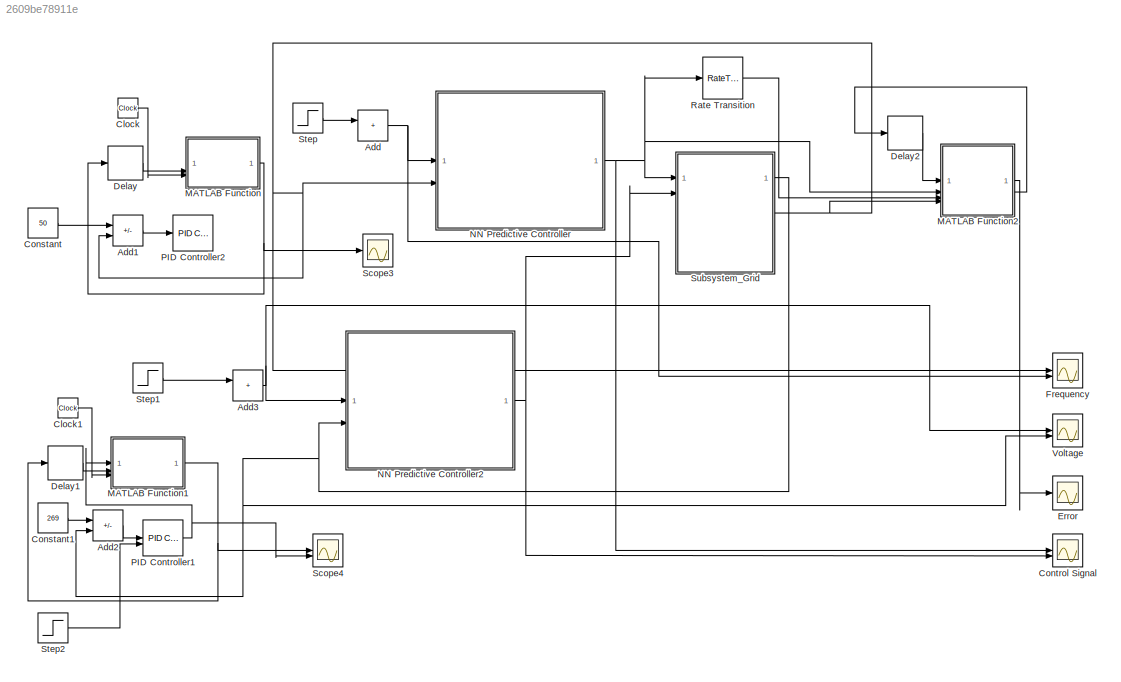
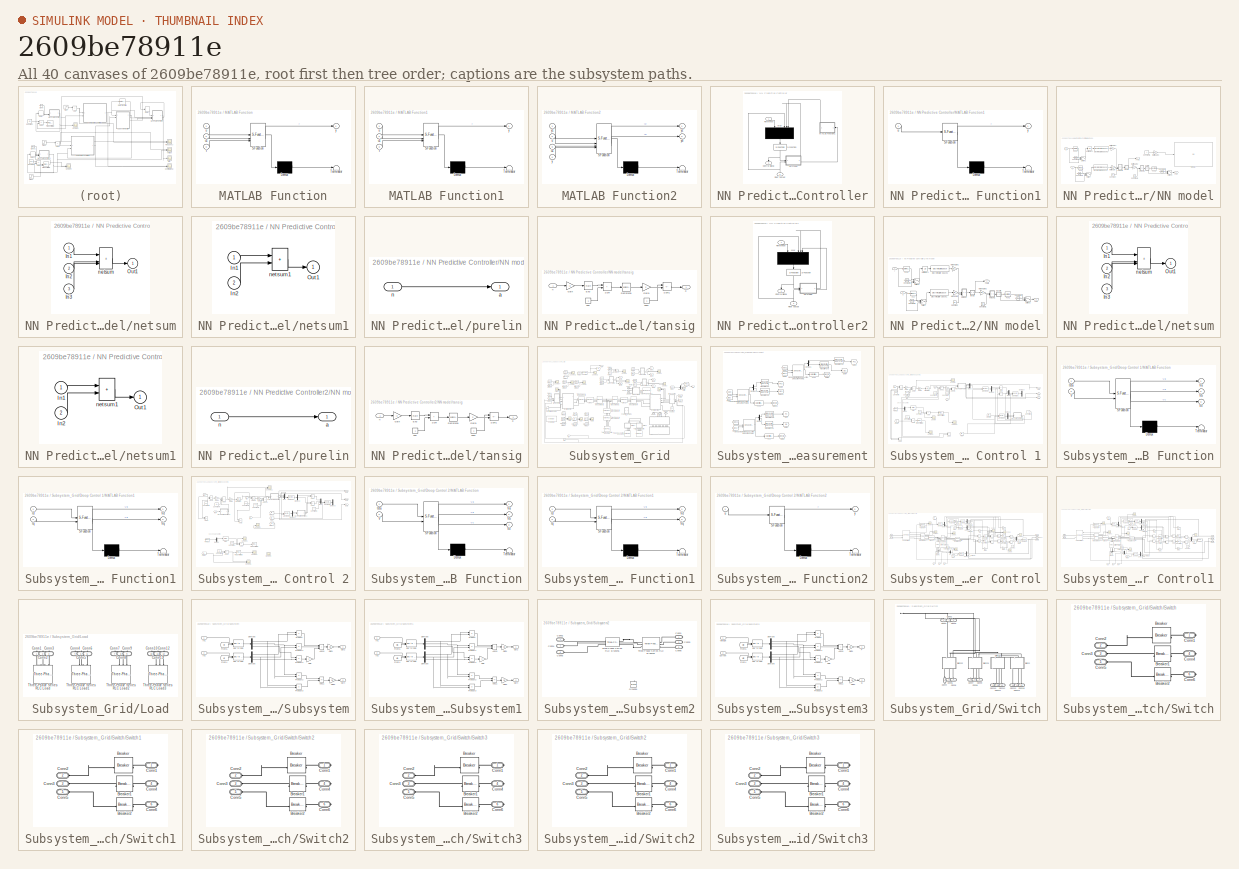
[diagram: thumbnail index - all 40 canvases of the model, root first then tree order]
MODEL slx_2609be78911e
KIND model
CONFIG AbsTol = auto
CONFIG EnableMultiTasking = on
CONFIG FixedStep = auto
CONFIG MaxStep = auto
CONFIG MinStep = auto
CONFIG RelTol = 1e-3
CONFIG SampleTimeConstraint = Unconstrained
CONFIG SolverName = VariableStepAuto
CONFIG StartTime = 0.0
CONFIG StopTime = 5
BLOCK [Sum] Add
  IconShape = rectangular
BLOCK [Sum] Add1
  IconShape = rectangular
  Inputs = +-
BLOCK [Sum] Add2
  IconShape = rectangular
  Inputs = +-
BLOCK [Sum] Add3
  IconShape = rectangular
BLOCK [Clock] Clock
BLOCK [Clock] Clock1
BLOCK [Constant] Constant
  Value = 50
BLOCK [Constant] Constant1
  SampleTime = 0.0001
  Value = 269
BLOCK [Scope] Control Signal
  Floating = off
  NumInputPorts = 2
  ScopeSpecificationString = Simulink.scopes.TimeScopeBlockCfg('CurrentConfiguration', extmgr.ConfigurationSet(extmgr.Configuration('Core','General UI',true),extmgr.Configuration('Core','Source UI',true),extmgr.Configuration('Sources','WiredSimulink',true,'DataLoggingVariableName','ScopeData1'),extmgr.Configuration('Visuals','Time Domain',true,'SerializedDisplays',{struct('MinYLimReal','-1.25','MaxYLimReal','1.25','YLabelReal...<+2126ch>
BLOCK [Delay] Delay
  DelayLength = 1
  InitialCondition = 0
  InputPortMap = u0
  SampleTime = 0.0001
BLOCK [Delay] Delay1
  DelayLength = 1
  InitialCondition = 0
  InputPortMap = u0
  SampleTime = 0.0001
BLOCK [Delay] Delay2
  DelayLength = 1
  InputPortMap = u0
BLOCK [Scope] Error
  Floating = off
  NumInputPorts = 1
  ScopeSpecificationString = Simulink.scopes.TimeScopeBlockCfg('CurrentConfiguration', extmgr.ConfigurationSet(extmgr.Configuration('Core','General UI',true),extmgr.Configuration('Core','Source UI',true),extmgr.Configuration('Sources','WiredSimulink',true,'DataLoggingVariableName','ScopeData1'),extmgr.Configuration('Visuals','Time Domain',true,'SerializedDisplays',{struct('MinYLimReal','-0.06202','MaxYLimReal','0.55817','YLab...<+1453ch>
BLOCK [Scope] Frequency 
  Floating = off
  NumInputPorts = 2
  ScopeSpecificationString = Simulink.scopes.TimeScopeBlockCfg('CurrentConfiguration', extmgr.ConfigurationSet(extmgr.Configuration('Core','General UI',true),extmgr.Configuration('Core','Source UI',true),extmgr.Configuration('Sources','WiredSimulink',true,'DataLoggingVariableName','ScopeData1'),extmgr.Configuration('Visuals','Time Domain',true,'SerializedDisplays',{struct('MinYLimReal','48.33752','MaxYLimReal','50.94901','YLa...<+2148ch>
BLOCK [SubSystem] MATLAB Function
  ErrorFcn = Stateflow.Translate.translate
  PermitHierarchicalResolution = ExplicitOnly
  SFBlockType = MATLAB Function
  TreatAsAtomicUnit = on
BLOCK [Demux] MATLAB Function/ Demux 
  Outputs = 1
BLOCK [S-Function] MATLAB Function/ SFunction 
  EnableBusSupport = on
  FunctionName = sf_sfun
  PortCounts = [3 2]
  SFcnIsStateOwnerBlock = off
  SFunctionDeploymentMode = off
  Tag = Stateflow S-Function 5
BLOCK [Terminator] MATLAB Function/ Terminator 
BLOCK [Inport] MATLAB Function/t
  Port = 3
BLOCK [Inport] MATLAB Function/u
BLOCK [Inport] MATLAB Function/u1
  Port = 2
BLOCK [Outport] MATLAB Function/y
BLOCK [SubSystem] MATLAB Function1
  ErrorFcn = Stateflow.Translate.translate
  PermitHierarchicalResolution = ExplicitOnly
  SFBlockType = MATLAB Function
  TreatAsAtomicUnit = on
BLOCK [Demux] MATLAB Function1/ Demux 
  Outputs = 1
BLOCK [S-Function] MATLAB Function1/ SFunction 
  EnableBusSupport = on
  FunctionName = sf_sfun
  PortCounts = [3 2]
  SFcnIsStateOwnerBlock = off
  SFunctionDeploymentMode = off
  Tag = Stateflow S-Function 8
BLOCK [Terminator] MATLAB Function1/ Terminator 
BLOCK [Inport] MATLAB Function1/t
  Port = 3
BLOCK [Inport] MATLAB Function1/u
BLOCK [Inport] MATLAB Function1/u1
  Port = 2
BLOCK [Outport] MATLAB Function1/y
BLOCK [SubSystem] MATLAB Function2
  ErrorFcn = Stateflow.Translate.translate
  PermitHierarchicalResolution = ExplicitOnly
  SFBlockType = MATLAB Function
  TreatAsAtomicUnit = on
BLOCK [Demux] MATLAB Function2/ Demux 
  Outputs = 1
BLOCK [S-Function] MATLAB Function2/ SFunction 
  EnableBusSupport = on
  FunctionName = sf_sfun
  PortCounts = [4 3]
  SFcnIsStateOwnerBlock = off
  SFunctionDeploymentMode = off
  Tag = Stateflow S-Function 9
BLOCK [Terminator] MATLAB Function2/ Terminator 
BLOCK [Inport] MATLAB Function2/u
  Port = 2
BLOCK [Inport] MATLAB Function2/u1
  Port = 3
BLOCK [Inport] MATLAB Function2/y
  Port = 4
BLOCK [Inport] MATLAB Function2/y1
BLOCK [Outport] MATLAB Function2/y2
BLOCK [Outport] MATLAB Function2/yd
  Port = 2
BLOCK [SubSystem] NN Predictive Controller
  AncestorBlock = neural/Control Systems/NN Predictive Controller
  LibrarySourceBlock = neural/Control Systems/NN Predictive Controller
  NameLocation = top
  OpenFcn = nncontrolutil('nnpredict','',gcbh,gcb);
BLOCK [Outport] NN Predictive Controller/Control Signal
  NameLocation = left
BLOCK [SubSystem] NN Predictive Controller/MATLAB Function1
  ErrorFcn = Stateflow.Translate.translate
  PermitHierarchicalResolution = ExplicitOnly
  SFBlockType = MATLAB Function
  TreatAsAtomicUnit = on
BLOCK [Demux] NN Predictive Controller/MATLAB Function1/ Demux 
  Outputs = 1
BLOCK [S-Function] NN Predictive Controller/MATLAB Function1/ SFunction 
  EnableBusSupport = on
  FunctionName = sf_sfun
  PortCounts = [1 2]
  SFcnIsStateOwnerBlock = off
  SFunctionDeploymentMode = off
  Tag = Stateflow S-Function 7
BLOCK [Terminator] NN Predictive Controller/MATLAB Function1/ Terminator 
BLOCK [Inport] NN Predictive Controller/MATLAB Function1/u
BLOCK [Outport] NN Predictive Controller/MATLAB Function1/y
BLOCK [Mux] NN Predictive Controller/Mux
  DisplayOption = signals
  NameLocation = left
BLOCK [SubSystem] NN Predictive Controller/NN model
BLOCK [Constant] NN Predictive Controller/NN model/Constant
  Value = B1
BLOCK [Constant] NN Predictive Controller/NN model/Constant1
  Value = B2
BLOCK [Constant] NN Predictive Controller/NN model/Constant2
  Value = Normalize
BLOCK [Constant] NN Predictive Controller/NN model/Constant3
  Value = Normalize
BLOCK [Constant] NN Predictive Controller/NN model/Constant4
  Value = Normalize
BLOCK [Constant] NN Predictive Controller/NN model/Constant5
BLOCK [DiscreteStateSpace] NN Predictive Controller/NN model/Discrete State-Space1
  A = [0 zeros(1,Ni-2);eye(Ni-2,Ni-1)]
  B = [zeros(double(Ni==1));eye(Ni-1,1)]
  C = [0 zeros(1,Ni-2);eye(Ni-1,Ni-1)]
  D = eye(Ni,1)
  SampleTime = Ts
BLOCK [DiscreteStateSpace] NN Predictive Controller/NN model/Discrete State-Space2
  A = [0 zeros(1,Nj-2);eye(Nj-2,Nj-1)]
  B = [zeros(double(Nj==1));eye(Nj-1,1)]
  C = [0 zeros(1,Nj-2);eye(Nj-1,Nj-1)]
  D = eye(Nj,1)
  SampleTime = Ts
BLOCK [Display] NN Predictive Controller/NN model/Display
  Decimation = 1
BLOCK [Fcn] NN Predictive Controller/NN model/Fcn
  Expr = (u(1)-minp)*2/(maxp-minp) - 1
BLOCK [Fcn] NN Predictive Controller/NN model/Fcn1
  Expr = (u(1)-mint)*2/(maxt-mint) - 1
BLOCK [Fcn] NN Predictive Controller/NN model/Fcn2
  Expr = (maxt-mint)*(u(1)+1)/2 + mint
BLOCK [Gain] NN Predictive Controller/NN model/Matrix Gain
  Gain = IW
  Multiplication = Matrix(K*u)
  OutDataTypeStr = Inherit: Same as input
  ParamDataTypeStr = Inherit: Same as input
  SaturateOnIntegerOverflow = on
BLOCK [Gain] NN Predictive Controller/NN model/Matrix Gain1
  Gain = LW1_2
  Multiplication = Matrix(K*u)
  OutDataTypeStr = Inherit: Same as input
  ParamDataTypeStr = Inherit: Same as input
  SaturateOnIntegerOverflow = on
BLOCK [Gain] NN Predictive Controller/NN model/Matrix Gain2
  Gain = LW2_1
  Multiplication = Matrix(K*u)
  OutDataTypeStr = Inherit: Same as input
  ParamDataTypeStr = Inherit: Same as input
  SaturateOnIntegerOverflow = on
BLOCK [Gain] NN Predictive Controller/NN model/Matrix Gain3
  Gain = LW2_1
  OutDataTypeStr = Inherit: Same as input
  ParamDataTypeStr = Inherit: Same as input
  SaturateOnIntegerOverflow = on
BLOCK [Switch] NN Predictive Controller/NN model/Switch
  Threshold = 0.5
BLOCK [Switch] NN Predictive Controller/NN model/Switch1
  Threshold = 0.5
BLOCK [Switch] NN Predictive Controller/NN model/Switch2
  Threshold = 0.5
BLOCK [UnitDelay] NN Predictive Controller/NN model/Unit Delay1
  HasFrameUpgradeWarning = on
  SampleTime = Ts
BLOCK [SubSystem] NN Predictive Controller/NN model/netsum
BLOCK [Inport] NN Predictive Controller/NN model/netsum/In1
BLOCK [Inport] NN Predictive Controller/NN model/netsum/In2
  Port = 2
BLOCK [Inport] NN Predictive Controller/NN model/netsum/In3
  Port = 3
BLOCK [Outport] NN Predictive Controller/NN model/netsum/Out1
BLOCK [Sum] NN Predictive Controller/NN model/netsum/netsum
  IconShape = rectangular
  InputSameDT = on
  Inputs = 3
  OutDataTypeStr = Inherit: Same as first input
  SaturateOnIntegerOverflow = on
BLOCK [SubSystem] NN Predictive Controller/NN model/netsum1
BLOCK [Inport] NN Predictive Controller/NN model/netsum1/In1
BLOCK [Inport] NN Predictive Controller/NN model/netsum1/In2
  Port = 2
BLOCK [Outport] NN Predictive Controller/NN model/netsum1/Out1
BLOCK [Sum] NN Predictive Controller/NN model/netsum1/netsum1
  IconShape = rectangular
  InputSameDT = on
  Inputs = 2
  OutDataTypeStr = Inherit: Same as first input
  SaturateOnIntegerOverflow = on
BLOCK [SubSystem] NN Predictive Controller/NN model/purelin
BLOCK [Outport] NN Predictive Controller/NN model/purelin/a
BLOCK [Inport] NN Predictive Controller/NN model/purelin/n
BLOCK [SubSystem] NN Predictive Controller/NN model/tansig
BLOCK [Math] NN Predictive Controller/NN model/tansig/Exp
  SignedPower = on
BLOCK [Gain] NN Predictive Controller/NN model/tansig/Gain
  Gain = -2
  OutDataTypeStr = Inherit: Same as input
  ParamDataTypeStr = Inherit: Same as input
  SaturateOnIntegerOverflow = on
BLOCK [Gain] NN Predictive Controller/NN model/tansig/Gain1
  Gain = 2
  OutDataTypeStr = Inherit: Same as input
  ParamDataTypeStr = Inherit: Same as input
  SaturateOnIntegerOverflow = on
BLOCK [Math] NN Predictive Controller/NN model/tansig/Reciprocal
  Operator = reciprocal
  SignedPower = on
BLOCK [Sum] NN Predictive Controller/NN model/tansig/Sum
  IconShape = rectangular
  InputSameDT = on
  OutDataTypeStr = Inherit: Same as first input
  SaturateOnIntegerOverflow = on
BLOCK [Sum] NN Predictive Controller/NN model/tansig/Sum1
  IconShape = rectangular
  InputSameDT = on
  Inputs = +-
  OutDataTypeStr = Inherit: Same as first input
  SaturateOnIntegerOverflow = on
BLOCK [Outport] NN Predictive Controller/NN model/tansig/a
BLOCK [Inport] NN Predictive Controller/NN model/tansig/n
BLOCK [Constant] NN Predictive Controller/NN model/tansig/one
BLOCK [Constant] NN Predictive Controller/NN model/tansig/one1
BLOCK [Inport] NN Predictive Controller/NN model/u
BLOCK [Inport] NN Predictive Controller/NN model/y
  Port = 2
BLOCK [Outport] NN Predictive Controller/NN model/yhat
BLOCK [Outport] NN Predictive Controller/NN model/yhat1
  Port = 2
BLOCK [Inport] NN Predictive Controller/Plant output
  NameLocation = right
  Port = 2
BLOCK [Inport] NN Predictive Controller/Reference
  NameLocation = left
BLOCK [S-Function] NN Predictive Controller/S-Function
  EnableBusSupport = off
  FunctionName = predopt
  NameLocation = left
  Parameters = N2,Ts,Nu,maxiter,csrchfun,rho,alpha,S1,IW,LW1_2,LW2_1,B1,B2,Ni,Nj,min_i,max_i,minp,maxp,mint,maxt,Normalize
  SFcnIsStateOwnerBlock = off
  SFunctionDeploymentMode = off
BLOCK [SubSystem] NN Predictive Controller2
  AncestorBlock = neural/Control Systems/NN Predictive Controller
  LibrarySourceBlock = neural/Control Systems/NN Predictive Controller
  NameLocation = top
  OpenFcn = nncontrolutil('nnpredict','',gcbh,gcb);
BLOCK [Outport] NN Predictive Controller2/Control Signal
  NameLocation = left
BLOCK [Mux] NN Predictive Controller2/Mux
  DisplayOption = signals
  NameLocation = left
BLOCK [SubSystem] NN Predictive Controller2/NN model
BLOCK [Constant] NN Predictive Controller2/NN model/Constant
  Value = B1
BLOCK [Constant] NN Predictive Controller2/NN model/Constant1
  Value = B2
BLOCK [Constant] NN Predictive Controller2/NN model/Constant2
  Value = Normalize
BLOCK [Constant] NN Predictive Controller2/NN model/Constant3
  Value = Normalize
BLOCK [Constant] NN Predictive Controller2/NN model/Constant4
  Value = Normalize
BLOCK [DiscreteStateSpace] NN Predictive Controller2/NN model/Discrete State-Space1
  A = [0 zeros(1,Ni-2);eye(Ni-2,Ni-1)]
  B = [zeros(double(Ni==1));eye(Ni-1,1)]
  C = [0 zeros(1,Ni-2);eye(Ni-1,Ni-1)]
  D = eye(Ni,1)
  SampleTime = Ts
BLOCK [DiscreteStateSpace] NN Predictive Controller2/NN model/Discrete State-Space2
  A = [0 zeros(1,Nj-2);eye(Nj-2,Nj-1)]
  B = [zeros(double(Nj==1));eye(Nj-1,1)]
  C = [0 zeros(1,Nj-2);eye(Nj-1,Nj-1)]
  D = eye(Nj,1)
  SampleTime = Ts
BLOCK [Fcn] NN Predictive Controller2/NN model/Fcn
  Expr = (u(1)-minp)*2/(maxp-minp) - 1
BLOCK [Fcn] NN Predictive Controller2/NN model/Fcn1
  Expr = (u(1)-mint)*2/(maxt-mint) - 1
BLOCK [Fcn] NN Predictive Controller2/NN model/Fcn2
  Expr = (maxt-mint)*(u(1)+1)/2 + mint
BLOCK [Gain] NN Predictive Controller2/NN model/Matrix Gain
  Gain = IW
  Multiplication = Matrix(K*u)
  OutDataTypeStr = Inherit: Same as input
  ParamDataTypeStr = Inherit: Same as input
  SaturateOnIntegerOverflow = on
BLOCK [Gain] NN Predictive Controller2/NN model/Matrix Gain1
  Gain = LW1_2
  Multiplication = Matrix(K*u)
  OutDataTypeStr = Inherit: Same as input
  ParamDataTypeStr = Inherit: Same as input
  SaturateOnIntegerOverflow = on
BLOCK [Gain] NN Predictive Controller2/NN model/Matrix Gain2
  Gain = LW2_1
  Multiplication = Matrix(K*u)
  OutDataTypeStr = Inherit: Same as input
  ParamDataTypeStr = Inherit: Same as input
  SaturateOnIntegerOverflow = on
BLOCK [Switch] NN Predictive Controller2/NN model/Switch
  Threshold = 0.5
BLOCK [Switch] NN Predictive Controller2/NN model/Switch1
  Threshold = 0.5
BLOCK [Switch] NN Predictive Controller2/NN model/Switch2
  Threshold = 0.5
BLOCK [UnitDelay] NN Predictive Controller2/NN model/Unit Delay1
  HasFrameUpgradeWarning = on
  SampleTime = Ts
BLOCK [SubSystem] NN Predictive Controller2/NN model/netsum
BLOCK [Inport] NN Predictive Controller2/NN model/netsum/In1
BLOCK [Inport] NN Predictive Controller2/NN model/netsum/In2
  Port = 2
BLOCK [Inport] NN Predictive Controller2/NN model/netsum/In3
  Port = 3
BLOCK [Outport] NN Predictive Controller2/NN model/netsum/Out1
BLOCK [Sum] NN Predictive Controller2/NN model/netsum/netsum
  IconShape = rectangular
  InputSameDT = on
  Inputs = 3
  OutDataTypeStr = Inherit: Same as first input
  SaturateOnIntegerOverflow = on
BLOCK [SubSystem] NN Predictive Controller2/NN model/netsum1
BLOCK [Inport] NN Predictive Controller2/NN model/netsum1/In1
BLOCK [Inport] NN Predictive Controller2/NN model/netsum1/In2
  Port = 2
BLOCK [Outport] NN Predictive Controller2/NN model/netsum1/Out1
BLOCK [Sum] NN Predictive Controller2/NN model/netsum1/netsum1
  IconShape = rectangular
  InputSameDT = on
  Inputs = 2
  OutDataTypeStr = Inherit: Same as first input
  SaturateOnIntegerOverflow = on
BLOCK [SubSystem] NN Predictive Controller2/NN model/purelin
BLOCK [Outport] NN Predictive Controller2/NN model/purelin/a
BLOCK [Inport] NN Predictive Controller2/NN model/purelin/n
BLOCK [SubSystem] NN Predictive Controller2/NN model/tansig
BLOCK [Math] NN Predictive Controller2/NN model/tansig/Exp
  SignedPower = on
BLOCK [Gain] NN Predictive Controller2/NN model/tansig/Gain
  Gain = -2
  OutDataTypeStr = Inherit: Same as input
  ParamDataTypeStr = Inherit: Same as input
  SaturateOnIntegerOverflow = on
BLOCK [Gain] NN Predictive Controller2/NN model/tansig/Gain1
  Gain = 2
  OutDataTypeStr = Inherit: Same as input
  ParamDataTypeStr = Inherit: Same as input
  SaturateOnIntegerOverflow = on
BLOCK [Math] NN Predictive Controller2/NN model/tansig/Reciprocal
  Operator = reciprocal
  SignedPower = on
BLOCK [Sum] NN Predictive Controller2/NN model/tansig/Sum
  IconShape = rectangular
  InputSameDT = on
  OutDataTypeStr = Inherit: Same as first input
  SaturateOnIntegerOverflow = on
BLOCK [Sum] NN Predictive Controller2/NN model/tansig/Sum1
  IconShape = rectangular
  InputSameDT = on
  Inputs = +-
  OutDataTypeStr = Inherit: Same as first input
  SaturateOnIntegerOverflow = on
BLOCK [Outport] NN Predictive Controller2/NN model/tansig/a
BLOCK [Inport] NN Predictive Controller2/NN model/tansig/n
BLOCK [Constant] NN Predictive Controller2/NN model/tansig/one
BLOCK [Constant] NN Predictive Controller2/NN model/tansig/one1
BLOCK [Inport] NN Predictive Controller2/NN model/u
BLOCK [Inport] NN Predictive Controller2/NN model/y
  Port = 2
BLOCK [Outport] NN Predictive Controller2/NN model/yhat
BLOCK [Outport] NN Predictive Controller2/NN model/yhat1
  Port = 2
BLOCK [Inport] NN Predictive Controller2/Plant output
  NameLocation = right
  Port = 2
BLOCK [Inport] NN Predictive Controller2/Reference
  NameLocation = left
BLOCK [S-Function] NN Predictive Controller2/S-Function
  EnableBusSupport = off
  FunctionName = predopt1
  NameLocation = left
  Parameters = N2,Ts,Nu,maxiter,csrchfun,rho,alpha,S1,IW,LW1_2,LW2_1,B1,B2,Ni,Nj,min_i,max_i,minp,maxp,mint,maxt,Normalize
  SFcnIsStateOwnerBlock = off
  SFunctionDeploymentMode = off
BLOCK [Reference] PID Controller1  REF=slpidlib/PID Controller
  SourceBlock = slpidlib/PID Controller
  SourceType = PID 1dof
BLOCK [Reference] PID Controller2  REF=slpidlib/PID Controller
  SourceBlock = slpidlib/PID Controller
  SourceType = PID 1dof
BLOCK [RateTransition] Rate Transition
  InitialCondition = 1
BLOCK [Scope] Scope3
  Floating = off
  NumInputPorts = 2
  ScopeSpecificationString = Simulink.scopes.TimeScopeBlockCfg('CurrentConfiguration', extmgr.ConfigurationSet(extmgr.Configuration('Core','General UI',true),extmgr.Configuration('Core','Source UI',true),extmgr.Configuration('Sources','WiredSimulink',true,'DataLoggingVariableName','ScopeData1'),extmgr.Configuration('Visuals','Time Domain',true,'SerializedDisplays',{struct('MinYLimReal','-1.00000','MaxYLimReal','1.00000','YLab...<+2129ch>
BLOCK [Scope] Scope4
  Floating = off
  NumInputPorts = 2
  ScopeSpecificationString = Simulink.scopes.TimeScopeBlockCfg('CurrentConfiguration', extmgr.ConfigurationSet(extmgr.Configuration('Core','General UI',true),extmgr.Configuration('Core','Source UI',true),extmgr.Configuration('Sources','WiredSimulink',true,'DataLoggingVariableName','ScopeData1'),extmgr.Configuration('Visuals','Time Domain',true,'SerializedDisplays',{struct('MinYLimReal','-7.92514','MaxYLimReal','0.88057','YLab...<+2107ch>
BLOCK [Step] Step
  After = 50
  SampleTime = 0
  Time = 0
BLOCK [Step] Step1
  After = 269
  SampleTime = 0
  Time = 0
BLOCK [Step] Step2
  SampleTime = 0.0001
  Time = 2
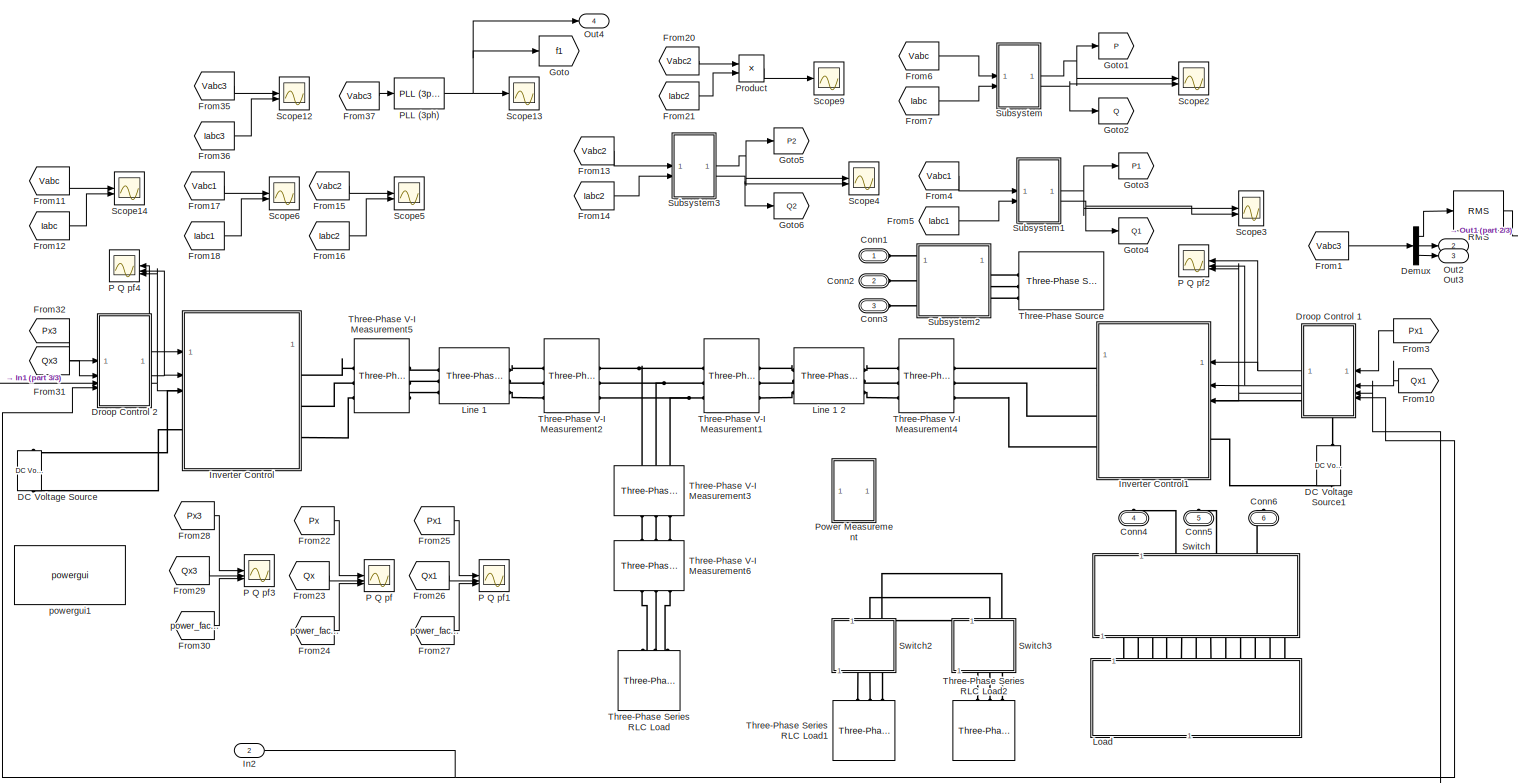
[diagram: Subsystem_Grid - part 1/3, most of the canvas]
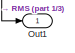
[diagram: Subsystem_Grid - part 2/3, top right region]
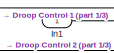
[diagram: Subsystem_Grid - part 3/3, bottom left region]
BLOCK [SubSystem] Subsystem_Grid
BLOCK [SubSystem] Subsystem_Grid/ Power Measurement
BLOCK [Reference] Subsystem_Grid/ Power Measurement/3-phase Instantaneous Active & Reactive Power  REF=powerlib_extras/Measurements/3-phase 
Instantaneous 
Active & Reactive Power
  SourceBlock = powerlib_extras/Measurements/3-phase \nInstantaneous \nActive & Reactive Power
  SourceType = 3-phase instantaneous active and reactive power
BLOCK [Reference] Subsystem_Grid/ Power Measurement/3-phase Instantaneous Active & Reactive Power1  REF=powerlib_extras/Measurements/3-phase 
Instantaneous 
Active & Reactive Power
  SourceBlock = powerlib_extras/Measurements/3-phase \nInstantaneous \nActive & Reactive Power
  SourceType = 3-phase instantaneous active and reactive power
BLOCK [Reference] Subsystem_Grid/ Power Measurement/3-phase Instantaneous Active & Reactive Power3  REF=powerlib_extras/Measurements/3-phase 
Instantaneous 
Active & Reactive Power
  SourceBlock = powerlib_extras/Measurements/3-phase \nInstantaneous \nActive & Reactive Power
  SourceType = 3-phase instantaneous active and reactive power
BLOCK [Demux] Subsystem_Grid/ Power Measurement/Demux
  Outputs = 2
BLOCK [Demux] Subsystem_Grid/ Power Measurement/Demux1
  Outputs = 2
BLOCK [Demux] Subsystem_Grid/ Power Measurement/Demux3
  Outputs = 2
BLOCK [Fcn] Subsystem_Grid/ Power Measurement/Fcn
  Expr = u(1)/sqrt((u(1))^2+(u(2))^2)
BLOCK [Fcn] Subsystem_Grid/ Power Measurement/Fcn1
  Expr = u(1)/sqrt((u(1))^2+(u(2))^2)
BLOCK [Fcn] Subsystem_Grid/ Power Measurement/Fcn3
  Expr = u(1)/sqrt((u(1))^2+(u(2))^2)
BLOCK [From] Subsystem_Grid/ Power Measurement/From
  GotoTag = Vabc2
  TagVisibility = global
BLOCK [From] Subsystem_Grid/ Power Measurement/From1
  GotoTag = Iabc2
  TagVisibility = global
BLOCK [From] Subsystem_Grid/ Power Measurement/From2
  GotoTag = Vabc1
  TagVisibility = global
BLOCK [From] Subsystem_Grid/ Power Measurement/From3
  GotoTag = Iabc1
  TagVisibility = global
BLOCK [From] Subsystem_Grid/ Power Measurement/From6
  GotoTag = Vabc
  TagVisibility = global
BLOCK [From] Subsystem_Grid/ Power Measurement/From7
  GotoTag = Iabc
  TagVisibility = global
BLOCK [Goto] Subsystem_Grid/ Power Measurement/Goto
  GotoTag = Px
  TagVisibility = global
BLOCK [Goto] Subsystem_Grid/ Power Measurement/Goto1
  GotoTag = Qx
  TagVisibility = global
BLOCK [Goto] Subsystem_Grid/ Power Measurement/Goto10
  GotoTag = Qx3
  TagVisibility = global
BLOCK [Goto] Subsystem_Grid/ Power Measurement/Goto11
  GotoTag = power_factorx3
  TagVisibility = global
BLOCK [Goto] Subsystem_Grid/ Power Measurement/Goto2
  GotoTag = power_factorx
  TagVisibility = global
BLOCK [Goto] Subsystem_Grid/ Power Measurement/Goto3
  GotoTag = Px1
  TagVisibility = global
BLOCK [Goto] Subsystem_Grid/ Power Measurement/Goto4
  GotoTag = Qx1
  TagVisibility = global
BLOCK [Goto] Subsystem_Grid/ Power Measurement/Goto5
  GotoTag = power_factorx1
  TagVisibility = global
BLOCK [Goto] Subsystem_Grid/ Power Measurement/Goto9
  GotoTag = Px3
  TagVisibility = global
BLOCK [TransferFcn] Subsystem_Grid/ Power Measurement/Transfer Fcn1
  Denominator = [1 55*2*pi]
  Numerator = [55*2*pi]
BLOCK [TransferFcn] Subsystem_Grid/ Power Measurement/Transfer Fcn2
  Denominator = [1 55*2*pi]
  Numerator = [55*2*pi]
BLOCK [TransferFcn] Subsystem_Grid/ Power Measurement/Transfer Fcn3
  Denominator = [1 55*2*pi]
  Numerator = [55*2*pi]
BLOCK [TransferFcn] Subsystem_Grid/ Power Measurement/Transfer Fcn4
  Denominator = [1 55*2*pi]
  Numerator = [55*2*pi]
BLOCK [TransferFcn] Subsystem_Grid/ Power Measurement/Transfer Fcn5
  Denominator = [1 55*2*pi]
  Numerator = [55*2*pi]
BLOCK [TransferFcn] Subsystem_Grid/ Power Measurement/Transfer Fcn6
  Denominator = [1 55*2*pi]
  Numerator = [55*2*pi]
BLOCK [PMIOPort] Subsystem_Grid/Conn1
  Side = Left
BLOCK [PMIOPort] Subsystem_Grid/Conn2
  Port = 2
  Side = Left
BLOCK [PMIOPort] Subsystem_Grid/Conn3
  Port = 3
  Side = Left
BLOCK [PMIOPort] Subsystem_Grid/Conn4
  NameLocation = right
  Port = 4
  Side = Right
BLOCK [PMIOPort] Subsystem_Grid/Conn5
  NameLocation = right
  Port = 5
  Side = Right
BLOCK [PMIOPort] Subsystem_Grid/Conn6
  NameLocation = right
  Port = 6
  Side = Right
BLOCK [Reference] Subsystem_Grid/DC Voltage Source  REF=spsDCVoltageSourceLib/DC Voltage Source
  LibrarySourceBlock = sps_lib/Sources/DC Voltage Source
  NameLocation = right
  SourceBlock = spsDCVoltageSourceLib/DC Voltage Source
  SourceType = DC Voltage Source
BLOCK [Reference] Subsystem_Grid/DC Voltage Source1  REF=spsDCVoltageSourceLib/DC Voltage Source
  LibrarySourceBlock = sps_lib/Sources/DC Voltage Source
  NameLocation = right
  SourceBlock = spsDCVoltageSourceLib/DC Voltage Source
  SourceType = DC Voltage Source
BLOCK [Demux] Subsystem_Grid/Demux
  Outputs = 3
BLOCK [SubSystem] Subsystem_Grid/Droop Control 1
BLOCK [Sum] Subsystem_Grid/Droop Control 1/Add
  IconShape = rectangular
  Inputs = +-
BLOCK [Sum] Subsystem_Grid/Droop Control 1/Add1
  IconShape = rectangular
  Inputs = +-
BLOCK [Sum] Subsystem_Grid/Droop Control 1/Add12
  IconShape = rectangular
  Inputs = +-
BLOCK [Sum] Subsystem_Grid/Droop Control 1/Add13
  IconShape = rectangular
  Inputs = +++
BLOCK [Sum] Subsystem_Grid/Droop Control 1/Add2
  IconShape = rectangular
  Inputs = +-
BLOCK [Sum] Subsystem_Grid/Droop Control 1/Add3
  IconShape = rectangular
  Inputs = +-
BLOCK [Sum] Subsystem_Grid/Droop Control 1/Add4
  IconShape = rectangular
  Inputs = +-
BLOCK [Sum] Subsystem_Grid/Droop Control 1/Add5
  IconShape = rectangular
  Inputs = +-
BLOCK [Sum] Subsystem_Grid/Droop Control 1/Add8
  IconShape = rectangular
  Inputs = +-
BLOCK [Sum] Subsystem_Grid/Droop Control 1/Add9
  IconShape = rectangular
  Inputs = +++
BLOCK [Constant] Subsystem_Grid/Droop Control 1/Constant
  Value = 269
BLOCK [Constant] Subsystem_Grid/Droop Control 1/Constant1
  Value = 0
BLOCK [Constant] Subsystem_Grid/Droop Control 1/Constant2
  Value = 1400
BLOCK [Constant] Subsystem_Grid/Droop Control 1/Constant3
  Value = 402
BLOCK [Constant] Subsystem_Grid/Droop Control 1/Constant4
  Value = 50
BLOCK [Constant] Subsystem_Grid/Droop Control 1/Constant6
  Value = 5500
BLOCK [Constant] Subsystem_Grid/Droop Control 1/Constant7
  Value = 50
BLOCK [Demux] Subsystem_Grid/Droop Control 1/Demux
  Outputs = 3
BLOCK [Demux] Subsystem_Grid/Droop Control 1/Demux1
  Outputs = 3
BLOCK [Demux] Subsystem_Grid/Droop Control 1/Demux2
  Outputs = 3
BLOCK [Demux] Subsystem_Grid/Droop Control 1/Demux3
  Outputs = 3
BLOCK [From] Subsystem_Grid/Droop Control 1/From
  GotoTag = wt
BLOCK [From] Subsystem_Grid/Droop Control 1/From1
  GotoTag = f1
  TagVisibility = global
BLOCK [From] Subsystem_Grid/Droop Control 1/From15
  GotoTag = Vabc3
  TagVisibility = global
BLOCK [From] Subsystem_Grid/Droop Control 1/From18
  GotoTag = It2
  TagVisibility = global
BLOCK [Gain] Subsystem_Grid/Droop Control 1/Gain4
  Gain = -4*10^(-4)
BLOCK [Gain] Subsystem_Grid/Droop Control 1/Gain5
  Gain = 2*pi
BLOCK [Gain] Subsystem_Grid/Droop Control 1/Gain6
  Gain = -8*10^(-3)
BLOCK [Inport] Subsystem_Grid/Droop Control 1/In1
BLOCK [Inport] Subsystem_Grid/Droop Control 1/In2
  Port = 2
BLOCK [Inport] Subsystem_Grid/Droop Control 1/In3
  Port = 3
BLOCK [Inport] Subsystem_Grid/Droop Control 1/In4
  Port = 4
BLOCK [Integrator] Subsystem_Grid/Droop Control 1/Integrator
BLOCK [SubSystem] Subsystem_Grid/Droop Control 1/MATLAB Function
  ErrorFcn = Stateflow.Translate.translate
  PermitHierarchicalResolution = ExplicitOnly
  SFBlockType = MATLAB Function
  TreatAsAtomicUnit = on
BLOCK [Demux] Subsystem_Grid/Droop Control 1/MATLAB Function/ Demux 
  Outputs = 1
BLOCK [S-Function] Subsystem_Grid/Droop Control 1/MATLAB Function/ SFunction 
  EnableBusSupport = on
  FunctionName = sf_sfun
  PortCounts = [2 4]
  SFcnIsStateOwnerBlock = off
  SFunctionDeploymentMode = off
  Tag = Stateflow S-Function 1
BLOCK [Terminator] Subsystem_Grid/Droop Control 1/MATLAB Function/ Terminator 
BLOCK [Inport] Subsystem_Grid/Droop Control 1/MATLAB Function/V
  Port = 2
BLOCK [Outport] Subsystem_Grid/Droop Control 1/MATLAB Function/Va
BLOCK [Outport] Subsystem_Grid/Droop Control 1/MATLAB Function/Vb
  Port = 2
BLOCK [Outport] Subsystem_Grid/Droop Control 1/MATLAB Function/Vc
  Port = 3
BLOCK [Inport] Subsystem_Grid/Droop Control 1/MATLAB Function/teta
BLOCK [SubSystem] Subsystem_Grid/Droop Control 1/MATLAB Function1
  ErrorFcn = Stateflow.Translate.translate
  PermitHierarchicalResolution = ExplicitOnly
  SFBlockType = MATLAB Function
  TreatAsAtomicUnit = on
BLOCK [Demux] Subsystem_Grid/Droop Control 1/MATLAB Function1/ Demux 
  Outputs = 1
BLOCK [S-Function] Subsystem_Grid/Droop Control 1/MATLAB Function1/ SFunction 
  EnableBusSupport = on
  FunctionName = sf_sfun
  PortCounts = [2 3]
  SFcnIsStateOwnerBlock = off
  SFunctionDeploymentMode = off
  Tag = Stateflow S-Function 2
BLOCK [Terminator] Subsystem_Grid/Droop Control 1/MATLAB Function1/ Terminator 
BLOCK [Inport] Subsystem_Grid/Droop Control 1/MATLAB Function1/Id
BLOCK [Inport] Subsystem_Grid/Droop Control 1/MATLAB Function1/Iq
  Port = 2
BLOCK [Outport] Subsystem_Grid/Droop Control 1/MATLAB Function1/Vd
BLOCK [Outport] Subsystem_Grid/Droop Control 1/MATLAB Function1/Vq
  Port = 2
BLOCK [Mux] Subsystem_Grid/Droop Control 1/Mux1
  DisplayOption = bar
  Inputs = 3
BLOCK [Mux] Subsystem_Grid/Droop Control 1/Mux2
  DisplayOption = bar
  Inputs = 3
BLOCK [Outport] Subsystem_Grid/Droop Control 1/Out4
BLOCK [Outport] Subsystem_Grid/Droop Control 1/Out5
  Port = 2
BLOCK [Outport] Subsystem_Grid/Droop Control 1/Out6
  Port = 3
BLOCK [Reference] Subsystem_Grid/Droop Control 1/PID Controller2  REF=slpidlib/PID Controller
  SourceBlock = slpidlib/PID Controller
  SourceType = PID 1dof
BLOCK [Reference] Subsystem_Grid/Droop Control 1/PID Controller3  REF=slpidlib/PID Controller
  SourceBlock = slpidlib/PID Controller
  SourceType = PID 1dof
BLOCK [Reference] Subsystem_Grid/Droop Control 1/RMS  REF=spsRMSLib/RMS
  LibrarySourceBlock = sps_lib/Sensors and Measurements/RMS
  SourceBlock = spsRMSLib/RMS
  SourceType = RMS
BLOCK [Scope] Subsystem_Grid/Droop Control 1/Scope
  Floating = off
  NumInputPorts = 1
  ScopeSpecificationString = Simulink.scopes.TimeScopeBlockCfg('CurrentConfiguration', extmgr.ConfigurationSet(extmgr.Configuration('Core','General UI',true),extmgr.Configuration('Core','Source UI',true),extmgr.Configuration('Sources','WiredSimulink',true,'DataLoggingVariableName','ScopeData2','DataLoggingLimitDataPoints',true,'DataLoggingSaveFormat','Array','DataLoggingDecimation','1','DataLoggingDecimateData',true),extmgr.C...<+1557ch>
BLOCK [Scope] Subsystem_Grid/Droop Control 1/Scope3
  Floating = off
  NumInputPorts = 1
  ScopeSpecificationString = Simulink.scopes.TimeScopeBlockCfg('CurrentConfiguration', extmgr.ConfigurationSet(extmgr.Configuration('Core','General UI',true),extmgr.Configuration('Core','Source UI',true),extmgr.Configuration('Sources','WiredSimulink',true,'DataLoggingVariableName','ScopeData3'),extmgr.Configuration('Visuals','Time Domain',true,'SerializedDisplays',{struct('MinYLimReal','-86.02824','MaxYLimReal','70.57418','YL...<+1396ch>
BLOCK [Scope] Subsystem_Grid/Droop Control 1/Scope4
  Floating = off
  NumInputPorts = 1
  ScopeSpecificationString = Simulink.scopes.TimeScopeBlockCfg('CurrentConfiguration', extmgr.ConfigurationSet(extmgr.Configuration('Core','General UI',true),extmgr.Configuration('Core','Source UI',true),extmgr.Configuration('Sources','WiredSimulink',true,'DataLoggingVariableName','ScopeData3'),extmgr.Configuration('Visuals','Time Domain',true,'SerializedDisplays',{struct('MinYLimReal','49.41101','MaxYLimReal','51.74122','YLa...<+1455ch>
BLOCK [Scope] Subsystem_Grid/Droop Control 1/Scope5
  Floating = off
  NumInputPorts = 1
  ScopeSpecificationString = Simulink.scopes.TimeScopeBlockCfg('CurrentConfiguration', extmgr.ConfigurationSet(extmgr.Configuration('Core','General UI',true),extmgr.Configuration('Core','Source UI',true),extmgr.Configuration('Sources','WiredSimulink',true,'DataLoggingVariableName','ScopeData5'),extmgr.Configuration('Visuals','Time Domain',true,'SerializedDisplays',{struct('MinYLimReal','48.44666','MaxYLimReal','52.61704','YLa...<+1444ch>
BLOCK [Reference] Subsystem_Grid/Droop Control 1/abc to dq0  REF=spsabctodq0Lib/abc to dq0
  LibrarySourceBlock = sps_lib/Control/abc to dq0
  SourceBlock = spsabctodq0Lib/abc to dq0
  SourceType = abc to dq0 Transformation
BLOCK [Reference] Subsystem_Grid/Droop Control 1/abc to dq1  REF=spsabctodq0Lib/abc to dq0
  LibrarySourceBlock = sps_lib/Control/abc to dq0
  SourceBlock = spsabctodq0Lib/abc to dq0
  SourceType = abc to dq0 Transformation
BLOCK [Reference] Subsystem_Grid/Droop Control 1/dq0 to abc  REF=spsdq0toabcLib/dq0 to abc
  LibrarySourceBlock = sps_lib/Control/dq0 to abc
  SourceBlock = spsdq0toabcLib/dq0 to abc
  SourceType = dq0 to abc Transformation
BLOCK [SubSystem] Subsystem_Grid/Droop Control 2
BLOCK [Sum] Subsystem_Grid/Droop Control 2/Add
  IconShape = rectangular
  Inputs = +-
BLOCK [Sum] Subsystem_Grid/Droop Control 2/Add1
  IconShape = rectangular
  Inputs = +-
BLOCK [Sum] Subsystem_Grid/Droop Control 2/Add12
  IconShape = rectangular
  Inputs = +-
BLOCK [Sum] Subsystem_Grid/Droop Control 2/Add13
  IconShape = rectangular
  Inputs = +++
BLOCK [Sum] Subsystem_Grid/Droop Control 2/Add2
  IconShape = rectangular
  Inputs = +-
BLOCK [Sum] Subsystem_Grid/Droop Control 2/Add3
  IconShape = rectangular
  Inputs = +-
BLOCK [Sum] Subsystem_Grid/Droop Control 2/Add4
  IconShape = rectangular
  Inputs = +-
BLOCK [Sum] Subsystem_Grid/Droop Control 2/Add5
  IconShape = rectangular
  Inputs = +-
BLOCK [Sum] Subsystem_Grid/Droop Control 2/Add8
  IconShape = rectangular
  Inputs = +-
BLOCK [Sum] Subsystem_Grid/Droop Control 2/Add9
  IconShape = rectangular
  Inputs = +++
BLOCK [Constant] Subsystem_Grid/Droop Control 2/Constant
  Value = 269
BLOCK [Constant] Subsystem_Grid/Droop Control 2/Constant1
  Value = 0
BLOCK [Constant] Subsystem_Grid/Droop Control 2/Constant2
  Value = 1100
BLOCK [Constant] Subsystem_Grid/Droop Control 2/Constant3
  Value = 403
BLOCK [Constant] Subsystem_Grid/Droop Control 2/Constant4
  Value = 50
BLOCK [Constant] Subsystem_Grid/Droop Control 2/Constant6
  Value = 3000
BLOCK [Constant] Subsystem_Grid/Droop Control 2/Constant7
  Value = 50
BLOCK [Demux] Subsystem_Grid/Droop Control 2/Demux
  Outputs = 3
BLOCK [Demux] Subsystem_Grid/Droop Control 2/Demux1
  Outputs = 3
BLOCK [Demux] Subsystem_Grid/Droop Control 2/Demux2
  Outputs = 3
BLOCK [Demux] Subsystem_Grid/Droop Control 2/Demux3
  Outputs = 3
BLOCK [From] Subsystem_Grid/Droop Control 2/From
  GotoTag = wt
BLOCK [From] Subsystem_Grid/Droop Control 2/From1
  GotoTag = f1
  TagVisibility = global
BLOCK [From] Subsystem_Grid/Droop Control 2/From15
  GotoTag = Vabc3
  TagVisibility = global
BLOCK [From] Subsystem_Grid/Droop Control 2/From17
  GotoTag = Vt1
  TagVisibility = global
BLOCK [From] Subsystem_Grid/Droop Control 2/From18
  GotoTag = It1
  TagVisibility = global
BLOCK [Gain] Subsystem_Grid/Droop Control 2/Gain4
  Gain = -4*10^(-4)
BLOCK [Gain] Subsystem_Grid/Droop Control 2/Gain5
  Gain = 2*pi
BLOCK [Gain] Subsystem_Grid/Droop Control 2/Gain6
  Gain = -9*10^(-3)
BLOCK [Inport] Subsystem_Grid/Droop Control 2/In1
BLOCK [Inport] Subsystem_Grid/Droop Control 2/In2
  Port = 2
BLOCK [Inport] Subsystem_Grid/Droop Control 2/In3
  Port = 3
BLOCK [Inport] Subsystem_Grid/Droop Control 2/In4
  Port = 4
BLOCK [Integrator] Subsystem_Grid/Droop Control 2/Integrator
BLOCK [SubSystem] Subsystem_Grid/Droop Control 2/MATLAB Function
  ErrorFcn = Stateflow.Translate.translate
  PermitHierarchicalResolution = ExplicitOnly
  SFBlockType = MATLAB Function
  TreatAsAtomicUnit = on
BLOCK [Demux] Subsystem_Grid/Droop Control 2/MATLAB Function/ Demux 
  Outputs = 1
BLOCK [S-Function] Subsystem_Grid/Droop Control 2/MATLAB Function/ SFunction 
  EnableBusSupport = on
  FunctionName = sf_sfun
  PortCounts = [2 4]
  SFcnIsStateOwnerBlock = off
  SFunctionDeploymentMode = off
  Tag = Stateflow S-Function 3
BLOCK [Terminator] Subsystem_Grid/Droop Control 2/MATLAB Function/ Terminator 
BLOCK [Inport] Subsystem_Grid/Droop Control 2/MATLAB Function/V
  Port = 2
BLOCK [Outport] Subsystem_Grid/Droop Control 2/MATLAB Function/Va
BLOCK [Outport] Subsystem_Grid/Droop Control 2/MATLAB Function/Vb
  Port = 2
BLOCK [Outport] Subsystem_Grid/Droop Control 2/MATLAB Function/Vc
  Port = 3
BLOCK [Inport] Subsystem_Grid/Droop Control 2/MATLAB Function/teta
BLOCK [SubSystem] Subsystem_Grid/Droop Control 2/MATLAB Function1
  ErrorFcn = Stateflow.Translate.translate
  PermitHierarchicalResolution = ExplicitOnly
  SFBlockType = MATLAB Function
  TreatAsAtomicUnit = on
BLOCK [Demux] Subsystem_Grid/Droop Control 2/MATLAB Function1/ Demux 
  Outputs = 1
BLOCK [S-Function] Subsystem_Grid/Droop Control 2/MATLAB Function1/ SFunction 
  EnableBusSupport = on
  FunctionName = sf_sfun
  PortCounts = [2 3]
  SFcnIsStateOwnerBlock = off
  SFunctionDeploymentMode = off
  Tag = Stateflow S-Function 4
BLOCK [Terminator] Subsystem_Grid/Droop Control 2/MATLAB Function1/ Terminator 
BLOCK [Inport] Subsystem_Grid/Droop Control 2/MATLAB Function1/Id
BLOCK [Inport] Subsystem_Grid/Droop Control 2/MATLAB Function1/Iq
  Port = 2
BLOCK [Outport] Subsystem_Grid/Droop Control 2/MATLAB Function1/Vd
BLOCK [Outport] Subsystem_Grid/Droop Control 2/MATLAB Function1/Vq
  Port = 2
BLOCK [SubSystem] Subsystem_Grid/Droop Control 2/MATLAB Function2
  ErrorFcn = Stateflow.Translate.translate
  PermitHierarchicalResolution = ExplicitOnly
  SFBlockType = MATLAB Function
  TreatAsAtomicUnit = on
BLOCK [Demux] Subsystem_Grid/Droop Control 2/MATLAB Function2/ Demux 
  Outputs = 1
BLOCK [S-Function] Subsystem_Grid/Droop Control 2/MATLAB Function2/ SFunction 
  EnableBusSupport = on
  FunctionName = sf_sfun
  PortCounts = [1 2]
  SFcnIsStateOwnerBlock = off
  SFunctionDeploymentMode = off
  Tag = Stateflow S-Function 6
BLOCK [Terminator] Subsystem_Grid/Droop Control 2/MATLAB Function2/ Terminator 
BLOCK [Inport] Subsystem_Grid/Droop Control 2/MATLAB Function2/u
BLOCK [Outport] Subsystem_Grid/Droop Control 2/MATLAB Function2/y
BLOCK [Mux] Subsystem_Grid/Droop Control 2/Mux
  DisplayOption = bar
  Inputs = 3
BLOCK [Mux] Subsystem_Grid/Droop Control 2/Mux1
  DisplayOption = bar
  Inputs = 3
BLOCK [Outport] Subsystem_Grid/Droop Control 2/Out1
BLOCK [Outport] Subsystem_Grid/Droop Control 2/Out2
  Port = 2
BLOCK [Outport] Subsystem_Grid/Droop Control 2/Out3
  Port = 3
BLOCK [Reference] Subsystem_Grid/Droop Control 2/PID Controller2  REF=slpidlib/PID Controller
  SourceBlock = slpidlib/PID Controller
  SourceType = PID 1dof
BLOCK [Reference] Subsystem_Grid/Droop Control 2/PID Controller3  REF=slpidlib/PID Controller
  SourceBlock = slpidlib/PID Controller
  SourceType = PID 1dof
BLOCK [Reference] Subsystem_Grid/Droop Control 2/RMS  REF=spsRMSLib/RMS
  LibrarySourceBlock = sps_lib/Sensors and Measurements/RMS
  SourceBlock = spsRMSLib/RMS
  SourceType = RMS
BLOCK [Scope] Subsystem_Grid/Droop Control 2/Scope1
  Floating = off
  NumInputPorts = 1
  ScopeSpecificationString = Simulink.scopes.TimeScopeBlockCfg('CurrentConfiguration', extmgr.ConfigurationSet(extmgr.Configuration('Core','General UI',true),extmgr.Configuration('Core','Source UI',true),extmgr.Configuration('Sources','WiredSimulink',true,'DataLoggingVariableName','ScopeData1','DataLoggingSaveFormat','Array','DataLoggingDecimation','1','DataLoggingDecimateData',true),extmgr.Configuration('Visuals','Time Domai...<+1542ch>
BLOCK [Scope] Subsystem_Grid/Droop Control 2/Scope11
  Floating = off
  NumInputPorts = 2
  ScopeSpecificationString = Simulink.scopes.TimeScopeBlockCfg('CurrentConfiguration', extmgr.ConfigurationSet(extmgr.Configuration('Core','General UI',true),extmgr.Configuration('Core','Source UI',true),extmgr.Configuration('Sources','WiredSimulink',true,'DataLoggingVariableName','ScopeData1'),extmgr.Configuration('Visuals','Time Domain',true,'SerializedDisplays',{struct('MinYLimReal','-67.74601','MaxYLimReal','130.77053','Y...<+2098ch>
BLOCK [Scope] Subsystem_Grid/Droop Control 2/Scope2
  Floating = off
  NumInputPorts = 2
  ScopeSpecificationString = Simulink.scopes.TimeScopeBlockCfg('CurrentConfiguration', extmgr.ConfigurationSet(extmgr.Configuration('Core','General UI',true),extmgr.Configuration('Core','Source UI',true),extmgr.Configuration('Sources','WiredSimulink',true,'DataLoggingVariableName','ScopeData1'),extmgr.Configuration('Visuals','Time Domain',true,'SerializedDisplays',{struct('MinYLimReal','391.24162','MaxYLimReal','399.70902','Y...<+2121ch>
BLOCK [Scope] Subsystem_Grid/Droop Control 2/Scope3
  Floating = off
  NumInputPorts = 1
  ScopeSpecificationString = Simulink.scopes.TimeScopeBlockCfg('CurrentConfiguration', extmgr.ConfigurationSet(extmgr.Configuration('Core','General UI',true),extmgr.Configuration('Core','Source UI',true),extmgr.Configuration('Sources','WiredSimulink',true,'DataLoggingVariableName','ScopeData3'),extmgr.Configuration('Visuals','Time Domain',true,'SerializedDisplays',{struct('MinYLimReal','-1.00000','MaxYLimReal','1.00000','YLab...<+1399ch>
BLOCK [Scope] Subsystem_Grid/Droop Control 2/Scope4
  Floating = off
  NumInputPorts = 1
  ScopeSpecificationString = Simulink.scopes.TimeScopeBlockCfg('CurrentConfiguration', extmgr.ConfigurationSet(extmgr.Configuration('Core','General UI',true),extmgr.Configuration('Core','Source UI',true),extmgr.Configuration('Sources','WiredSimulink',true,'DataLoggingVariableName','ScopeData1'),extmgr.Configuration('Visuals','Time Domain',true,'SerializedDisplays',{struct('MinYLimReal','48.31419','MaxYLimReal','51.64916','YLa...<+1436ch>
BLOCK [Scope] Subsystem_Grid/Droop Control 2/Scope5
  Floating = off
  NumInputPorts = 2
  ScopeSpecificationString = Simulink.scopes.TimeScopeBlockCfg('CurrentConfiguration', extmgr.ConfigurationSet(extmgr.Configuration('Core','General UI',true),extmgr.Configuration('Core','Source UI',true),extmgr.Configuration('Sources','WiredSimulink',true,'DataLoggingVariableName','ScopeData2'),extmgr.Configuration('Visuals','Time Domain',true,'SerializedDisplays',{struct('MinYLimReal','-0.09589','MaxYLimReal','0.13832','YLab...<+2066ch>
BLOCK [Reference] Subsystem_Grid/Droop Control 2/abc to dq0  REF=spsabctodq0Lib/abc to dq0
  LibrarySourceBlock = sps_lib/Control/abc to dq0
  SourceBlock = spsabctodq0Lib/abc to dq0
  SourceType = abc to dq0 Transformation
BLOCK [Reference] Subsystem_Grid/Droop Control 2/abc to dq1  REF=spsabctodq0Lib/abc to dq0
  LibrarySourceBlock = sps_lib/Control/abc to dq0
  SourceBlock = spsabctodq0Lib/abc to dq0
  SourceType = abc to dq0 Transformation
BLOCK [Reference] Subsystem_Grid/Droop Control 2/dq0 to abc  REF=spsdq0toabcLib/dq0 to abc
  LibrarySourceBlock = sps_lib/Control/dq0 to abc
  SourceBlock = spsdq0toabcLib/dq0 to abc
  SourceType = dq0 to abc Transformation
BLOCK [From] Subsystem_Grid/From1
  GotoTag = Vabc3
  TagVisibility = global
BLOCK [From] Subsystem_Grid/From10
  GotoTag = Qx1
  TagVisibility = global
BLOCK [From] Subsystem_Grid/From11
  GotoTag = Vabc
  TagVisibility = global
BLOCK [From] Subsystem_Grid/From12
  GotoTag = Iabc
  TagVisibility = global
BLOCK [From] Subsystem_Grid/From13
  GotoTag = Vabc2
  TagVisibility = global
BLOCK [From] Subsystem_Grid/From14
  GotoTag = Iabc2
  TagVisibility = global
BLOCK [From] Subsystem_Grid/From15
  GotoTag = Vabc2
  TagVisibility = global
BLOCK [From] Subsystem_Grid/From16
  GotoTag = Iabc2
  TagVisibility = global
BLOCK [From] Subsystem_Grid/From17
  GotoTag = Vabc1
  TagVisibility = global
BLOCK [From] Subsystem_Grid/From18
  GotoTag = Iabc1
  TagVisibility = global
BLOCK [From] Subsystem_Grid/From20
  GotoTag = Vabc2
  TagVisibility = global
BLOCK [From] Subsystem_Grid/From21
  GotoTag = Iabc2
  TagVisibility = global
BLOCK [From] Subsystem_Grid/From22
  GotoTag = Px
  TagVisibility = global
BLOCK [From] Subsystem_Grid/From23
  GotoTag = Qx
  TagVisibility = global
BLOCK [From] Subsystem_Grid/From24
  GotoTag = power_factorx
  TagVisibility = global
BLOCK [From] Subsystem_Grid/From25
  GotoTag = Px1
  TagVisibility = global
BLOCK [From] Subsystem_Grid/From26
  GotoTag = Qx1
  TagVisibility = global
BLOCK [From] Subsystem_Grid/From27
  GotoTag = power_factorx1
  TagVisibility = global
BLOCK [From] Subsystem_Grid/From28
  GotoTag = Px3
  TagVisibility = global
BLOCK [From] Subsystem_Grid/From29
  GotoTag = Qx3
  TagVisibility = global
BLOCK [From] Subsystem_Grid/From3
  GotoTag = Px1
  TagVisibility = global
BLOCK [From] Subsystem_Grid/From30
  GotoTag = power_factorx3
  TagVisibility = global
BLOCK [From] Subsystem_Grid/From31
  GotoTag = Qx3
  TagVisibility = global
BLOCK [From] Subsystem_Grid/From32
  GotoTag = Px3
  TagVisibility = global
BLOCK [From] Subsystem_Grid/From35
  GotoTag = Vabc3
  TagVisibility = global
BLOCK [From] Subsystem_Grid/From36
  GotoTag = Iabc3
  TagVisibility = global
BLOCK [From] Subsystem_Grid/From37
  GotoTag = Vabc3
  TagVisibility = global
BLOCK [From] Subsystem_Grid/From4
  GotoTag = Vabc1
  TagVisibility = global
BLOCK [From] Subsystem_Grid/From5
  GotoTag = Iabc1
  TagVisibility = global
BLOCK [From] Subsystem_Grid/From6
  GotoTag = Vabc
  TagVisibility = global
BLOCK [From] Subsystem_Grid/From7
  GotoTag = Iabc
  TagVisibility = global
BLOCK [Goto] Subsystem_Grid/Goto
  GotoTag = f1
  TagVisibility = global
BLOCK [Goto] Subsystem_Grid/Goto1
  GotoTag = P
BLOCK [Goto] Subsystem_Grid/Goto2
  GotoTag = Q
BLOCK [Goto] Subsystem_Grid/Goto3
  GotoTag = P1
BLOCK [Goto] Subsystem_Grid/Goto4
  GotoTag = Q1
BLOCK [Goto] Subsystem_Grid/Goto5
  GotoTag = P2
BLOCK [Goto] Subsystem_Grid/Goto6
  GotoTag = Q2
BLOCK [Inport] Subsystem_Grid/In1
BLOCK [Inport] Subsystem_Grid/In2
  Port = 2
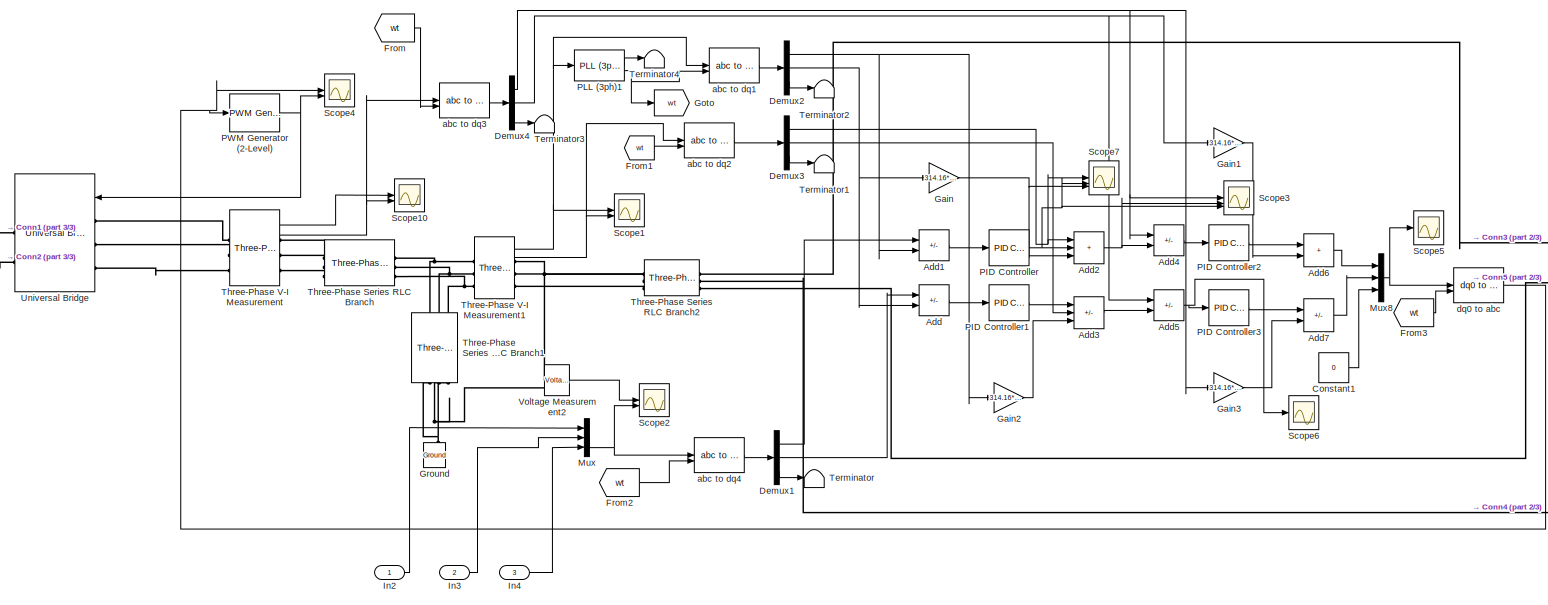
[diagram: Subsystem_Grid/Inverter Control - part 1/3, most of the canvas]
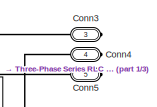
[diagram: Subsystem_Grid/Inverter Control - part 2/3, middle right region]
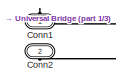
[diagram: Subsystem_Grid/Inverter Control - part 3/3, middle left region]
BLOCK [SubSystem] Subsystem_Grid/Inverter Control
BLOCK [Sum] Subsystem_Grid/Inverter Control/Add
  IconShape = rectangular
  Inputs = +-
BLOCK [Sum] Subsystem_Grid/Inverter Control/Add1
  IconShape = rectangular
  Inputs = +-
BLOCK [Sum] Subsystem_Grid/Inverter Control/Add2
  IconShape = rectangular
  Inputs = +++
BLOCK [Sum] Subsystem_Grid/Inverter Control/Add3
  IconShape = rectangular
  Inputs = ++-
BLOCK [Sum] Subsystem_Grid/Inverter Control/Add4
  IconShape = rectangular
  Inputs = -+
BLOCK [Sum] Subsystem_Grid/Inverter Control/Add5
  IconShape = rectangular
  Inputs = -+
BLOCK [Sum] Subsystem_Grid/Inverter Control/Add6
  IconShape = rectangular
BLOCK [Sum] Subsystem_Grid/Inverter Control/Add7
  IconShape = rectangular
  Inputs = +-
BLOCK [PMIOPort] Subsystem_Grid/Inverter Control/Conn1
  NameLocation = right
  Side = Left
BLOCK [PMIOPort] Subsystem_Grid/Inverter Control/Conn2
  NameLocation = right
  Port = 2
  Side = Left
BLOCK [PMIOPort] Subsystem_Grid/Inverter Control/Conn3
  Port = 3
  Side = Right
BLOCK [PMIOPort] Subsystem_Grid/Inverter Control/Conn4
  Port = 4
  Side = Right
BLOCK [PMIOPort] Subsystem_Grid/Inverter Control/Conn5
  Port = 5
  Side = Right
BLOCK [Constant] Subsystem_Grid/Inverter Control/Constant1
  Value = 0
BLOCK [Demux] Subsystem_Grid/Inverter Control/Demux1
  Outputs = 3
BLOCK [Demux] Subsystem_Grid/Inverter Control/Demux2
  Outputs = 3
BLOCK [Demux] Subsystem_Grid/Inverter Control/Demux3
  Outputs = 3
BLOCK [Demux] Subsystem_Grid/Inverter Control/Demux4
  Outputs = 3
BLOCK [From] Subsystem_Grid/Inverter Control/From
  GotoTag = wt
BLOCK [From] Subsystem_Grid/Inverter Control/From1
  GotoTag = wt
BLOCK [From] Subsystem_Grid/Inverter Control/From2
  GotoTag = wt
BLOCK [From] Subsystem_Grid/Inverter Control/From3
  GotoTag = wt
BLOCK [Gain] Subsystem_Grid/Inverter Control/Gain
  Gain = 314.16*30*(10^(-5))
BLOCK [Gain] Subsystem_Grid/Inverter Control/Gain1
  Gain = 314.16*4*(10^-2)
BLOCK [Gain] Subsystem_Grid/Inverter Control/Gain2
  Gain = 314.16*30*(10^-5)
BLOCK [Gain] Subsystem_Grid/Inverter Control/Gain3
  Gain = 314.16*4*(10^-2)
BLOCK [Goto] Subsystem_Grid/Inverter Control/Goto
  GotoTag = wt
BLOCK [Reference] Subsystem_Grid/Inverter Control/Ground  REF=spsGroundLib/Ground
  LibrarySourceBlock = sps_lib/Utilities/Ground
  NameLocation = right
  SourceBlock = spsGroundLib/Ground
  SourceType = Ground
BLOCK [Inport] Subsystem_Grid/Inverter Control/In2
BLOCK [Inport] Subsystem_Grid/Inverter Control/In3
  Port = 2
BLOCK [Inport] Subsystem_Grid/Inverter Control/In4
  Port = 3
BLOCK [Mux] Subsystem_Grid/Inverter Control/Mux
  DisplayOption = bar
  Inputs = 3
BLOCK [Mux] Subsystem_Grid/Inverter Control/Mux8
  DisplayOption = bar
  Inputs = 3
BLOCK [Reference] Subsystem_Grid/Inverter Control/PID Controller  REF=slpidlib/PID Controller
  SourceBlock = slpidlib/PID Controller
  SourceType = PID 1dof
BLOCK [Reference] Subsystem_Grid/Inverter Control/PID Controller1  REF=slpidlib/PID Controller
  SourceBlock = slpidlib/PID Controller
  SourceType = PID 1dof
BLOCK [Reference] Subsystem_Grid/Inverter Control/PID Controller2  REF=slpidlib/PID Controller
  SourceBlock = slpidlib/PID Controller
  SourceType = PID 1dof
BLOCK [Reference] Subsystem_Grid/Inverter Control/PID Controller3  REF=slpidlib/PID Controller
  SourceBlock = slpidlib/PID Controller
  SourceType = PID 1dof
BLOCK [Reference] Subsystem_Grid/Inverter Control/PLL (3ph)1  REF=spsPLL3phLib/PLL
(3ph)
  LibrarySourceBlock = sps_lib/Control/PLL\n(3ph)
  SourceBlock = spsPLL3phLib/PLL\n(3ph)
  SourceType = PLL (3ph)
BLOCK [Reference] Subsystem_Grid/Inverter Control/PWM Generator (2-Level)  REF=spsPWMGenerator2LevelLib/PWM Generator
(2-Level)
  LibrarySourceBlock = sps_lib/Power Electronics/Power Electronics Control/PWM Generator\n(2-Level)
  SourceBlock = spsPWMGenerator2LevelLib/PWM Generator\n(2-Level)
  SourceType = PWM Generator (2-Level)
BLOCK [Scope] Subsystem_Grid/Inverter Control/Scope1
  Floating = off
  NumInputPorts = 2
  ScopeSpecificationString = Simulink.scopes.TimeScopeBlockCfg('CurrentConfiguration', extmgr.ConfigurationSet(extmgr.Configuration('Core','General UI',true),extmgr.Configuration('Core','Source UI',true),extmgr.Configuration('Sources','WiredSimulink',true,'DataLoggingVariableName','ScopeData1'),extmgr.Configuration('Visuals','Time Domain',true,'SerializedDisplays',{struct('MinYLimReal','373.7317','MaxYLimReal','388.66198','YL...<+2270ch>
BLOCK [Scope] Subsystem_Grid/Inverter Control/Scope10
  Floating = off
  NumInputPorts = 2
  ScopeSpecificationString = Simulink.scopes.TimeScopeBlockCfg('CurrentConfiguration', extmgr.ConfigurationSet(extmgr.Configuration('Core','General UI',true),extmgr.Configuration('Core','Source UI',true),extmgr.Configuration('Sources','WiredSimulink',true),extmgr.Configuration('Visuals','Time Domain',true,'SerializedDisplays',{struct('MinYLimReal','-875.03346','MaxYLimReal','875.04336','YLabelReal','','MinYLimMag',' 0.00000',...<+2227ch>
BLOCK [Scope] Subsystem_Grid/Inverter Control/Scope2
  Floating = off
  NumInputPorts = 2
  ScopeSpecificationString = Simulink.scopes.TimeScopeBlockCfg('CurrentConfiguration', extmgr.ConfigurationSet(extmgr.Configuration('Core','General UI',true),extmgr.Configuration('Core','Source UI',true),extmgr.Configuration('Sources','WiredSimulink',true,'DataLoggingVariableName','ScopeData2'),extmgr.Configuration('Visuals','Time Domain',true,'SerializedDisplays',{struct('MinYLimReal','-502.80283','MaxYLimReal','501.82372','...<+2075ch>
BLOCK [Scope] Subsystem_Grid/Inverter Control/Scope3
  Floating = off
  NumInputPorts = 3
  ScopeSpecificationString = Simulink.scopes.TimeScopeBlockCfg('CurrentConfiguration', extmgr.ConfigurationSet(extmgr.Configuration('Core','General UI',true),extmgr.Configuration('Core','Source UI',true),extmgr.Configuration('Sources','WiredSimulink',true,'DataLoggingVariableName','ScopeData5'),extmgr.Configuration('Visuals','Time Domain',true,'SerializedDisplays',{struct('MinYLimReal','-185.58691','MaxYLimReal','27.34521','Y...<+2790ch>
BLOCK [Scope] Subsystem_Grid/Inverter Control/Scope4
  Floating = off
  NumInputPorts = 2
  ScopeSpecificationString = Simulink.scopes.TimeScopeBlockCfg('CurrentConfiguration', extmgr.ConfigurationSet(extmgr.Configuration('Core','General UI',true),extmgr.Configuration('Core','Source UI',true),extmgr.Configuration('Sources','WiredSimulink',true,'DataLoggingVariableName','ScopeData4'),extmgr.Configuration('Visuals','Time Domain',true,'SerializedDisplays',{struct('MinYLimReal','-467456.17562','MaxYLimReal','557313.61...<+2251ch>
BLOCK [Scope] Subsystem_Grid/Inverter Control/Scope5
  Floating = off
  NumInputPorts = 1
  ScopeSpecificationString = Simulink.scopes.TimeScopeBlockCfg('CurrentConfiguration', extmgr.ConfigurationSet(extmgr.Configuration('Core','General UI',true),extmgr.Configuration('Core','Source UI',true),extmgr.Configuration('Sources','WiredSimulink',true,'DataLoggingVariableName','ScopeData5'),extmgr.Configuration('Visuals','Time Domain',true,'SerializedDisplays',{struct('MinYLimReal','-914.11173','MaxYLimReal','426.6129','Y...<+1519ch>
BLOCK [Scope] Subsystem_Grid/Inverter Control/Scope6
  Floating = off
  NumInputPorts = 1
  ScopeSpecificationString = Simulink.scopes.TimeScopeBlockCfg('CurrentConfiguration', extmgr.ConfigurationSet(extmgr.Configuration('Core','General UI',true),extmgr.Configuration('Core','Source UI',true),extmgr.Configuration('Sources','WiredSimulink',true,'DataLoggingVariableName','ScopeData6'),extmgr.Configuration('Visuals','Time Domain',true,'SerializedDisplays',{struct('MinYLimReal','-914.11173','MaxYLimReal','426.6129','Y...<+1519ch>
BLOCK [Scope] Subsystem_Grid/Inverter Control/Scope7
  Floating = off
  NumInputPorts = 3
  ScopeSpecificationString = Simulink.scopes.TimeScopeBlockCfg('CurrentConfiguration', extmgr.ConfigurationSet(extmgr.Configuration('Core','General UI',true),extmgr.Configuration('Core','Source UI',true),extmgr.Configuration('Sources','WiredSimulink',true,'DataLoggingVariableName','ScopeData8'),extmgr.Configuration('Visuals','Time Domain',true,'SerializedDisplays',{struct('MinYLimReal','-207.04764','MaxYLimReal','22.95272','Y...<+2782ch>
BLOCK [Terminator] Subsystem_Grid/Inverter Control/Terminator
BLOCK [Terminator] Subsystem_Grid/Inverter Control/Terminator1
BLOCK [Terminator] Subsystem_Grid/Inverter Control/Terminator2
BLOCK [Terminator] Subsystem_Grid/Inverter Control/Terminator3
BLOCK [Terminator] Subsystem_Grid/Inverter Control/Terminator4
BLOCK [Reference] Subsystem_Grid/Inverter Control/Three-Phase Series RLC Branch  REF=spsThreePhaseSeriesRLCBranchLib/Three-Phase
Series RLC Branch
  AttributesFormatString = \n
  LibrarySourceBlock = sps_lib/Passives/Three-Phase\nSeries RLC Branch
  SourceBlock = spsThreePhaseSeriesRLCBranchLib/Three-Phase\nSeries RLC Branch
  SourceType = Three-Phase Series RLC Branch
BLOCK [Reference] Subsystem_Grid/Inverter Control/Three-Phase Series RLC Branch1  REF=spsThreePhaseSeriesRLCBranchLib/Three-Phase
Series RLC Branch
  AttributesFormatString = \n
  LibrarySourceBlock = sps_lib/Passives/Three-Phase\nSeries RLC Branch
  NameLocation = left
  SourceBlock = spsThreePhaseSeriesRLCBranchLib/Three-Phase\nSeries RLC Branch
  SourceType = Three-Phase Series RLC Branch
BLOCK [Reference] Subsystem_Grid/Inverter Control/Three-Phase Series RLC Branch2  REF=spsThreePhaseSeriesRLCBranchLib/Three-Phase
Series RLC Branch
  AttributesFormatString = \n
  LibrarySourceBlock = sps_lib/Passives/Three-Phase\nSeries RLC Branch
  SourceBlock = spsThreePhaseSeriesRLCBranchLib/Three-Phase\nSeries RLC Branch
  SourceType = Three-Phase Series RLC Branch
BLOCK [Reference] Subsystem_Grid/Inverter Control/Three-Phase V-I Measurement  REF=spsThreePhaseVIMeasurementLib/Three-Phase
V-I Measurement
  LibrarySourceBlock = sps_lib/Sensors and Measurements/Three-Phase\nV-I Measurement
  SourceBlock = spsThreePhaseVIMeasurementLib/Three-Phase\nV-I Measurement
  SourceType = Three-Phase VI Measurement
BLOCK [Reference] Subsystem_Grid/Inverter Control/Three-Phase V-I Measurement1  REF=spsThreePhaseVIMeasurementLib/Three-Phase
V-I Measurement
  LibrarySourceBlock = sps_lib/Sensors and Measurements/Three-Phase\nV-I Measurement
  SourceBlock = spsThreePhaseVIMeasurementLib/Three-Phase\nV-I Measurement
  SourceType = Three-Phase VI Measurement
BLOCK [Reference] Subsystem_Grid/Inverter Control/Universal Bridge  REF=spsUniversalBridgeLib/Universal Bridge
  LibrarySourceBlock = sps_lib/Power Electronics/Universal Bridge
  SourceBlock = spsUniversalBridgeLib/Universal Bridge
  SourceType = Universal Bridge
BLOCK [Reference] Subsystem_Grid/Inverter Control/Voltage Measurement2  REF=spsVoltageMeasurementLib/Voltage Measurement
  LibrarySourceBlock = sps_lib/Sensors and Measurements/Voltage Measurement
  SourceBlock = spsVoltageMeasurementLib/Voltage Measurement
  SourceType = Voltage Measurement
  UserDataPersistent = on
BLOCK [Reference] Subsystem_Grid/Inverter Control/abc to dq1  REF=spsabctodq0Lib/abc to dq0
  LibrarySourceBlock = sps_lib/Control/abc to dq0
  SourceBlock = spsabctodq0Lib/abc to dq0
  SourceType = abc to dq0 Transformation
BLOCK [Reference] Subsystem_Grid/Inverter Control/abc to dq2  REF=spsabctodq0Lib/abc to dq0
  LibrarySourceBlock = sps_lib/Control/abc to dq0
  SourceBlock = spsabctodq0Lib/abc to dq0
  SourceType = abc to dq0 Transformation
BLOCK [Reference] Subsystem_Grid/Inverter Control/abc to dq3  REF=spsabctodq0Lib/abc to dq0
  LibrarySourceBlock = sps_lib/Control/abc to dq0
  SourceBlock = spsabctodq0Lib/abc to dq0
  SourceType = abc to dq0 Transformation
BLOCK [Reference] Subsystem_Grid/Inverter Control/abc to dq4  REF=spsabctodq0Lib/abc to dq0
  LibrarySourceBlock = sps_lib/Control/abc to dq0
  SourceBlock = spsabctodq0Lib/abc to dq0
  SourceType = abc to dq0 Transformation
BLOCK [Reference] Subsystem_Grid/Inverter Control/dq0 to abc  REF=spsdq0toabcLib/dq0 to abc
  LibrarySourceBlock = sps_lib/Control/dq0 to abc
  SourceBlock = spsdq0toabcLib/dq0 to abc
  SourceType = dq0 to abc Transformation
BLOCK [SubSystem] Subsystem_Grid/Inverter Control1
  NameLocation = top
BLOCK [Sum] Subsystem_Grid/Inverter Control1/Add
  IconShape = rectangular
  Inputs = +-
BLOCK [Sum] Subsystem_Grid/Inverter Control1/Add1
  IconShape = rectangular
  Inputs = +-
BLOCK [Sum] Subsystem_Grid/Inverter Control1/Add2
  IconShape = rectangular
  Inputs = +++
BLOCK [Sum] Subsystem_Grid/Inverter Control1/Add3
  IconShape = rectangular
  Inputs = ++-
BLOCK [Sum] Subsystem_Grid/Inverter Control1/Add4
  IconShape = rectangular
  Inputs = -+
BLOCK [Sum] Subsystem_Grid/Inverter Control1/Add5
  IconShape = rectangular
  Inputs = -+
BLOCK [Sum] Subsystem_Grid/Inverter Control1/Add6
  IconShape = rectangular
BLOCK [Sum] Subsystem_Grid/Inverter Control1/Add7
  IconShape = rectangular
  Inputs = +-
BLOCK [PMIOPort] Subsystem_Grid/Inverter Control1/Conn1
  NameLocation = right
  Side = Left
BLOCK [PMIOPort] Subsystem_Grid/Inverter Control1/Conn2
  NameLocation = right
  Port = 2
  Side = Left
BLOCK [PMIOPort] Subsystem_Grid/Inverter Control1/Conn3
  Port = 3
  Side = Right
BLOCK [PMIOPort] Subsystem_Grid/Inverter Control1/Conn4
  Port = 4
  Side = Right
BLOCK [PMIOPort] Subsystem_Grid/Inverter Control1/Conn5
  Port = 5
  Side = Right
BLOCK [Constant] Subsystem_Grid/Inverter Control1/Constant1
  Value = 0
BLOCK [Demux] Subsystem_Grid/Inverter Control1/Demux1
  Outputs = 3
BLOCK [Demux] Subsystem_Grid/Inverter Control1/Demux2
  Outputs = 3
BLOCK [Demux] Subsystem_Grid/Inverter Control1/Demux3
  Outputs = 3
BLOCK [Demux] Subsystem_Grid/Inverter Control1/Demux4
  Outputs = 3
BLOCK [From] Subsystem_Grid/Inverter Control1/From
  GotoTag = wt1
BLOCK [From] Subsystem_Grid/Inverter Control1/From1
  GotoTag = wt1
BLOCK [From] Subsystem_Grid/Inverter Control1/From2
  GotoTag = wt1
BLOCK [From] Subsystem_Grid/Inverter Control1/From3
  GotoTag = wt1
BLOCK [Gain] Subsystem_Grid/Inverter Control1/Gain
  Gain = 314.16*30*(10^-5)
BLOCK [Gain] Subsystem_Grid/Inverter Control1/Gain1
  Gain = 314.16*4*(10^-2)
BLOCK [Gain] Subsystem_Grid/Inverter Control1/Gain2
  Gain = 314.16*30*(10^-5)
BLOCK [Gain] Subsystem_Grid/Inverter Control1/Gain3
  Gain = 314.16*4*(10^-2)
BLOCK [Goto] Subsystem_Grid/Inverter Control1/Goto
  GotoTag = wt1
BLOCK [Reference] Subsystem_Grid/Inverter Control1/Ground  REF=spsGroundLib/Ground
  LibrarySourceBlock = sps_lib/Utilities/Ground
  NameLocation = right
  SourceBlock = spsGroundLib/Ground
  SourceType = Ground
BLOCK [Inport] Subsystem_Grid/Inverter Control1/In2
BLOCK [Inport] Subsystem_Grid/Inverter Control1/In3
  Port = 2
BLOCK [Inport] Subsystem_Grid/Inverter Control1/In4
  Port = 3
BLOCK [Mux] Subsystem_Grid/Inverter Control1/Mux
  DisplayOption = bar
  Inputs = 3
BLOCK [Mux] Subsystem_Grid/Inverter Control1/Mux8
  DisplayOption = bar
  Inputs = 3
BLOCK [Reference] Subsystem_Grid/Inverter Control1/PID Controller  REF=slpidlib/PID Controller
  SourceBlock = slpidlib/PID Controller
  SourceType = PID 1dof
BLOCK [Reference] Subsystem_Grid/Inverter Control1/PID Controller1  REF=slpidlib/PID Controller
  SourceBlock = slpidlib/PID Controller
  SourceType = PID 1dof
BLOCK [Reference] Subsystem_Grid/Inverter Control1/PID Controller2  REF=slpidlib/PID Controller
  SourceBlock = slpidlib/PID Controller
  SourceType = PID 1dof
BLOCK [Reference] Subsystem_Grid/Inverter Control1/PID Controller3  REF=slpidlib/PID Controller
  SourceBlock = slpidlib/PID Controller
  SourceType = PID 1dof
BLOCK [Reference] Subsystem_Grid/Inverter Control1/PLL (3ph)1  REF=spsPLL3phLib/PLL
(3ph)
  LibrarySourceBlock = sps_lib/Control/PLL\n(3ph)
  SourceBlock = spsPLL3phLib/PLL\n(3ph)
  SourceType = PLL (3ph)
BLOCK [Reference] Subsystem_Grid/Inverter Control1/PWM Generator (2-Level)  REF=spsPWMGenerator2LevelLib/PWM Generator
(2-Level)
  LibrarySourceBlock = sps_lib/Power Electronics/Power Electronics Control/PWM Generator\n(2-Level)
  SourceBlock = spsPWMGenerator2LevelLib/PWM Generator\n(2-Level)
  SourceType = PWM Generator (2-Level)
BLOCK [Scope] Subsystem_Grid/Inverter Control1/Scope1
  Floating = off
  NumInputPorts = 2
  ScopeSpecificationString = Simulink.scopes.TimeScopeBlockCfg('CurrentConfiguration', extmgr.ConfigurationSet(extmgr.Configuration('Core','General UI',true),extmgr.Configuration('Core','Source UI',true),extmgr.Configuration('Sources','WiredSimulink',true,'DataLoggingVariableName','ScopeData1'),extmgr.Configuration('Visuals','Time Domain',true,'SerializedDisplays',{struct('MinYLimReal','334.82182','MaxYLimReal','459.06124','Y...<+2273ch>
BLOCK [Scope] Subsystem_Grid/Inverter Control1/Scope10
  Floating = off
  NumInputPorts = 2
  ScopeSpecificationString = Simulink.scopes.TimeScopeBlockCfg('CurrentConfiguration', extmgr.ConfigurationSet(extmgr.Configuration('Core','General UI',true),extmgr.Configuration('Core','Source UI',true),extmgr.Configuration('Sources','WiredSimulink',true),extmgr.Configuration('Visuals','Time Domain',true,'SerializedDisplays',{struct('MinYLimReal','-708.37286','MaxYLimReal','708.37651','YLabelReal','','MinYLimMag',' 0.00000',...<+2227ch>
BLOCK [Scope] Subsystem_Grid/Inverter Control1/Scope2
  Floating = off
  NumInputPorts = 2
  ScopeSpecificationString = Simulink.scopes.TimeScopeBlockCfg('CurrentConfiguration', extmgr.ConfigurationSet(extmgr.Configuration('Core','General UI',true),extmgr.Configuration('Core','Source UI',true),extmgr.Configuration('Sources','WiredSimulink',true,'DataLoggingVariableName','ScopeData2'),extmgr.Configuration('Visuals','Time Domain',true,'SerializedDisplays',{struct('MinYLimReal','-377.5708','MaxYLimReal','377.37759','Y...<+2073ch>
BLOCK [Scope] Subsystem_Grid/Inverter Control1/Scope3
  Floating = off
  NumInputPorts = 1
  ScopeSpecificationString = C++SS(StrPVP('SaveName','ScopeData1'),StrPVP('LimitDataPoints','on'),StrPVP('DataFormat','Array'),StrPVP('Decimation','1'),StrPVP('BlockParamSampleInput','off'))
BLOCK [Scope] Subsystem_Grid/Inverter Control1/Scope4
  Floating = off
  NumInputPorts = 2
  ScopeSpecificationString = Simulink.scopes.TimeScopeBlockCfg('CurrentConfiguration', extmgr.ConfigurationSet(extmgr.Configuration('Core','General UI',true),extmgr.Configuration('Core','Source UI',true),extmgr.Configuration('Sources','WiredSimulink',true,'DataLoggingVariableName','ScopeData4'),extmgr.Configuration('Visuals','Time Domain',true,'SerializedDisplays',{struct('MinYLimReal','-467456.17562','MaxYLimReal','557313.61...<+2251ch>
BLOCK [Scope] Subsystem_Grid/Inverter Control1/Scope5
  Floating = off
  NumInputPorts = 1
  ScopeSpecificationString = Simulink.scopes.TimeScopeBlockCfg('CurrentConfiguration', extmgr.ConfigurationSet(extmgr.Configuration('Core','General UI',true),extmgr.Configuration('Core','Source UI',true),extmgr.Configuration('Sources','WiredSimulink',true,'DataLoggingVariableName','ScopeData5'),extmgr.Configuration('Visuals','Time Domain',true,'SerializedDisplays',{struct('MinYLimReal','-240.62063','MaxYLimReal','1356.73563',...<+1525ch>
BLOCK [Terminator] Subsystem_Grid/Inverter Control1/Terminator
BLOCK [Terminator] Subsystem_Grid/Inverter Control1/Terminator1
BLOCK [Terminator] Subsystem_Grid/Inverter Control1/Terminator2
BLOCK [Terminator] Subsystem_Grid/Inverter Control1/Terminator3
BLOCK [Terminator] Subsystem_Grid/Inverter Control1/Terminator4
BLOCK [Reference] Subsystem_Grid/Inverter Control1/Three-Phase Series RLC Branch  REF=spsThreePhaseSeriesRLCBranchLib/Three-Phase
Series RLC Branch
  AttributesFormatString = \n
  LibrarySourceBlock = sps_lib/Passives/Three-Phase\nSeries RLC Branch
  SourceBlock = spsThreePhaseSeriesRLCBranchLib/Three-Phase\nSeries RLC Branch
  SourceType = Three-Phase Series RLC Branch
BLOCK [Reference] Subsystem_Grid/Inverter Control1/Three-Phase Series RLC Branch1  REF=spsThreePhaseSeriesRLCBranchLib/Three-Phase
Series RLC Branch
  AttributesFormatString = \n
  LibrarySourceBlock = sps_lib/Passives/Three-Phase\nSeries RLC Branch
  NameLocation = left
  SourceBlock = spsThreePhaseSeriesRLCBranchLib/Three-Phase\nSeries RLC Branch
  SourceType = Three-Phase Series RLC Branch
BLOCK [Reference] Subsystem_Grid/Inverter Control1/Three-Phase Series RLC Branch2  REF=spsThreePhaseSeriesRLCBranchLib/Three-Phase
Series RLC Branch
  AttributesFormatString = \n
  LibrarySourceBlock = sps_lib/Passives/Three-Phase\nSeries RLC Branch
  SourceBlock = spsThreePhaseSeriesRLCBranchLib/Three-Phase\nSeries RLC Branch
  SourceType = Three-Phase Series RLC Branch
BLOCK [Reference] Subsystem_Grid/Inverter Control1/Three-Phase V-I Measurement  REF=spsThreePhaseVIMeasurementLib/Three-Phase
V-I Measurement
  LibrarySourceBlock = sps_lib/Sensors and Measurements/Three-Phase\nV-I Measurement
  SourceBlock = spsThreePhaseVIMeasurementLib/Three-Phase\nV-I Measurement
  SourceType = Three-Phase VI Measurement
BLOCK [Reference] Subsystem_Grid/Inverter Control1/Three-Phase V-I Measurement1  REF=spsThreePhaseVIMeasurementLib/Three-Phase
V-I Measurement
  LibrarySourceBlock = sps_lib/Sensors and Measurements/Three-Phase\nV-I Measurement
  SourceBlock = spsThreePhaseVIMeasurementLib/Three-Phase\nV-I Measurement
  SourceType = Three-Phase VI Measurement
BLOCK [Reference] Subsystem_Grid/Inverter Control1/Universal Bridge  REF=spsUniversalBridgeLib/Universal Bridge
  LibrarySourceBlock = sps_lib/Power Electronics/Universal Bridge
  SourceBlock = spsUniversalBridgeLib/Universal Bridge
  SourceType = Universal Bridge
BLOCK [Reference] Subsystem_Grid/Inverter Control1/Voltage Measurement2  REF=spsVoltageMeasurementLib/Voltage Measurement
  LibrarySourceBlock = sps_lib/Sensors and Measurements/Voltage Measurement
  SourceBlock = spsVoltageMeasurementLib/Voltage Measurement
  SourceType = Voltage Measurement
  UserDataPersistent = on
BLOCK [Reference] Subsystem_Grid/Inverter Control1/abc to dq1  REF=spsabctodq0Lib/abc to dq0
  LibrarySourceBlock = sps_lib/Control/abc to dq0
  SourceBlock = spsabctodq0Lib/abc to dq0
  SourceType = abc to dq0 Transformation
BLOCK [Reference] Subsystem_Grid/Inverter Control1/abc to dq2  REF=spsabctodq0Lib/abc to dq0
  LibrarySourceBlock = sps_lib/Control/abc to dq0
  SourceBlock = spsabctodq0Lib/abc to dq0
  SourceType = abc to dq0 Transformation
BLOCK [Reference] Subsystem_Grid/Inverter Control1/abc to dq3  REF=spsabctodq0Lib/abc to dq0
  LibrarySourceBlock = sps_lib/Control/abc to dq0
  SourceBlock = spsabctodq0Lib/abc to dq0
  SourceType = abc to dq0 Transformation
BLOCK [Reference] Subsystem_Grid/Inverter Control1/abc to dq4  REF=spsabctodq0Lib/abc to dq0
  LibrarySourceBlock = sps_lib/Control/abc to dq0
  SourceBlock = spsabctodq0Lib/abc to dq0
  SourceType = abc to dq0 Transformation
BLOCK [Reference] Subsystem_Grid/Inverter Control1/dq0 to abc  REF=spsdq0toabcLib/dq0 to abc
  LibrarySourceBlock = sps_lib/Control/dq0 to abc
  SourceBlock = spsdq0toabcLib/dq0 to abc
  SourceType = dq0 to abc Transformation
BLOCK [Reference] Subsystem_Grid/Line 1   REF=spsThreePhaseSeriesRLCBranchLib/Three-Phase
Series RLC Branch
  AttributesFormatString = \n
  LibrarySourceBlock = sps_lib/Passives/Three-Phase\nSeries RLC Branch
  SourceBlock = spsThreePhaseSeriesRLCBranchLib/Three-Phase\nSeries RLC Branch
  SourceType = Three-Phase Series RLC Branch
BLOCK [Reference] Subsystem_Grid/Line 1 2  REF=spsThreePhaseSeriesRLCBranchLib/Three-Phase
Series RLC Branch
  AttributesFormatString = \n
  LibrarySourceBlock = sps_lib/Passives/Three-Phase\nSeries RLC Branch
  SourceBlock = spsThreePhaseSeriesRLCBranchLib/Three-Phase\nSeries RLC Branch
  SourceType = Three-Phase Series RLC Branch
BLOCK [SubSystem] Subsystem_Grid/Load
  NameLocation = right
BLOCK [PMIOPort] Subsystem_Grid/Load/Conn1
  NameLocation = right
  Side = Right
BLOCK [PMIOPort] Subsystem_Grid/Load/Conn10
  NameLocation = right
  Port = 10
  Side = Right
BLOCK [PMIOPort] Subsystem_Grid/Load/Conn11
  NameLocation = right
  Port = 11
  Side = Right
BLOCK [PMIOPort] Subsystem_Grid/Load/Conn12
  NameLocation = right
  Port = 12
  Side = Right
BLOCK [PMIOPort] Subsystem_Grid/Load/Conn2
  NameLocation = right
  Port = 2
  Side = Right
BLOCK [PMIOPort] Subsystem_Grid/Load/Conn3
  NameLocation = right
  Port = 3
  Side = Right
BLOCK [PMIOPort] Subsystem_Grid/Load/Conn4
  NameLocation = right
  Port = 4
  Side = Right
BLOCK [PMIOPort] Subsystem_Grid/Load/Conn5
  NameLocation = right
  Port = 5
  Side = Right
BLOCK [PMIOPort] Subsystem_Grid/Load/Conn6
  NameLocation = right
  Port = 6
  Side = Right
BLOCK [PMIOPort] Subsystem_Grid/Load/Conn7
  NameLocation = right
  Port = 7
  Side = Right
BLOCK [PMIOPort] Subsystem_Grid/Load/Conn8
  NameLocation = right
  Port = 8
  Side = Right
BLOCK [PMIOPort] Subsystem_Grid/Load/Conn9
  NameLocation = right
  Port = 9
  Side = Right
BLOCK [Reference] Subsystem_Grid/Load/Three-Phase Series RLC Load  REF=spsThreePhaseSeriesRLCLoadLib/Three-Phase
Series RLC Load
  AttributesFormatString = \n
  LibrarySourceBlock = sps_lib/Passives/Three-Phase\nSeries RLC Load
  NameLocation = right
  SourceBlock = spsThreePhaseSeriesRLCLoadLib/Three-Phase\nSeries RLC Load
  SourceType = Three-Phase Series RLC Load
BLOCK [Reference] Subsystem_Grid/Load/Three-Phase Series RLC Load1  REF=spsThreePhaseSeriesRLCLoadLib/Three-Phase
Series RLC Load
  AttributesFormatString = \n
  LibrarySourceBlock = sps_lib/Passives/Three-Phase\nSeries RLC Load
  NameLocation = right
  SourceBlock = spsThreePhaseSeriesRLCLoadLib/Three-Phase\nSeries RLC Load
  SourceType = Three-Phase Series RLC Load
BLOCK [Reference] Subsystem_Grid/Load/Three-Phase Series RLC Load2  REF=spsThreePhaseSeriesRLCLoadLib/Three-Phase
Series RLC Load
  AttributesFormatString = \n
  LibrarySourceBlock = sps_lib/Passives/Three-Phase\nSeries RLC Load
  NameLocation = right
  SourceBlock = spsThreePhaseSeriesRLCLoadLib/Three-Phase\nSeries RLC Load
  SourceType = Three-Phase Series RLC Load
BLOCK [Reference] Subsystem_Grid/Load/Three-Phase Series RLC Load3  REF=spsThreePhaseSeriesRLCLoadLib/Three-Phase
Series RLC Load
  AttributesFormatString = \n
  LibrarySourceBlock = sps_lib/Passives/Three-Phase\nSeries RLC Load
  NameLocation = right
  SourceBlock = spsThreePhaseSeriesRLCLoadLib/Three-Phase\nSeries RLC Load
  SourceType = Three-Phase Series RLC Load
BLOCK [Outport] Subsystem_Grid/Out1
BLOCK [Outport] Subsystem_Grid/Out2
  Port = 2
BLOCK [Outport] Subsystem_Grid/Out3
  Port = 3
BLOCK [Outport] Subsystem_Grid/Out4
  Port = 4
BLOCK [Scope] Subsystem_Grid/P Q pf
  Floating = off
  NumInputPorts = 3
  ScopeSpecificationString = C++SS(StrPVP('SaveName','ScopeData1'),StrPVP('LimitDataPoints','on'),StrPVP('DataFormat','Array'),StrPVP('Decimation','1'),StrPVP('BlockParamSampleInput','off'),StrPVP('SaveName','ScopeData1'))
BLOCK [Scope] Subsystem_Grid/P Q pf1
  Floating = off
  NumInputPorts = 3
  ScopeSpecificationString = C++SS(StrPVP('SaveName','ScopeData2'),StrPVP('LimitDataPoints','on'),StrPVP('DataFormat','Array'),StrPVP('Decimation','1'),StrPVP('BlockParamSampleInput','off'),StrPVP('SaveName','ScopeData2'))
BLOCK [Scope] Subsystem_Grid/P Q pf2
  Floating = off
  NumInputPorts = 3
  ScopeSpecificationString = Simulink.scopes.TimeScopeBlockCfg('CurrentConfiguration', extmgr.ConfigurationSet(extmgr.Configuration('Core','General UI',true),extmgr.Configuration('Core','Source UI',true),extmgr.Configuration('Sources','WiredSimulink',true,'DataLoggingVariableName','ScopeData3','DataLoggingLimitDataPoints',true,'DataLoggingSaveFormat','Array','DataLoggingDecimation','1','DataLoggingDecimateData',true),extmgr.C...<+1583ch>
BLOCK [Scope] Subsystem_Grid/P Q pf3
  Floating = off
  NumInputPorts = 3
  ScopeSpecificationString = Simulink.scopes.TimeScopeBlockCfg('CurrentConfiguration', extmgr.ConfigurationSet(extmgr.Configuration('Core','General UI',true),extmgr.Configuration('Core','Source UI',true),extmgr.Configuration('Sources','WiredSimulink',true,'DataLoggingVariableName','ScopeData4','DataLoggingLimitDataPoints',true,'DataLoggingSaveFormat','Array','DataLoggingDecimation','1','DataLoggingDecimateData',true),extmgr.C...<+1618ch>
BLOCK [Scope] Subsystem_Grid/P Q pf4
  Floating = off
  NumInputPorts = 3
  ScopeSpecificationString = Simulink.scopes.TimeScopeBlockCfg('CurrentConfiguration', extmgr.ConfigurationSet(extmgr.Configuration('Core','General UI',true),extmgr.Configuration('Core','Source UI',true),extmgr.Configuration('Sources','WiredSimulink',true,'DataLoggingVariableName','ScopeData5','DataLoggingLimitDataPoints',true,'DataLoggingSaveFormat','Array','DataLoggingDecimation','1','DataLoggingDecimateData',true),extmgr.C...<+1583ch>
BLOCK [Reference] Subsystem_Grid/PLL (3ph)  REF=spsPLL3phLib/PLL
(3ph)
  LibrarySourceBlock = sps_lib/Control/PLL\n(3ph)
  SourceBlock = spsPLL3phLib/PLL\n(3ph)
  SourceType = PLL (3ph)
BLOCK [Product] Subsystem_Grid/Product
BLOCK [Reference] Subsystem_Grid/RMS  REF=spsRMSLib/RMS
  LibrarySourceBlock = sps_lib/Sensors and Measurements/RMS
  SourceBlock = spsRMSLib/RMS
  SourceType = RMS
BLOCK [Scope] Subsystem_Grid/Scope12
  Floating = off
  NumInputPorts = 2
  ScopeSpecificationString = Simulink.scopes.TimeScopeBlockCfg('CurrentConfiguration', extmgr.ConfigurationSet(extmgr.Configuration('Core','General UI',true),extmgr.Configuration('Core','Source UI',true),extmgr.Configuration('Sources','WiredSimulink',true,'DataLoggingVariableName','ScopeData6','DataLoggingLimitDataPoints',true,'DataLoggingSaveFormat','Array','DataLoggingDecimation','1','DataLoggingDecimateData',true),extmgr.C...<+2230ch>
BLOCK [Scope] Subsystem_Grid/Scope13
  Floating = off
  NumInputPorts = 2
  ScopeSpecificationString = Simulink.scopes.TimeScopeBlockCfg('CurrentConfiguration', extmgr.ConfigurationSet(extmgr.Configuration('Core','General UI',true),extmgr.Configuration('Core','Source UI',true),extmgr.Configuration('Sources','WiredSimulink',true,'DataLoggingVariableName','ScopeData7','DataLoggingSaveFormat','Array','DataLoggingDecimation','1','DataLoggingDecimateData',true),extmgr.Configuration('Visuals','Time Domai...<+2114ch>
BLOCK [Scope] Subsystem_Grid/Scope14
  Floating = off
  NumInputPorts = 2
  ScopeSpecificationString = Simulink.scopes.TimeScopeBlockCfg('CurrentConfiguration', extmgr.ConfigurationSet(extmgr.Configuration('Core','General UI',true),extmgr.Configuration('Core','Source UI',true),extmgr.Configuration('Sources','WiredSimulink',true,'DataLoggingVariableName','ScopeData8','DataLoggingLimitDataPoints',true,'DataLoggingSaveFormat','Array','DataLoggingDecimation','1','DataLoggingDecimateData',true),extmgr.C...<+2280ch>
BLOCK [Scope] Subsystem_Grid/Scope2
  Floating = off
  NumInputPorts = 2
  ScopeSpecificationString = Simulink.scopes.TimeScopeBlockCfg('CurrentConfiguration', extmgr.ConfigurationSet(extmgr.Configuration('Core','General UI',true),extmgr.Configuration('Core','Source UI',true),extmgr.Configuration('Sources','WiredSimulink',true,'DataLoggingVariableName','ScopeData9','DataLoggingLimitDataPoints',true,'DataLoggingSaveFormat','Array','DataLoggingDecimation','1','DataLoggingDecimateData',true),extmgr.C...<+1604ch>
BLOCK [Scope] Subsystem_Grid/Scope3
  Floating = off
  NumInputPorts = 2
  ScopeSpecificationString = Simulink.scopes.TimeScopeBlockCfg('CurrentConfiguration', extmgr.ConfigurationSet(extmgr.Configuration('Core','General UI',true),extmgr.Configuration('Core','Source UI',true),extmgr.Configuration('Sources','WiredSimulink',true,'DataLoggingVariableName','ScopeData10','DataLoggingLimitDataPoints',true,'DataLoggingSaveFormat','Array','DataLoggingDecimation','1','DataLoggingDecimateData',true),extmgr....<+1584ch>
BLOCK [Scope] Subsystem_Grid/Scope4
  Floating = off
  NumInputPorts = 2
  ScopeSpecificationString = Simulink.scopes.TimeScopeBlockCfg('CurrentConfiguration', extmgr.ConfigurationSet(extmgr.Configuration('Core','General UI',true),extmgr.Configuration('Core','Source UI',true),extmgr.Configuration('Sources','WiredSimulink',true,'DataLoggingVariableName','ScopeData11','DataLoggingLimitDataPoints',true,'DataLoggingSaveFormat','Array','DataLoggingDecimation','1','DataLoggingDecimateData',true),extmgr....<+1596ch>
BLOCK [Scope] Subsystem_Grid/Scope5
  Floating = off
  NumInputPorts = 2
  ScopeSpecificationString = C++SS(StrPVP('SaveName','ScopeData12'),StrPVP('LimitDataPoints','on'),StrPVP('DataFormat','Array'),StrPVP('Decimation','1'),StrPVP('BlockParamSampleInput','off'),StrPVP('SaveName','ScopeData12'))
BLOCK [Scope] Subsystem_Grid/Scope6
  Floating = off
  NumInputPorts = 2
  ScopeSpecificationString = Simulink.scopes.TimeScopeBlockCfg('CurrentConfiguration', extmgr.ConfigurationSet(extmgr.Configuration('Core','General UI',true),extmgr.Configuration('Core','Source UI',true),extmgr.Configuration('Sources','WiredSimulink',true,'DataLoggingVariableName','ScopeData13','DataLoggingLimitDataPoints',true,'DataLoggingSaveFormat','Array','DataLoggingDecimation','1','DataLoggingDecimateData',true),extmgr....<+2206ch>
BLOCK [Scope] Subsystem_Grid/Scope9
  Floating = off
  NumInputPorts = 2
  ScopeSpecificationString = C++SS(StrPVP('SaveName','ScopeData14'),StrPVP('LimitDataPoints','on'),StrPVP('DataFormat','Array'),StrPVP('Decimation','1'),StrPVP('BlockParamSampleInput','off'),StrPVP('SaveName','ScopeData14'))
BLOCK [SubSystem] Subsystem_Grid/Subsystem
BLOCK [Sum] Subsystem_Grid/Subsystem/Add10
  IconShape = rectangular
  Inputs = +++
BLOCK [Sum] Subsystem_Grid/Subsystem/Add11
  IconShape = rectangular
  Inputs = +-
BLOCK [Demux] Subsystem_Grid/Subsystem/Demux5
  Outputs = 3
BLOCK [Demux] Subsystem_Grid/Subsystem/Demux6
  Outputs = 3
BLOCK [From] Subsystem_Grid/Subsystem/From4
  GotoTag = wt
BLOCK [From] Subsystem_Grid/Subsystem/From5
  GotoTag = wt
BLOCK [Gain] Subsystem_Grid/Subsystem/Gain
  Gain = 2
BLOCK [Gain] Subsystem_Grid/Subsystem/Gain1
  Gain = 3/2
BLOCK [Gain] Subsystem_Grid/Subsystem/Gain2
  Gain = 3/2
BLOCK [Inport] Subsystem_Grid/Subsystem/In1
BLOCK [Inport] Subsystem_Grid/Subsystem/In2
  Port = 2
BLOCK [Outport] Subsystem_Grid/Subsystem/Out2
BLOCK [Outport] Subsystem_Grid/Subsystem/Out4
  Port = 2
BLOCK [Product] Subsystem_Grid/Subsystem/Product
BLOCK [Product] Subsystem_Grid/Subsystem/Product1
BLOCK [Product] Subsystem_Grid/Subsystem/Product2
BLOCK [Product] Subsystem_Grid/Subsystem/Product3
BLOCK [Product] Subsystem_Grid/Subsystem/Product4
BLOCK [Reference] Subsystem_Grid/Subsystem/abc to dq5  REF=spsabctodq0Lib/abc to dq0
  LibrarySourceBlock = sps_lib/Control/abc to dq0
  SourceBlock = spsabctodq0Lib/abc to dq0
  SourceType = abc to dq0 Transformation
BLOCK [Reference] Subsystem_Grid/Subsystem/abc to dq6  REF=spsabctodq0Lib/abc to dq0
  LibrarySourceBlock = sps_lib/Control/abc to dq0
  SourceBlock = spsabctodq0Lib/abc to dq0
  SourceType = abc to dq0 Transformation
BLOCK [SubSystem] Subsystem_Grid/Subsystem1
BLOCK [Sum] Subsystem_Grid/Subsystem1/Add10
  IconShape = rectangular
  Inputs = +++
BLOCK [Sum] Subsystem_Grid/Subsystem1/Add11
  IconShape = rectangular
  Inputs = +-
BLOCK [Demux] Subsystem_Grid/Subsystem1/Demux5
  Outputs = 3
BLOCK [Demux] Subsystem_Grid/Subsystem1/Demux6
  Outputs = 3
BLOCK [From] Subsystem_Grid/Subsystem1/From4
  GotoTag = wt1
BLOCK [From] Subsystem_Grid/Subsystem1/From5
  GotoTag = wt1
BLOCK [Gain] Subsystem_Grid/Subsystem1/Gain
  Gain = 2
BLOCK [Gain] Subsystem_Grid/Subsystem1/Gain1
  Gain = 3/2
BLOCK [Gain] Subsystem_Grid/Subsystem1/Gain2
  Gain = 3/2
BLOCK [Inport] Subsystem_Grid/Subsystem1/In1
BLOCK [Inport] Subsystem_Grid/Subsystem1/In2
  Port = 2
BLOCK [Outport] Subsystem_Grid/Subsystem1/Out2
BLOCK [Outport] Subsystem_Grid/Subsystem1/Out4
  Port = 2
BLOCK [Product] Subsystem_Grid/Subsystem1/Product
BLOCK [Product] Subsystem_Grid/Subsystem1/Product1
BLOCK [Product] Subsystem_Grid/Subsystem1/Product2
BLOCK [Product] Subsystem_Grid/Subsystem1/Product3
BLOCK [Product] Subsystem_Grid/Subsystem1/Product4
BLOCK [Reference] Subsystem_Grid/Subsystem1/abc to dq5  REF=spsabctodq0Lib/abc to dq0
  LibrarySourceBlock = sps_lib/Control/abc to dq0
  SourceBlock = spsabctodq0Lib/abc to dq0
  SourceType = abc to dq0 Transformation
BLOCK [Reference] Subsystem_Grid/Subsystem1/abc to dq6  REF=spsabctodq0Lib/abc to dq0
  LibrarySourceBlock = sps_lib/Control/abc to dq0
  SourceBlock = spsabctodq0Lib/abc to dq0
  SourceType = abc to dq0 Transformation
BLOCK [SubSystem] Subsystem_Grid/Subsystem2
BLOCK [PMIOPort] Subsystem_Grid/Subsystem2/Conn1
  Side = Right
BLOCK [PMIOPort] Subsystem_Grid/Subsystem2/Conn2
  Port = 2
  Side = Left
BLOCK [PMIOPort] Subsystem_Grid/Subsystem2/Conn3
  Port = 3
  Side = Right
BLOCK [PMIOPort] Subsystem_Grid/Subsystem2/Conn4
  Port = 4
  Side = Left
BLOCK [PMIOPort] Subsystem_Grid/Subsystem2/Conn5
  Port = 5
  Side = Right
BLOCK [PMIOPort] Subsystem_Grid/Subsystem2/Conn6
  Port = 6
  Side = Left
BLOCK [Reference] Subsystem_Grid/Subsystem2/Ground1  REF=spsGroundLib/Ground
  LibrarySourceBlock = sps_lib/Utilities/Ground
  NameLocation = right
  SourceBlock = spsGroundLib/Ground
  SourceType = Ground
BLOCK [Reference] Subsystem_Grid/Subsystem2/Three-Phase Series RLC Branch3  REF=spsThreePhaseSeriesRLCBranchLib/Three-Phase
Series RLC Branch
  AttributesFormatString = \n
  LibrarySourceBlock = sps_lib/Passives/Three-Phase\nSeries RLC Branch
  SourceBlock = spsThreePhaseSeriesRLCBranchLib/Three-Phase\nSeries RLC Branch
  SourceType = Three-Phase Series RLC Branch
BLOCK [Reference] Subsystem_Grid/Subsystem2/Three-Phase Series RLC Branch5  REF=spsThreePhaseSeriesRLCBranchLib/Three-Phase
Series RLC Branch
  AttributesFormatString = \n
  LibrarySourceBlock = sps_lib/Passives/Three-Phase\nSeries RLC Branch
  SourceBlock = spsThreePhaseSeriesRLCBranchLib/Three-Phase\nSeries RLC Branch
  SourceType = Three-Phase Series RLC Branch
BLOCK [SubSystem] Subsystem_Grid/Subsystem3
BLOCK [Sum] Subsystem_Grid/Subsystem3/Add10
  IconShape = rectangular
  Inputs = +++
BLOCK [Sum] Subsystem_Grid/Subsystem3/Add11
  IconShape = rectangular
  Inputs = +-
BLOCK [Inport] Subsystem_Grid/Subsystem3/Current
  Port = 2
BLOCK [Demux] Subsystem_Grid/Subsystem3/Demux5
  Outputs = 3
BLOCK [Demux] Subsystem_Grid/Subsystem3/Demux6
  Outputs = 3
BLOCK [From] Subsystem_Grid/Subsystem3/From4
  GotoTag = wt2
BLOCK [From] Subsystem_Grid/Subsystem3/From5
  GotoTag = wt2
BLOCK [Gain] Subsystem_Grid/Subsystem3/Gain
  Gain = 2
BLOCK [Gain] Subsystem_Grid/Subsystem3/Gain1
  Gain = 3/2
BLOCK [Gain] Subsystem_Grid/Subsystem3/Gain2
  Gain = 3/2
BLOCK [Outport] Subsystem_Grid/Subsystem3/P
BLOCK [Product] Subsystem_Grid/Subsystem3/Product
BLOCK [Product] Subsystem_Grid/Subsystem3/Product1
BLOCK [Product] Subsystem_Grid/Subsystem3/Product2
BLOCK [Product] Subsystem_Grid/Subsystem3/Product3
BLOCK [Product] Subsystem_Grid/Subsystem3/Product4
BLOCK [Outport] Subsystem_Grid/Subsystem3/Q
  Port = 2
BLOCK [Inport] Subsystem_Grid/Subsystem3/Voltage
BLOCK [Reference] Subsystem_Grid/Subsystem3/abc to dq5  REF=spsabctodq0Lib/abc to dq0
  LibrarySourceBlock = sps_lib/Control/abc to dq0
  SourceBlock = spsabctodq0Lib/abc to dq0
  SourceType = abc to dq0 Transformation
BLOCK [Reference] Subsystem_Grid/Subsystem3/abc to dq6  REF=spsabctodq0Lib/abc to dq0
  LibrarySourceBlock = sps_lib/Control/abc to dq0
  SourceBlock = spsabctodq0Lib/abc to dq0
  SourceType = abc to dq0 Transformation
BLOCK [SubSystem] Subsystem_Grid/Switch
  NameLocation = right
BLOCK [PMIOPort] Subsystem_Grid/Switch/Conn1
  NameLocation = right
  Side = Right
BLOCK [PMIOPort] Subsystem_Grid/Switch/Conn10
  NameLocation = right
  Port = 10
  Side = Left
BLOCK [PMIOPort] Subsystem_Grid/Switch/Conn11
  NameLocation = right
  Port = 11
  Side = Left
BLOCK [PMIOPort] Subsystem_Grid/Switch/Conn12
  NameLocation = right
  Port = 12
  Side = Left
BLOCK [PMIOPort] Subsystem_Grid/Switch/Conn13
  NameLocation = right
  Port = 13
  Side = Left
BLOCK [PMIOPort] Subsystem_Grid/Switch/Conn14
  NameLocation = right
  Port = 14
  Side = Left
BLOCK [PMIOPort] Subsystem_Grid/Switch/Conn15
  NameLocation = right
  Port = 15
  Side = Left
BLOCK [PMIOPort] Subsystem_Grid/Switch/Conn2
  NameLocation = right
  Port = 2
  Side = Right
BLOCK [PMIOPort] Subsystem_Grid/Switch/Conn3
  NameLocation = right
  Port = 3
  Side = Right
BLOCK [PMIOPort] Subsystem_Grid/Switch/Conn4
  NameLocation = right
  Port = 4
  Side = Left
BLOCK [PMIOPort] Subsystem_Grid/Switch/Conn5
  NameLocation = right
  Port = 5
  Side = Left
BLOCK [PMIOPort] Subsystem_Grid/Switch/Conn6
  NameLocation = right
  Port = 6
  Side = Left
BLOCK [PMIOPort] Subsystem_Grid/Switch/Conn7
  NameLocation = right
  Port = 7
  Side = Left
BLOCK [PMIOPort] Subsystem_Grid/Switch/Conn8
  NameLocation = right
  Port = 8
  Side = Left
BLOCK [PMIOPort] Subsystem_Grid/Switch/Conn9
  NameLocation = right
  Port = 9
  Side = Left
BLOCK [SubSystem] Subsystem_Grid/Switch/Switch
  NameLocation = right
BLOCK [Reference] Subsystem_Grid/Switch/Switch/Breaker  REF=spsBreakerLib/Breaker
  LibrarySourceBlock = sps_lib/Power Grid Elements/Breaker
  SourceBlock = spsBreakerLib/Breaker
  SourceType = Breaker
BLOCK [Reference] Subsystem_Grid/Switch/Switch/Breaker1  REF=spsBreakerLib/Breaker
  LibrarySourceBlock = sps_lib/Power Grid Elements/Breaker
  SourceBlock = spsBreakerLib/Breaker
  SourceType = Breaker
BLOCK [Reference] Subsystem_Grid/Switch/Switch/Breaker2  REF=spsBreakerLib/Breaker
  LibrarySourceBlock = sps_lib/Power Grid Elements/Breaker
  SourceBlock = spsBreakerLib/Breaker
  SourceType = Breaker
BLOCK [PMIOPort] Subsystem_Grid/Switch/Switch/Conn1
  Side = Right
BLOCK [PMIOPort] Subsystem_Grid/Switch/Switch/Conn2
  Port = 2
  Side = Left
BLOCK [PMIOPort] Subsystem_Grid/Switch/Switch/Conn3
  Port = 3
  Side = Left
BLOCK [PMIOPort] Subsystem_Grid/Switch/Switch/Conn4
  Port = 4
  Side = Right
BLOCK [PMIOPort] Subsystem_Grid/Switch/Switch/Conn5
  Port = 5
  Side = Left
BLOCK [PMIOPort] Subsystem_Grid/Switch/Switch/Conn6
  Port = 6
  Side = Right
BLOCK [SubSystem] Subsystem_Grid/Switch/Switch1
  NameLocation = right
BLOCK [Reference] Subsystem_Grid/Switch/Switch1/Breaker  REF=spsBreakerLib/Breaker
  LibrarySourceBlock = sps_lib/Power Grid Elements/Breaker
  SourceBlock = spsBreakerLib/Breaker
  SourceType = Breaker
BLOCK [Reference] Subsystem_Grid/Switch/Switch1/Breaker1  REF=spsBreakerLib/Breaker
  LibrarySourceBlock = sps_lib/Power Grid Elements/Breaker
  SourceBlock = spsBreakerLib/Breaker
  SourceType = Breaker
BLOCK [Reference] Subsystem_Grid/Switch/Switch1/Breaker2  REF=spsBreakerLib/Breaker
  LibrarySourceBlock = sps_lib/Power Grid Elements/Breaker
  SourceBlock = spsBreakerLib/Breaker
  SourceType = Breaker
BLOCK [PMIOPort] Subsystem_Grid/Switch/Switch1/Conn1
  Side = Right
BLOCK [PMIOPort] Subsystem_Grid/Switch/Switch1/Conn2
  Port = 2
  Side = Left
BLOCK [PMIOPort] Subsystem_Grid/Switch/Switch1/Conn3
  Port = 3
  Side = Left
BLOCK [PMIOPort] Subsystem_Grid/Switch/Switch1/Conn4
  Port = 4
  Side = Right
BLOCK [PMIOPort] Subsystem_Grid/Switch/Switch1/Conn5
  Port = 5
  Side = Left
BLOCK [PMIOPort] Subsystem_Grid/Switch/Switch1/Conn6
  Port = 6
  Side = Right
BLOCK [SubSystem] Subsystem_Grid/Switch/Switch2
  NameLocation = right
BLOCK [Reference] Subsystem_Grid/Switch/Switch2/Breaker  REF=spsBreakerLib/Breaker
  LibrarySourceBlock = sps_lib/Power Grid Elements/Breaker
  SourceBlock = spsBreakerLib/Breaker
  SourceType = Breaker
BLOCK [Reference] Subsystem_Grid/Switch/Switch2/Breaker1  REF=spsBreakerLib/Breaker
  LibrarySourceBlock = sps_lib/Power Grid Elements/Breaker
  SourceBlock = spsBreakerLib/Breaker
  SourceType = Breaker
BLOCK [Reference] Subsystem_Grid/Switch/Switch2/Breaker2  REF=spsBreakerLib/Breaker
  LibrarySourceBlock = sps_lib/Power Grid Elements/Breaker
  SourceBlock = spsBreakerLib/Breaker
  SourceType = Breaker
BLOCK [PMIOPort] Subsystem_Grid/Switch/Switch2/Conn1
  Side = Right
BLOCK [PMIOPort] Subsystem_Grid/Switch/Switch2/Conn2
  Port = 2
  Side = Left
BLOCK [PMIOPort] Subsystem_Grid/Switch/Switch2/Conn3
  Port = 3
  Side = Left
BLOCK [PMIOPort] Subsystem_Grid/Switch/Switch2/Conn4
  Port = 4
  Side = Right
BLOCK [PMIOPort] Subsystem_Grid/Switch/Switch2/Conn5
  Port = 5
  Side = Left
BLOCK [PMIOPort] Subsystem_Grid/Switch/Switch2/Conn6
  Port = 6
  Side = Right
BLOCK [SubSystem] Subsystem_Grid/Switch/Switch3
  NameLocation = right
BLOCK [Reference] Subsystem_Grid/Switch/Switch3/Breaker  REF=spsBreakerLib/Breaker
  LibrarySourceBlock = sps_lib/Power Grid Elements/Breaker
  SourceBlock = spsBreakerLib/Breaker
  SourceType = Breaker
BLOCK [Reference] Subsystem_Grid/Switch/Switch3/Breaker1  REF=spsBreakerLib/Breaker
  LibrarySourceBlock = sps_lib/Power Grid Elements/Breaker
  SourceBlock = spsBreakerLib/Breaker
  SourceType = Breaker
BLOCK [Reference] Subsystem_Grid/Switch/Switch3/Breaker2  REF=spsBreakerLib/Breaker
  LibrarySourceBlock = sps_lib/Power Grid Elements/Breaker
  SourceBlock = spsBreakerLib/Breaker
  SourceType = Breaker
BLOCK [PMIOPort] Subsystem_Grid/Switch/Switch3/Conn1
  Side = Right
BLOCK [PMIOPort] Subsystem_Grid/Switch/Switch3/Conn2
  Port = 2
  Side = Left
BLOCK [PMIOPort] Subsystem_Grid/Switch/Switch3/Conn3
  Port = 3
  Side = Left
BLOCK [PMIOPort] Subsystem_Grid/Switch/Switch3/Conn4
  Port = 4
  Side = Right
BLOCK [PMIOPort] Subsystem_Grid/Switch/Switch3/Conn5
  Port = 5
  Side = Left
BLOCK [PMIOPort] Subsystem_Grid/Switch/Switch3/Conn6
  Port = 6
  Side = Right
BLOCK [SubSystem] Subsystem_Grid/Switch2
  NameLocation = right
BLOCK [Reference] Subsystem_Grid/Switch2/Breaker  REF=spsBreakerLib/Breaker
  LibrarySourceBlock = sps_lib/Power Grid Elements/Breaker
  SourceBlock = spsBreakerLib/Breaker
  SourceType = Breaker
BLOCK [Reference] Subsystem_Grid/Switch2/Breaker1  REF=spsBreakerLib/Breaker
  LibrarySourceBlock = sps_lib/Power Grid Elements/Breaker
  SourceBlock = spsBreakerLib/Breaker
  SourceType = Breaker
BLOCK [Reference] Subsystem_Grid/Switch2/Breaker2  REF=spsBreakerLib/Breaker
  LibrarySourceBlock = sps_lib/Power Grid Elements/Breaker
  SourceBlock = spsBreakerLib/Breaker
  SourceType = Breaker
BLOCK [PMIOPort] Subsystem_Grid/Switch2/Conn1
  Side = Right
BLOCK [PMIOPort] Subsystem_Grid/Switch2/Conn2
  Port = 2
  Side = Left
BLOCK [PMIOPort] Subsystem_Grid/Switch2/Conn3
  Port = 3
  Side = Left
BLOCK [PMIOPort] Subsystem_Grid/Switch2/Conn4
  Port = 4
  Side = Right
BLOCK [PMIOPort] Subsystem_Grid/Switch2/Conn5
  Port = 5
  Side = Left
BLOCK [PMIOPort] Subsystem_Grid/Switch2/Conn6
  Port = 6
  Side = Right
BLOCK [SubSystem] Subsystem_Grid/Switch3
  NameLocation = right
BLOCK [Reference] Subsystem_Grid/Switch3/Breaker  REF=spsBreakerLib/Breaker
  LibrarySourceBlock = sps_lib/Power Grid Elements/Breaker
  SourceBlock = spsBreakerLib/Breaker
  SourceType = Breaker
BLOCK [Reference] Subsystem_Grid/Switch3/Breaker1  REF=spsBreakerLib/Breaker
  LibrarySourceBlock = sps_lib/Power Grid Elements/Breaker
  SourceBlock = spsBreakerLib/Breaker
  SourceType = Breaker
BLOCK [Reference] Subsystem_Grid/Switch3/Breaker2  REF=spsBreakerLib/Breaker
  LibrarySourceBlock = sps_lib/Power Grid Elements/Breaker
  SourceBlock = spsBreakerLib/Breaker
  SourceType = Breaker
BLOCK [PMIOPort] Subsystem_Grid/Switch3/Conn1
  Side = Right
BLOCK [PMIOPort] Subsystem_Grid/Switch3/Conn2
  Port = 2
  Side = Left
BLOCK [PMIOPort] Subsystem_Grid/Switch3/Conn3
  Port = 3
  Side = Left
BLOCK [PMIOPort] Subsystem_Grid/Switch3/Conn4
  Port = 4
  Side = Right
BLOCK [PMIOPort] Subsystem_Grid/Switch3/Conn5
  Port = 5
  Side = Left
BLOCK [PMIOPort] Subsystem_Grid/Switch3/Conn6
  Port = 6
  Side = Right
BLOCK [Reference] Subsystem_Grid/Three-Phase Series RLC Load  REF=spsThreePhaseSeriesRLCLoadLib/Three-Phase
Series RLC Load
  AttributesFormatString = \n
  LibrarySourceBlock = sps_lib/Passives/Three-Phase\nSeries RLC Load
  NameLocation = right
  SourceBlock = spsThreePhaseSeriesRLCLoadLib/Three-Phase\nSeries RLC Load
  SourceType = Three-Phase Series RLC Load
BLOCK [Reference] Subsystem_Grid/Three-Phase Series RLC Load1  REF=spsThreePhaseSeriesRLCLoadLib/Three-Phase
Series RLC Load
  AttributesFormatString = \n
  LibrarySourceBlock = sps_lib/Passives/Three-Phase\nSeries RLC Load
  NameLocation = right
  SourceBlock = spsThreePhaseSeriesRLCLoadLib/Three-Phase\nSeries RLC Load
  SourceType = Three-Phase Series RLC Load
BLOCK [Reference] Subsystem_Grid/Three-Phase Series RLC Load2  REF=spsThreePhaseSeriesRLCLoadLib/Three-Phase
Series RLC Load
  AttributesFormatString = \n
  LibrarySourceBlock = sps_lib/Passives/Three-Phase\nSeries RLC Load
  NameLocation = right
  SourceBlock = spsThreePhaseSeriesRLCLoadLib/Three-Phase\nSeries RLC Load
  SourceType = Three-Phase Series RLC Load
BLOCK [Reference] Subsystem_Grid/Three-Phase Source  REF=spsThreePhaseSourceLib/Three-Phase Source
  LibrarySourceBlock = sps_lib/Sources/Three-Phase Source
  SourceBlock = spsThreePhaseSourceLib/Three-Phase Source
  SourceType = Three-Phase Source
BLOCK [Reference] Subsystem_Grid/Three-Phase V-I Measurement1  REF=spsThreePhaseVIMeasurementLib/Three-Phase
V-I Measurement
  LibrarySourceBlock = sps_lib/Sensors and Measurements/Three-Phase\nV-I Measurement
  SourceBlock = spsThreePhaseVIMeasurementLib/Three-Phase\nV-I Measurement
  SourceType = Three-Phase VI Measurement
BLOCK [Reference] Subsystem_Grid/Three-Phase V-I Measurement2  REF=spsThreePhaseVIMeasurementLib/Three-Phase
V-I Measurement
  LibrarySourceBlock = sps_lib/Sensors and Measurements/Three-Phase\nV-I Measurement
  SourceBlock = spsThreePhaseVIMeasurementLib/Three-Phase\nV-I Measurement
  SourceType = Three-Phase VI Measurement
BLOCK [Reference] Subsystem_Grid/Three-Phase V-I Measurement3  REF=spsThreePhaseVIMeasurementLib/Three-Phase
V-I Measurement
  LibrarySourceBlock = sps_lib/Sensors and Measurements/Three-Phase\nV-I Measurement
  NameLocation = left
  SourceBlock = spsThreePhaseVIMeasurementLib/Three-Phase\nV-I Measurement
  SourceType = Three-Phase VI Measurement
BLOCK [Reference] Subsystem_Grid/Three-Phase V-I Measurement4  REF=spsThreePhaseVIMeasurementLib/Three-Phase
V-I Measurement
  LibrarySourceBlock = sps_lib/Sensors and Measurements/Three-Phase\nV-I Measurement
  SourceBlock = spsThreePhaseVIMeasurementLib/Three-Phase\nV-I Measurement
  SourceType = Three-Phase VI Measurement
BLOCK [Reference] Subsystem_Grid/Three-Phase V-I Measurement5  REF=spsThreePhaseVIMeasurementLib/Three-Phase
V-I Measurement
  LibrarySourceBlock = sps_lib/Sensors and Measurements/Three-Phase\nV-I Measurement
  SourceBlock = spsThreePhaseVIMeasurementLib/Three-Phase\nV-I Measurement
  SourceType = Three-Phase VI Measurement
BLOCK [Reference] Subsystem_Grid/Three-Phase V-I Measurement6  REF=spsThreePhaseVIMeasurementLib/Three-Phase
V-I Measurement
  LibrarySourceBlock = sps_lib/Sensors and Measurements/Three-Phase\nV-I Measurement
  NameLocation = left
  SourceBlock = spsThreePhaseVIMeasurementLib/Three-Phase\nV-I Measurement
  SourceType = Three-Phase VI Measurement
BLOCK [Reference] Subsystem_Grid/powergui1  REF=sps_lib/powergui
  Priority = 1
  SourceBlock = sps_lib/powergui
  SourceType = PSB option menu block
BLOCK [Scope] Voltage
  Floating = off
  NumInputPorts = 2
  ScopeSpecificationString = Simulink.scopes.TimeScopeBlockCfg('CurrentConfiguration', extmgr.ConfigurationSet(extmgr.Configuration('Core','General UI',true),extmgr.Configuration('Core','Source UI',true),extmgr.Configuration('Sources','WiredSimulink',true,'DataLoggingVariableName','ScopeData1'),extmgr.Configuration('Visuals','Time Domain',true,'SerializedDisplays',{struct('MinYLimReal','169.00000','MaxYLimReal','369.00000','Y...<+2120ch>
ANNOTATION Subsystem_Grid/Droop Control 1: Secondary Control
ANNOTATION Subsystem_Grid/Droop Control 2: Secondary Control
LINE Add1:1 -> PID Controller2:1
LINE Add2:1 -> PID Controller1:1
NET Add3:1 -> NN Predictive Controller2:1, Voltage:1
NET Add:1 -> Frequency :2, NN Predictive Controller:1
LINE Clock1:1 -> MATLAB Function1:3
LINE Clock:1 -> MATLAB Function:3
LINE Constant1:1 -> Add2:1
LINE Constant:1 -> Add1:1
LINE Delay1:1 -> MATLAB Function1:2
LINE Delay2:1 -> MATLAB Function2:1
LINE Delay:1 -> MATLAB Function:2
NET MATLAB Function1:1 -> Delay1:1, Scope4:1
LINE MATLAB Function2:1 -> Error:1
LINE MATLAB Function2:2 -> Delay2:1
NET MATLAB Function:1 -> Delay:1, Scope3:1
NET NN Predictive Controller2:1 -> Control Signal:2, Subsystem_Grid:2
NET NN Predictive Controller:1 -> Control Signal:1, MATLAB Function2:2, Rate Transition:1, Subsystem_Grid:1
NET PID Controller1:1 -> MATLAB Function1:1, Scope4:2
LINE Rate Transition:1 -> MATLAB Function2:3
LINE Step1:1 -> Add3:1
LINE Step2:1 -> PID Controller1:2
LINE Step:1 -> Add:1
NET Subsystem_Grid/ Power Measurement/3-phase Instantaneous Active & Reactive Power1:1 -> Subsystem_Grid/ Power Measurement/Demux1:1, Subsystem_Grid/ Power Measurement/Fcn1:1
NET Subsystem_Grid/ Power Measurement/3-phase Instantaneous Active & Reactive Power3:1 -> Subsystem_Grid/ Power Measurement/Demux3:1, Subsystem_Grid/ Power Measurement/Fcn3:1
NET Subsystem_Grid/ Power Measurement/3-phase Instantaneous Active & Reactive Power:1 -> Subsystem_Grid/ Power Measurement/Demux:1, Subsystem_Grid/ Power Measurement/Fcn:1
LINE Subsystem_Grid/ Power Measurement/Demux1:1 -> Subsystem_Grid/ Power Measurement/Transfer Fcn4:1
LINE Subsystem_Grid/ Power Measurement/Demux1:2 -> Subsystem_Grid/ Power Measurement/Transfer Fcn6:1
LINE Subsystem_Grid/ Power Measurement/Demux3:1 -> Subsystem_Grid/ Power Measurement/Transfer Fcn1:1
LINE Subsystem_Grid/ Power Measurement/Demux3:2 -> Subsystem_Grid/ Power Measurement/Transfer Fcn2:1
LINE Subsystem_Grid/ Power Measurement/Demux:1 -> Subsystem_Grid/ Power Measurement/Transfer Fcn5:1
LINE Subsystem_Grid/ Power Measurement/Demux:2 -> Subsystem_Grid/ Power Measurement/Transfer Fcn3:1
LINE Subsystem_Grid/ Power Measurement/Fcn1:1 -> Subsystem_Grid/ Power Measurement/Goto5:1
LINE Subsystem_Grid/ Power Measurement/Fcn3:1 -> Subsystem_Grid/ Power Measurement/Goto11:1
LINE Subsystem_Grid/ Power Measurement/Fcn:1 -> Subsystem_Grid/ Power Measurement/Goto2:1
LINE Subsystem_Grid/ Power Measurement/From1:1 -> Subsystem_Grid/ Power Measurement/3-phase Instantaneous Active & Reactive Power:2
LINE Subsystem_Grid/ Power Measurement/From2:1 -> Subsystem_Grid/ Power Measurement/3-phase Instantaneous Active & Reactive Power1:1
LINE Subsystem_Grid/ Power Measurement/From3:1 -> Subsystem_Grid/ Power Measurement/3-phase Instantaneous Active & Reactive Power1:2
LINE Subsystem_Grid/ Power Measurement/From6:1 -> Subsystem_Grid/ Power Measurement/3-phase Instantaneous Active & Reactive Power3:1
LINE Subsystem_Grid/ Power Measurement/From7:1 -> Subsystem_Grid/ Power Measurement/3-phase Instantaneous Active & Reactive Power3:2
LINE Subsystem_Grid/ Power Measurement/From:1 -> Subsystem_Grid/ Power Measurement/3-phase Instantaneous Active & Reactive Power:1
LINE Subsystem_Grid/ Power Measurement/Transfer Fcn1:1 -> Subsystem_Grid/ Power Measurement/Goto9:1
LINE Subsystem_Grid/ Power Measurement/Transfer Fcn2:1 -> Subsystem_Grid/ Power Measurement/Goto10:1
LINE Subsystem_Grid/ Power Measurement/Transfer Fcn3:1 -> Subsystem_Grid/ Power Measurement/Goto1:1
LINE Subsystem_Grid/ Power Measurement/Transfer Fcn4:1 -> Subsystem_Grid/ Power Measurement/Goto3:1
LINE Subsystem_Grid/ Power Measurement/Transfer Fcn5:1 -> Subsystem_Grid/ Power Measurement/Goto:1
LINE Subsystem_Grid/ Power Measurement/Transfer Fcn6:1 -> Subsystem_Grid/ Power Measurement/Goto4:1
LINE Subsystem_Grid/Demux:1 -> Subsystem_Grid/RMS:1
LINE Subsystem_Grid/Demux:2 -> Subsystem_Grid/Out2:1
LINE Subsystem_Grid/Demux:3 -> Subsystem_Grid/Out3:1
LINE Subsystem_Grid/Droop Control 1/Add12:1 -> Subsystem_Grid/Droop Control 1/Gain6:1
LINE Subsystem_Grid/Droop Control 1/Add13:1 -> Subsystem_Grid/Droop Control 1/MATLAB Function:2
LINE Subsystem_Grid/Droop Control 1/Add1:1 -> Subsystem_Grid/Droop Control 1/Mux1:1
LINE Subsystem_Grid/Droop Control 1/Add2:1 -> Subsystem_Grid/Droop Control 1/Mux1:2
LINE Subsystem_Grid/Droop Control 1/Add5:1 -> Subsystem_Grid/Droop Control 1/PID Controller3:1
LINE Subsystem_Grid/Droop Control 1/Add8:1 -> Subsystem_Grid/Droop Control 1/Gain4:1
NET Subsystem_Grid/Droop Control 1/Add9:1 -> Subsystem_Grid/Droop Control 1/Gain5:1, Subsystem_Grid/Droop Control 1/Scope5:1
LINE Subsystem_Grid/Droop Control 1/Add:1 -> Subsystem_Grid/Droop Control 1/PID Controller2:1
LINE Subsystem_Grid/Droop Control 1/Constant1:1 -> Subsystem_Grid/Droop Control 1/Mux1:3
NET Subsystem_Grid/Droop Control 1/Constant2:1 -> Subsystem_Grid/Droop Control 1/Add12:2, Subsystem_Grid/Droop Control 1/Add3:1
LINE Subsystem_Grid/Droop Control 1/Constant3:1 -> Subsystem_Grid/Droop Control 1/Add13:2
LINE Subsystem_Grid/Droop Control 1/Constant4:1 -> Subsystem_Grid/Droop Control 1/Add5:1
NET Subsystem_Grid/Droop Control 1/Constant6:1 -> Subsystem_Grid/Droop Control 1/Add4:1, Subsystem_Grid/Droop Control 1/Add8:2
LINE Subsystem_Grid/Droop Control 1/Constant7:1 -> Subsystem_Grid/Droop Control 1/Add9:2
LINE Subsystem_Grid/Droop Control 1/Constant:1 -> Subsystem_Grid/Droop Control 1/Add:1
LINE Subsystem_Grid/Droop Control 1/Demux1:1 -> Subsystem_Grid/Droop Control 1/MATLAB Function1:1
LINE Subsystem_Grid/Droop Control 1/Demux1:2 -> Subsystem_Grid/Droop Control 1/MATLAB Function1:2
LINE Subsystem_Grid/Droop Control 1/Demux2:1 -> Subsystem_Grid/Droop Control 1/Add1:1
LINE Subsystem_Grid/Droop Control 1/Demux2:2 -> Subsystem_Grid/Droop Control 1/Add2:1
LINE Subsystem_Grid/Droop Control 1/Demux:1 -> Subsystem_Grid/Droop Control 1/RMS:1
LINE Subsystem_Grid/Droop Control 1/From15:1 -> Subsystem_Grid/Droop Control 1/Demux:1
LINE Subsystem_Grid/Droop Control 1/From18:1 -> Subsystem_Grid/Droop Control 1/abc to dq0:1
LINE Subsystem_Grid/Droop Control 1/From1:1 -> Subsystem_Grid/Droop Control 1/Add5:2
NET Subsystem_Grid/Droop Control 1/From:1 -> Subsystem_Grid/Droop Control 1/abc to dq0:2, Subsystem_Grid/Droop Control 1/abc to dq1:2, Subsystem_Grid/Droop Control 1/dq0 to abc:2
LINE Subsystem_Grid/Droop Control 1/Gain4:1 -> Subsystem_Grid/Droop Control 1/Add9:1
LINE Subsystem_Grid/Droop Control 1/Gain5:1 -> Subsystem_Grid/Droop Control 1/Integrator:1
LINE Subsystem_Grid/Droop Control 1/Gain6:1 -> Subsystem_Grid/Droop Control 1/Add13:1
NET Subsystem_Grid/Droop Control 1/In1:1 -> Subsystem_Grid/Droop Control 1/Add4:2, Subsystem_Grid/Droop Control 1/Add8:1
NET Subsystem_Grid/Droop Control 1/In2:1 -> Subsystem_Grid/Droop Control 1/Add12:1, Subsystem_Grid/Droop Control 1/Add3:2
LINE Subsystem_Grid/Droop Control 1/In3:1 -> Subsystem_Grid/Droop Control 1/Add9:3
LINE Subsystem_Grid/Droop Control 1/In4:1 -> Subsystem_Grid/Droop Control 1/Add13:3
LINE Subsystem_Grid/Droop Control 1/Integrator:1 -> Subsystem_Grid/Droop Control 1/MATLAB Function:1
LINE Subsystem_Grid/Droop Control 1/MATLAB Function1:1 -> Subsystem_Grid/Droop Control 1/Add1:2
LINE Subsystem_Grid/Droop Control 1/MATLAB Function1:2 -> Subsystem_Grid/Droop Control 1/Add2:2
NET Subsystem_Grid/Droop Control 1/MATLAB Function:1 -> Subsystem_Grid/Droop Control 1/Mux2:1, Subsystem_Grid/Droop Control 1/Out4:1
NET Subsystem_Grid/Droop Control 1/MATLAB Function:2 -> Subsystem_Grid/Droop Control 1/Mux2:2, Subsystem_Grid/Droop Control 1/Out5:1
NET Subsystem_Grid/Droop Control 1/MATLAB Function:3 -> Subsystem_Grid/Droop Control 1/Mux2:3, Subsystem_Grid/Droop Control 1/Out6:1
LINE Subsystem_Grid/Droop Control 1/Mux1:1 -> Subsystem_Grid/Droop Control 1/dq0 to abc:1
LINE Subsystem_Grid/Droop Control 1/Mux2:1 -> Subsystem_Grid/Droop Control 1/abc to dq1:1
LINE Subsystem_Grid/Droop Control 1/PID Controller2:1 -> Subsystem_Grid/Droop Control 1/Scope3:1
LINE Subsystem_Grid/Droop Control 1/PID Controller3:1 -> Subsystem_Grid/Droop Control 1/Scope4:1
NET Subsystem_Grid/Droop Control 1/RMS:1 -> Subsystem_Grid/Droop Control 1/Add:2, Subsystem_Grid/Droop Control 1/Scope:1
LINE Subsystem_Grid/Droop Control 1/abc to dq0:1 -> Subsystem_Grid/Droop Control 1/Demux1:1
LINE Subsystem_Grid/Droop Control 1/abc to dq1:1 -> Subsystem_Grid/Droop Control 1/Demux2:1
LINE Subsystem_Grid/Droop Control 1/dq0 to abc:1 -> Subsystem_Grid/Droop Control 1/Demux3:1
NET Subsystem_Grid/Droop Control 1:1 -> Subsystem_Grid/Inverter Control1:1, Subsystem_Grid/P Q pf2:1
NET Subsystem_Grid/Droop Control 1:2 -> Subsystem_Grid/Inverter Control1:2, Subsystem_Grid/P Q pf2:2
NET Subsystem_Grid/Droop Control 1:3 -> Subsystem_Grid/Inverter Control1:3, Subsystem_Grid/P Q pf2:3
LINE Subsystem_Grid/Droop Control 2/Add12:1 -> Subsystem_Grid/Droop Control 2/Gain6:1
NET Subsystem_Grid/Droop Control 2/Add13:1 -> Subsystem_Grid/Droop Control 2/MATLAB Function:2, Subsystem_Grid/Droop Control 2/Scope11:2
LINE Subsystem_Grid/Droop Control 2/Add1:1 -> Subsystem_Grid/Droop Control 2/Mux1:1
LINE Subsystem_Grid/Droop Control 2/Add2:1 -> Subsystem_Grid/Droop Control 2/Mux1:2
NET Subsystem_Grid/Droop Control 2/Add5:1 -> Subsystem_Grid/Droop Control 2/PID Controller3:1, Subsystem_Grid/Droop Control 2/Scope5:1
LINE Subsystem_Grid/Droop Control 2/Add8:1 -> Subsystem_Grid/Droop Control 2/Gain4:1
NET Subsystem_Grid/Droop Control 2/Add9:1 -> Subsystem_Grid/Droop Control 2/Gain5:1, Subsystem_Grid/Droop Control 2/Scope11:1
LINE Subsystem_Grid/Droop Control 2/Add:1 -> Subsystem_Grid/Droop Control 2/PID Controller2:1
LINE Subsystem_Grid/Droop Control 2/Constant1:1 -> Subsystem_Grid/Droop Control 2/Mux1:3
NET Subsystem_Grid/Droop Control 2/Constant2:1 -> Subsystem_Grid/Droop Control 2/Add12:2, Subsystem_Grid/Droop Control 2/Add3:1
LINE Subsystem_Grid/Droop Control 2/Constant3:1 -> Subsystem_Grid/Droop Control 2/Add13:2
LINE Subsystem_Grid/Droop Control 2/Constant4:1 -> Subsystem_Grid/Droop Control 2/Add5:1
NET Subsystem_Grid/Droop Control 2/Constant6:1 -> Subsystem_Grid/Droop Control 2/Add4:1, Subsystem_Grid/Droop Control 2/Add8:2
LINE Subsystem_Grid/Droop Control 2/Constant7:1 -> Subsystem_Grid/Droop Control 2/Add9:2
LINE Subsystem_Grid/Droop Control 2/Constant:1 -> Subsystem_Grid/Droop Control 2/Add:1
LINE Subsystem_Grid/Droop Control 2/Demux1:1 -> Subsystem_Grid/Droop Control 2/MATLAB Function1:1
LINE Subsystem_Grid/Droop Control 2/Demux1:2 -> Subsystem_Grid/Droop Control 2/MATLAB Function1:2
LINE Subsystem_Grid/Droop Control 2/Demux2:1 -> Subsystem_Grid/Droop Control 2/Add1:1
LINE Subsystem_Grid/Droop Control 2/Demux2:2 -> Subsystem_Grid/Droop Control 2/Add2:1
LINE Subsystem_Grid/Droop Control 2/Demux:1 -> Subsystem_Grid/Droop Control 2/RMS:1
LINE Subsystem_Grid/Droop Control 2/From15:1 -> Subsystem_Grid/Droop Control 2/Demux:1
LINE Subsystem_Grid/Droop Control 2/From17:1 -> Subsystem_Grid/Droop Control 2/Scope2:2
LINE Subsystem_Grid/Droop Control 2/From18:1 -> Subsystem_Grid/Droop Control 2/abc to dq0:1
NET Subsystem_Grid/Droop Control 2/From1:1 -> Subsystem_Grid/Droop Control 2/Add5:2, Subsystem_Grid/Droop Control 2/Scope5:2
NET Subsystem_Grid/Droop Control 2/From:1 -> Subsystem_Grid/Droop Control 2/abc to dq0:2, Subsystem_Grid/Droop Control 2/abc to dq1:2, Subsystem_Grid/Droop Control 2/dq0 to abc:2
LINE Subsystem_Grid/Droop Control 2/Gain4:1 -> Subsystem_Grid/Droop Control 2/Add9:1
LINE Subsystem_Grid/Droop Control 2/Gain5:1 -> Subsystem_Grid/Droop Control 2/Integrator:1
LINE Subsystem_Grid/Droop Control 2/Gain6:1 -> Subsystem_Grid/Droop Control 2/Add13:1
NET Subsystem_Grid/Droop Control 2/In1:1 -> Subsystem_Grid/Droop Control 2/Add4:2, Subsystem_Grid/Droop Control 2/Add8:1
NET Subsystem_Grid/Droop Control 2/In2:1 -> Subsystem_Grid/Droop Control 2/Add12:1, Subsystem_Grid/Droop Control 2/Add3:2
LINE Subsystem_Grid/Droop Control 2/In3:1 -> Subsystem_Grid/Droop Control 2/MATLAB Function2:1
LINE Subsystem_Grid/Droop Control 2/In4:1 -> Subsystem_Grid/Droop Control 2/Add13:3
LINE Subsystem_Grid/Droop Control 2/Integrator:1 -> Subsystem_Grid/Droop Control 2/MATLAB Function:1
LINE Subsystem_Grid/Droop Control 2/MATLAB Function1:1 -> Subsystem_Grid/Droop Control 2/Add1:2
LINE Subsystem_Grid/Droop Control 2/MATLAB Function1:2 -> Subsystem_Grid/Droop Control 2/Add2:2
LINE Subsystem_Grid/Droop Control 2/MATLAB Function2:1 -> Subsystem_Grid/Droop Control 2/Add9:3
NET Subsystem_Grid/Droop Control 2/MATLAB Function:1 -> Subsystem_Grid/Droop Control 2/Mux:1, Subsystem_Grid/Droop Control 2/Out1:1
NET Subsystem_Grid/Droop Control 2/MATLAB Function:2 -> Subsystem_Grid/Droop Control 2/Mux:2, Subsystem_Grid/Droop Control 2/Out2:1
NET Subsystem_Grid/Droop Control 2/MATLAB Function:3 -> Subsystem_Grid/Droop Control 2/Mux:3, Subsystem_Grid/Droop Control 2/Out3:1
LINE Subsystem_Grid/Droop Control 2/Mux1:1 -> Subsystem_Grid/Droop Control 2/dq0 to abc:1
LINE Subsystem_Grid/Droop Control 2/Mux:1 -> Subsystem_Grid/Droop Control 2/abc to dq1:1
LINE Subsystem_Grid/Droop Control 2/PID Controller3:1 -> Subsystem_Grid/Droop Control 2/Scope4:1
NET Subsystem_Grid/Droop Control 2/RMS:1 -> Subsystem_Grid/Droop Control 2/Add:2, Subsystem_Grid/Droop Control 2/Scope1:1
LINE Subsystem_Grid/Droop Control 2/abc to dq0:1 -> Subsystem_Grid/Droop Control 2/Demux1:1
LINE Subsystem_Grid/Droop Control 2/abc to dq1:1 -> Subsystem_Grid/Droop Control 2/Demux2:1
LINE Subsystem_Grid/Droop Control 2/dq0 to abc:1 -> Subsystem_Grid/Droop Control 2/Demux3:1
NET Subsystem_Grid/Droop Control 2:1 -> Subsystem_Grid/Inverter Control:1, Subsystem_Grid/P Q pf4:1
NET Subsystem_Grid/Droop Control 2:2 -> Subsystem_Grid/Inverter Control:2, Subsystem_Grid/P Q pf4:2
NET Subsystem_Grid/Droop Control 2:3 -> Subsystem_Grid/Inverter Control:3, Subsystem_Grid/P Q pf4:3
LINE Subsystem_Grid/From10:1 -> Subsystem_Grid/Droop Control 1:2
LINE Subsystem_Grid/From11:1 -> Subsystem_Grid/Scope14:1
LINE Subsystem_Grid/From12:1 -> Subsystem_Grid/Scope14:2
LINE Subsystem_Grid/From13:1 -> Subsystem_Grid/Subsystem3:1
LINE Subsystem_Grid/From14:1 -> Subsystem_Grid/Subsystem3:2
LINE Subsystem_Grid/From15:1 -> Subsystem_Grid/Scope5:1
LINE Subsystem_Grid/From16:1 -> Subsystem_Grid/Scope5:2
LINE Subsystem_Grid/From17:1 -> Subsystem_Grid/Scope6:1
LINE Subsystem_Grid/From18:1 -> Subsystem_Grid/Scope6:2
LINE Subsystem_Grid/From1:1 -> Subsystem_Grid/Demux:1
LINE Subsystem_Grid/From20:1 -> Subsystem_Grid/Product:1
LINE Subsystem_Grid/From21:1 -> Subsystem_Grid/Product:2
LINE Subsystem_Grid/From22:1 -> Subsystem_Grid/P Q pf:1
LINE Subsystem_Grid/From23:1 -> Subsystem_Grid/P Q pf:2
LINE Subsystem_Grid/From24:1 -> Subsystem_Grid/P Q pf:3
LINE Subsystem_Grid/From25:1 -> Subsystem_Grid/P Q pf1:1
LINE Subsystem_Grid/From26:1 -> Subsystem_Grid/P Q pf1:2
LINE Subsystem_Grid/From27:1 -> Subsystem_Grid/P Q pf1:3
LINE Subsystem_Grid/From28:1 -> Subsystem_Grid/P Q pf3:1
LINE Subsystem_Grid/From29:1 -> Subsystem_Grid/P Q pf3:2
LINE Subsystem_Grid/From30:1 -> Subsystem_Grid/P Q pf3:3
LINE Subsystem_Grid/From31:1 -> Subsystem_Grid/Droop Control 2:2
LINE Subsystem_Grid/From32:1 -> Subsystem_Grid/Droop Control 2:1
LINE Subsystem_Grid/From35:1 -> Subsystem_Grid/Scope12:1
LINE Subsystem_Grid/From36:1 -> Subsystem_Grid/Scope12:2
LINE Subsystem_Grid/From37:1 -> Subsystem_Grid/PLL (3ph):1
LINE Subsystem_Grid/From3:1 -> Subsystem_Grid/Droop Control 1:1
LINE Subsystem_Grid/From4:1 -> Subsystem_Grid/Subsystem1:1
LINE Subsystem_Grid/From5:1 -> Subsystem_Grid/Subsystem1:2
LINE Subsystem_Grid/From6:1 -> Subsystem_Grid/Subsystem:1
LINE Subsystem_Grid/From7:1 -> Subsystem_Grid/Subsystem:2
NET Subsystem_Grid/In1:1 -> Subsystem_Grid/Droop Control 1:3, Subsystem_Grid/Droop Control 2:3
NET Subsystem_Grid/In2:1 -> Subsystem_Grid/Droop Control 1:4, Subsystem_Grid/Droop Control 2:4
LINE Subsystem_Grid/Inverter Control/Add1:1 -> Subsystem_Grid/Inverter Control/PID Controller:1
NET Subsystem_Grid/Inverter Control/Add2:1 -> Subsystem_Grid/Inverter Control/Add4:2, Subsystem_Grid/Inverter Control/Scope3:2
LINE Subsystem_Grid/Inverter Control/Add3:1 -> Subsystem_Grid/Inverter Control/Add5:2
LINE Subsystem_Grid/Inverter Control/Add4:1 -> Subsystem_Grid/Inverter Control/PID Controller2:1
NET Subsystem_Grid/Inverter Control/Add5:1 -> Subsystem_Grid/Inverter Control/PID Controller3:1, Subsystem_Grid/Inverter Control/Scope6:1
LINE Subsystem_Grid/Inverter Control/Add6:1 -> Subsystem_Grid/Inverter Control/Mux8:1
LINE Subsystem_Grid/Inverter Control/Add7:1 -> Subsystem_Grid/Inverter Control/Mux8:2
LINE Subsystem_Grid/Inverter Control/Add:1 -> Subsystem_Grid/Inverter Control/PID Controller1:1
LINE Subsystem_Grid/Inverter Control/Constant1:1 -> Subsystem_Grid/Inverter Control/Mux8:3
LINE Subsystem_Grid/Inverter Control/Demux1:1 -> Subsystem_Grid/Inverter Control/Add1:1
LINE Subsystem_Grid/Inverter Control/Demux1:2 -> Subsystem_Grid/Inverter Control/Add:1
LINE Subsystem_Grid/Inverter Control/Demux1:3 -> Subsystem_Grid/Inverter Control/Terminator:1
NET Subsystem_Grid/Inverter Control/Demux2:1 -> Subsystem_Grid/Inverter Control/Add1:2, Subsystem_Grid/Inverter Control/Gain2:1
NET Subsystem_Grid/Inverter Control/Demux2:2 -> Subsystem_Grid/Inverter Control/Add:2, Subsystem_Grid/Inverter Control/Gain:1
LINE Subsystem_Grid/Inverter Control/Demux2:3 -> Subsystem_Grid/Inverter Control/Terminator2:1
NET Subsystem_Grid/Inverter Control/Demux3:1 -> Subsystem_Grid/Inverter Control/Add2:1, Subsystem_Grid/Inverter Control/Scope7:1
LINE Subsystem_Grid/Inverter Control/Demux3:2 -> Subsystem_Grid/Inverter Control/Add3:2
LINE Subsystem_Grid/Inverter Control/Demux3:3 -> Subsystem_Grid/Inverter Control/Terminator1:1
NET Subsystem_Grid/Inverter Control/Demux4:1 -> Subsystem_Grid/Inverter Control/Add4:1, Subsystem_Grid/Inverter Control/Gain3:1, Subsystem_Grid/Inverter Control/Scope3:1
NET Subsystem_Grid/Inverter Control/Demux4:2 -> Subsystem_Grid/Inverter Control/Add5:1, Subsystem_Grid/Inverter Control/Gain1:1
LINE Subsystem_Grid/Inverter Control/Demux4:3 -> Subsystem_Grid/Inverter Control/Terminator3:1
LINE Subsystem_Grid/Inverter Control/From1:1 -> Subsystem_Grid/Inverter Control/abc to dq2:2
LINE Subsystem_Grid/Inverter Control/From2:1 -> Subsystem_Grid/Inverter Control/abc to dq4:2
LINE Subsystem_Grid/Inverter Control/From3:1 -> Subsystem_Grid/Inverter Control/dq0 to abc:2
LINE Subsystem_Grid/Inverter Control/From:1 -> Subsystem_Grid/Inverter Control/abc to dq3:2
LINE Subsystem_Grid/Inverter Control/Gain1:1 -> Subsystem_Grid/Inverter Control/Add6:2
LINE Subsystem_Grid/Inverter Control/Gain2:1 -> Subsystem_Grid/Inverter Control/Add3:3
LINE Subsystem_Grid/Inverter Control/Gain3:1 -> Subsystem_Grid/Inverter Control/Add7:2
NET Subsystem_Grid/Inverter Control/Gain:1 -> Subsystem_Grid/Inverter Control/Add2:3, Subsystem_Grid/Inverter Control/Scope7:3
LINE Subsystem_Grid/Inverter Control/In2:1 -> Subsystem_Grid/Inverter Control/Mux:1
LINE Subsystem_Grid/Inverter Control/In3:1 -> Subsystem_Grid/Inverter Control/Mux:2
LINE Subsystem_Grid/Inverter Control/In4:1 -> Subsystem_Grid/Inverter Control/Mux:3
NET Subsystem_Grid/Inverter Control/Mux8:1 -> Subsystem_Grid/Inverter Control/Scope5:1, Subsystem_Grid/Inverter Control/dq0 to abc:1
NET Subsystem_Grid/Inverter Control/Mux:1 -> Subsystem_Grid/Inverter Control/Scope2:2, Subsystem_Grid/Inverter Control/abc to dq4:1
LINE Subsystem_Grid/Inverter Control/PID Controller1:1 -> Subsystem_Grid/Inverter Control/Add3:1
LINE Subsystem_Grid/Inverter Control/PID Controller2:1 -> Subsystem_Grid/Inverter Control/Add6:1
LINE Subsystem_Grid/Inverter Control/PID Controller3:1 -> Subsystem_Grid/Inverter Control/Add7:1
NET Subsystem_Grid/Inverter Control/PID Controller:1 -> Subsystem_Grid/Inverter Control/Add2:2, Subsystem_Grid/Inverter Control/Scope3:3, Subsystem_Grid/Inverter Control/Scope7:2
LINE Subsystem_Grid/Inverter Control/PLL (3ph)1:1 -> Subsystem_Grid/Inverter Control/Terminator4:1
NET Subsystem_Grid/Inverter Control/PLL (3ph)1:2 -> Subsystem_Grid/Inverter Control/Goto:1, Subsystem_Grid/Inverter Control/abc to dq1:2
NET Subsystem_Grid/Inverter Control/PWM Generator (2-Level):1 -> Subsystem_Grid/Inverter Control/Scope4:2, Subsystem_Grid/Inverter Control/Universal Bridge:1
NET Subsystem_Grid/Inverter Control/Three-Phase V-I Measurement1:1 -> Subsystem_Grid/Inverter Control/PLL (3ph)1:1, Subsystem_Grid/Inverter Control/Scope1:1, Subsystem_Grid/Inverter Control/abc to dq1:1
NET Subsystem_Grid/Inverter Control/Three-Phase V-I Measurement1:2 -> Subsystem_Grid/Inverter Control/Scope1:2, Subsystem_Grid/Inverter Control/abc to dq2:1
LINE Subsystem_Grid/Inverter Control/Three-Phase V-I Measurement:1 -> Subsystem_Grid/Inverter Control/Scope10:1
NET Subsystem_Grid/Inverter Control/Three-Phase V-I Measurement:2 -> Subsystem_Grid/Inverter Control/Scope10:2, Subsystem_Grid/Inverter Control/abc to dq3:1
LINE Subsystem_Grid/Inverter Control/Voltage Measurement2:1 -> Subsystem_Grid/Inverter Control/Scope2:1
LINE Subsystem_Grid/Inverter Control/abc to dq1:1 -> Subsystem_Grid/Inverter Control/Demux2:1
LINE Subsystem_Grid/Inverter Control/abc to dq2:1 -> Subsystem_Grid/Inverter Control/Demux3:1
LINE Subsystem_Grid/Inverter Control/abc to dq3:1 -> Subsystem_Grid/Inverter Control/Demux4:1
LINE Subsystem_Grid/Inverter Control/abc to dq4:1 -> Subsystem_Grid/Inverter Control/Demux1:1
NET Subsystem_Grid/Inverter Control/dq0 to abc:1 -> Subsystem_Grid/Inverter Control/PWM Generator (2-Level):1, Subsystem_Grid/Inverter Control/Scope4:1
LINE Subsystem_Grid/Inverter Control1/Add1:1 -> Subsystem_Grid/Inverter Control1/PID Controller:1
LINE Subsystem_Grid/Inverter Control1/Add2:1 -> Subsystem_Grid/Inverter Control1/Add4:2
LINE Subsystem_Grid/Inverter Control1/Add3:1 -> Subsystem_Grid/Inverter Control1/Add5:2
LINE Subsystem_Grid/Inverter Control1/Add4:1 -> Subsystem_Grid/Inverter Control1/PID Controller2:1
LINE Subsystem_Grid/Inverter Control1/Add5:1 -> Subsystem_Grid/Inverter Control1/PID Controller3:1
LINE Subsystem_Grid/Inverter Control1/Add6:1 -> Subsystem_Grid/Inverter Control1/Mux8:1
LINE Subsystem_Grid/Inverter Control1/Add7:1 -> Subsystem_Grid/Inverter Control1/Mux8:2
LINE Subsystem_Grid/Inverter Control1/Add:1 -> Subsystem_Grid/Inverter Control1/PID Controller1:1
LINE Subsystem_Grid/Inverter Control1/Constant1:1 -> Subsystem_Grid/Inverter Control1/Mux8:3
LINE Subsystem_Grid/Inverter Control1/Demux1:1 -> Subsystem_Grid/Inverter Control1/Add1:1
LINE Subsystem_Grid/Inverter Control1/Demux1:2 -> Subsystem_Grid/Inverter Control1/Add:1
LINE Subsystem_Grid/Inverter Control1/Demux1:3 -> Subsystem_Grid/Inverter Control1/Terminator:1
NET Subsystem_Grid/Inverter Control1/Demux2:1 -> Subsystem_Grid/Inverter Control1/Add1:2, Subsystem_Grid/Inverter Control1/Gain2:1
NET Subsystem_Grid/Inverter Control1/Demux2:2 -> Subsystem_Grid/Inverter Control1/Add:2, Subsystem_Grid/Inverter Control1/Gain:1
LINE Subsystem_Grid/Inverter Control1/Demux2:3 -> Subsystem_Grid/Inverter Control1/Terminator2:1
LINE Subsystem_Grid/Inverter Control1/Demux3:1 -> Subsystem_Grid/Inverter Control1/Add2:1
LINE Subsystem_Grid/Inverter Control1/Demux3:2 -> Subsystem_Grid/Inverter Control1/Add3:2
LINE Subsystem_Grid/Inverter Control1/Demux3:3 -> Subsystem_Grid/Inverter Control1/Terminator1:1
NET Subsystem_Grid/Inverter Control1/Demux4:1 -> Subsystem_Grid/Inverter Control1/Add4:1, Subsystem_Grid/Inverter Control1/Gain3:1
NET Subsystem_Grid/Inverter Control1/Demux4:2 -> Subsystem_Grid/Inverter Control1/Add5:1, Subsystem_Grid/Inverter Control1/Gain1:1
LINE Subsystem_Grid/Inverter Control1/Demux4:3 -> Subsystem_Grid/Inverter Control1/Terminator3:1
LINE Subsystem_Grid/Inverter Control1/From1:1 -> Subsystem_Grid/Inverter Control1/abc to dq2:2
LINE Subsystem_Grid/Inverter Control1/From2:1 -> Subsystem_Grid/Inverter Control1/abc to dq4:2
LINE Subsystem_Grid/Inverter Control1/From3:1 -> Subsystem_Grid/Inverter Control1/dq0 to abc:2
LINE Subsystem_Grid/Inverter Control1/From:1 -> Subsystem_Grid/Inverter Control1/abc to dq3:2
LINE Subsystem_Grid/Inverter Control1/Gain1:1 -> Subsystem_Grid/Inverter Control1/Add6:2
LINE Subsystem_Grid/Inverter Control1/Gain2:1 -> Subsystem_Grid/Inverter Control1/Add3:3
LINE Subsystem_Grid/Inverter Control1/Gain3:1 -> Subsystem_Grid/Inverter Control1/Add7:2
LINE Subsystem_Grid/Inverter Control1/Gain:1 -> Subsystem_Grid/Inverter Control1/Add2:3
LINE Subsystem_Grid/Inverter Control1/In2:1 -> Subsystem_Grid/Inverter Control1/Mux:1
LINE Subsystem_Grid/Inverter Control1/In3:1 -> Subsystem_Grid/Inverter Control1/Mux:2
LINE Subsystem_Grid/Inverter Control1/In4:1 -> Subsystem_Grid/Inverter Control1/Mux:3
NET Subsystem_Grid/Inverter Control1/Mux8:1 -> Subsystem_Grid/Inverter Control1/Scope5:1, Subsystem_Grid/Inverter Control1/dq0 to abc:1
NET Subsystem_Grid/Inverter Control1/Mux:1 -> Subsystem_Grid/Inverter Control1/Scope2:2, Subsystem_Grid/Inverter Control1/abc to dq4:1
LINE Subsystem_Grid/Inverter Control1/PID Controller1:1 -> Subsystem_Grid/Inverter Control1/Add3:1
LINE Subsystem_Grid/Inverter Control1/PID Controller2:1 -> Subsystem_Grid/Inverter Control1/Add6:1
LINE Subsystem_Grid/Inverter Control1/PID Controller3:1 -> Subsystem_Grid/Inverter Control1/Add7:1
LINE Subsystem_Grid/Inverter Control1/PID Controller:1 -> Subsystem_Grid/Inverter Control1/Add2:2
NET Subsystem_Grid/Inverter Control1/PLL (3ph)1:1 -> Subsystem_Grid/Inverter Control1/Scope3:1, Subsystem_Grid/Inverter Control1/Terminator4:1
NET Subsystem_Grid/Inverter Control1/PLL (3ph)1:2 -> Subsystem_Grid/Inverter Control1/Goto:1, Subsystem_Grid/Inverter Control1/abc to dq1:2
NET Subsystem_Grid/Inverter Control1/PWM Generator (2-Level):1 -> Subsystem_Grid/Inverter Control1/Scope4:2, Subsystem_Grid/Inverter Control1/Universal Bridge:1
NET Subsystem_Grid/Inverter Control1/Three-Phase V-I Measurement1:1 -> Subsystem_Grid/Inverter Control1/PLL (3ph)1:1, Subsystem_Grid/Inverter Control1/Scope1:1, Subsystem_Grid/Inverter Control1/abc to dq1:1
NET Subsystem_Grid/Inverter Control1/Three-Phase V-I Measurement1:2 -> Subsystem_Grid/Inverter Control1/Scope1:2, Subsystem_Grid/Inverter Control1/abc to dq2:1
LINE Subsystem_Grid/Inverter Control1/Three-Phase V-I Measurement:1 -> Subsystem_Grid/Inverter Control1/Scope10:1
NET Subsystem_Grid/Inverter Control1/Three-Phase V-I Measurement:2 -> Subsystem_Grid/Inverter Control1/Scope10:2, Subsystem_Grid/Inverter Control1/abc to dq3:1
LINE Subsystem_Grid/Inverter Control1/Voltage Measurement2:1 -> Subsystem_Grid/Inverter Control1/Scope2:1
LINE Subsystem_Grid/Inverter Control1/abc to dq1:1 -> Subsystem_Grid/Inverter Control1/Demux2:1
LINE Subsystem_Grid/Inverter Control1/abc to dq2:1 -> Subsystem_Grid/Inverter Control1/Demux3:1
LINE Subsystem_Grid/Inverter Control1/abc to dq3:1 -> Subsystem_Grid/Inverter Control1/Demux4:1
LINE Subsystem_Grid/Inverter Control1/abc to dq4:1 -> Subsystem_Grid/Inverter Control1/Demux1:1
NET Subsystem_Grid/Inverter Control1/dq0 to abc:1 -> Subsystem_Grid/Inverter Control1/PWM Generator (2-Level):1, Subsystem_Grid/Inverter Control1/Scope4:1
NET Subsystem_Grid/PLL (3ph):1 -> Subsystem_Grid/Goto:1, Subsystem_Grid/Out4:1, Subsystem_Grid/Scope13:1
LINE Subsystem_Grid/Product:1 -> Subsystem_Grid/Scope9:1
LINE Subsystem_Grid/RMS:1 -> Subsystem_Grid/Out1:1
LINE Subsystem_Grid/Subsystem/Add10:1 -> Subsystem_Grid/Subsystem/Gain1:1
LINE Subsystem_Grid/Subsystem/Add11:1 -> Subsystem_Grid/Subsystem/Gain2:1
NET Subsystem_Grid/Subsystem/Demux5:1 -> Subsystem_Grid/Subsystem/Product3:1, Subsystem_Grid/Subsystem/Product:1
NET Subsystem_Grid/Subsystem/Demux5:2 -> Subsystem_Grid/Subsystem/Product1:1, Subsystem_Grid/Subsystem/Product2:1
LINE Subsystem_Grid/Subsystem/Demux5:3 -> Subsystem_Grid/Subsystem/Product4:1
NET Subsystem_Grid/Subsystem/Demux6:1 -> Subsystem_Grid/Subsystem/Product2:2, Subsystem_Grid/Subsystem/Product:2
NET Subsystem_Grid/Subsystem/Demux6:2 -> Subsystem_Grid/Subsystem/Product1:2, Subsystem_Grid/Subsystem/Product3:2
LINE Subsystem_Grid/Subsystem/Demux6:3 -> Subsystem_Grid/Subsystem/Product4:2
LINE Subsystem_Grid/Subsystem/From4:1 -> Subsystem_Grid/Subsystem/abc to dq6:2
LINE Subsystem_Grid/Subsystem/From5:1 -> Subsystem_Grid/Subsystem/abc to dq5:2
LINE Subsystem_Grid/Subsystem/Gain1:1 -> Subsystem_Grid/Subsystem/Out2:1
LINE Subsystem_Grid/Subsystem/Gain2:1 -> Subsystem_Grid/Subsystem/Out4:1
LINE Subsystem_Grid/Subsystem/Gain:1 -> Subsystem_Grid/Subsystem/Add10:3
LINE Subsystem_Grid/Subsystem/In1:1 -> Subsystem_Grid/Subsystem/abc to dq5:1
LINE Subsystem_Grid/Subsystem/In2:1 -> Subsystem_Grid/Subsystem/abc to dq6:1
LINE Subsystem_Grid/Subsystem/Product1:1 -> Subsystem_Grid/Subsystem/Add10:2
LINE Subsystem_Grid/Subsystem/Product2:1 -> Subsystem_Grid/Subsystem/Add11:1
LINE Subsystem_Grid/Subsystem/Product3:1 -> Subsystem_Grid/Subsystem/Add11:2
LINE Subsystem_Grid/Subsystem/Product4:1 -> Subsystem_Grid/Subsystem/Gain:1
LINE Subsystem_Grid/Subsystem/Product:1 -> Subsystem_Grid/Subsystem/Add10:1
LINE Subsystem_Grid/Subsystem/abc to dq5:1 -> Subsystem_Grid/Subsystem/Demux5:1
LINE Subsystem_Grid/Subsystem/abc to dq6:1 -> Subsystem_Grid/Subsystem/Demux6:1
LINE Subsystem_Grid/Subsystem1/Add10:1 -> Subsystem_Grid/Subsystem1/Gain1:1
LINE Subsystem_Grid/Subsystem1/Add11:1 -> Subsystem_Grid/Subsystem1/Gain2:1
NET Subsystem_Grid/Subsystem1/Demux5:1 -> Subsystem_Grid/Subsystem1/Product3:1, Subsystem_Grid/Subsystem1/Product:1
NET Subsystem_Grid/Subsystem1/Demux5:2 -> Subsystem_Grid/Subsystem1/Product1:1, Subsystem_Grid/Subsystem1/Product2:1
LINE Subsystem_Grid/Subsystem1/Demux5:3 -> Subsystem_Grid/Subsystem1/Product4:1
NET Subsystem_Grid/Subsystem1/Demux6:1 -> Subsystem_Grid/Subsystem1/Product2:2, Subsystem_Grid/Subsystem1/Product:2
NET Subsystem_Grid/Subsystem1/Demux6:2 -> Subsystem_Grid/Subsystem1/Product1:2, Subsystem_Grid/Subsystem1/Product3:2
LINE Subsystem_Grid/Subsystem1/Demux6:3 -> Subsystem_Grid/Subsystem1/Product4:2
LINE Subsystem_Grid/Subsystem1/From4:1 -> Subsystem_Grid/Subsystem1/abc to dq6:2
LINE Subsystem_Grid/Subsystem1/From5:1 -> Subsystem_Grid/Subsystem1/abc to dq5:2
LINE Subsystem_Grid/Subsystem1/Gain1:1 -> Subsystem_Grid/Subsystem1/Out2:1
LINE Subsystem_Grid/Subsystem1/Gain2:1 -> Subsystem_Grid/Subsystem1/Out4:1
LINE Subsystem_Grid/Subsystem1/Gain:1 -> Subsystem_Grid/Subsystem1/Add10:3
LINE Subsystem_Grid/Subsystem1/In1:1 -> Subsystem_Grid/Subsystem1/abc to dq5:1
LINE Subsystem_Grid/Subsystem1/In2:1 -> Subsystem_Grid/Subsystem1/abc to dq6:1
LINE Subsystem_Grid/Subsystem1/Product1:1 -> Subsystem_Grid/Subsystem1/Add10:2
LINE Subsystem_Grid/Subsystem1/Product2:1 -> Subsystem_Grid/Subsystem1/Add11:1
LINE Subsystem_Grid/Subsystem1/Product3:1 -> Subsystem_Grid/Subsystem1/Add11:2
LINE Subsystem_Grid/Subsystem1/Product4:1 -> Subsystem_Grid/Subsystem1/Gain:1
LINE Subsystem_Grid/Subsystem1/Product:1 -> Subsystem_Grid/Subsystem1/Add10:1
LINE Subsystem_Grid/Subsystem1/abc to dq5:1 -> Subsystem_Grid/Subsystem1/Demux5:1
LINE Subsystem_Grid/Subsystem1/abc to dq6:1 -> Subsystem_Grid/Subsystem1/Demux6:1
NET Subsystem_Grid/Subsystem1:1 -> Subsystem_Grid/Goto3:1, Subsystem_Grid/Scope3:1
NET Subsystem_Grid/Subsystem1:2 -> Subsystem_Grid/Goto4:1, Subsystem_Grid/Scope3:2
LINE Subsystem_Grid/Subsystem3/Add10:1 -> Subsystem_Grid/Subsystem3/Gain1:1
LINE Subsystem_Grid/Subsystem3/Add11:1 -> Subsystem_Grid/Subsystem3/Gain2:1
LINE Subsystem_Grid/Subsystem3/Current:1 -> Subsystem_Grid/Subsystem3/abc to dq6:1
NET Subsystem_Grid/Subsystem3/Demux5:1 -> Subsystem_Grid/Subsystem3/Product3:1, Subsystem_Grid/Subsystem3/Product:1
NET Subsystem_Grid/Subsystem3/Demux5:2 -> Subsystem_Grid/Subsystem3/Product1:1, Subsystem_Grid/Subsystem3/Product2:1
LINE Subsystem_Grid/Subsystem3/Demux5:3 -> Subsystem_Grid/Subsystem3/Product4:1
NET Subsystem_Grid/Subsystem3/Demux6:1 -> Subsystem_Grid/Subsystem3/Product2:2, Subsystem_Grid/Subsystem3/Product:2
NET Subsystem_Grid/Subsystem3/Demux6:2 -> Subsystem_Grid/Subsystem3/Product1:2, Subsystem_Grid/Subsystem3/Product3:2
LINE Subsystem_Grid/Subsystem3/Demux6:3 -> Subsystem_Grid/Subsystem3/Product4:2
LINE Subsystem_Grid/Subsystem3/From4:1 -> Subsystem_Grid/Subsystem3/abc to dq6:2
LINE Subsystem_Grid/Subsystem3/From5:1 -> Subsystem_Grid/Subsystem3/abc to dq5:2
LINE Subsystem_Grid/Subsystem3/Gain1:1 -> Subsystem_Grid/Subsystem3/P:1
LINE Subsystem_Grid/Subsystem3/Gain2:1 -> Subsystem_Grid/Subsystem3/Q:1
LINE Subsystem_Grid/Subsystem3/Gain:1 -> Subsystem_Grid/Subsystem3/Add10:3
LINE Subsystem_Grid/Subsystem3/Product1:1 -> Subsystem_Grid/Subsystem3/Add10:2
LINE Subsystem_Grid/Subsystem3/Product2:1 -> Subsystem_Grid/Subsystem3/Add11:1
LINE Subsystem_Grid/Subsystem3/Product3:1 -> Subsystem_Grid/Subsystem3/Add11:2
LINE Subsystem_Grid/Subsystem3/Product4:1 -> Subsystem_Grid/Subsystem3/Gain:1
LINE Subsystem_Grid/Subsystem3/Product:1 -> Subsystem_Grid/Subsystem3/Add10:1
LINE Subsystem_Grid/Subsystem3/Voltage:1 -> Subsystem_Grid/Subsystem3/abc to dq5:1
LINE Subsystem_Grid/Subsystem3/abc to dq5:1 -> Subsystem_Grid/Subsystem3/Demux5:1
LINE Subsystem_Grid/Subsystem3/abc to dq6:1 -> Subsystem_Grid/Subsystem3/Demux6:1
NET Subsystem_Grid/Subsystem3:1 -> Subsystem_Grid/Goto5:1, Subsystem_Grid/Scope4:1
NET Subsystem_Grid/Subsystem3:2 -> Subsystem_Grid/Goto6:1, Subsystem_Grid/Scope4:2
NET Subsystem_Grid/Subsystem:1 -> Subsystem_Grid/Goto1:1, Subsystem_Grid/Scope2:1
NET Subsystem_Grid/Subsystem:2 -> Subsystem_Grid/Goto2:1, Subsystem_Grid/Scope2:2
NET Subsystem_Grid:1 -> Add2:2, NN Predictive Controller2:2, Voltage:2
NET Subsystem_Grid:4 -> Add1:2, Frequency :1, MATLAB Function2:4, NN Predictive Controller:2
PLINE Subsystem_Grid/Conn1:RConn1 -- Subsystem_Grid/Subsystem2:LConn1
PLINE Subsystem_Grid/Conn2:RConn1 -- Subsystem_Grid/Subsystem2:LConn2
PLINE Subsystem_Grid/Conn3:RConn1 -- Subsystem_Grid/Subsystem2:LConn3
PLINE Subsystem_Grid/Conn4:RConn1 -- Subsystem_Grid/Switch:RConn1
PLINE Subsystem_Grid/Conn5:RConn1 -- Subsystem_Grid/Switch:RConn2
PLINE Subsystem_Grid/Conn6:RConn1 -- Subsystem_Grid/Switch:RConn3
PLINE Subsystem_Grid/DC Voltage Source1:LConn1 -- Subsystem_Grid/Inverter Control1:LConn2
PLINE Subsystem_Grid/DC Voltage Source1:RConn1 -- Subsystem_Grid/Inverter Control1:LConn1
PLINE Subsystem_Grid/DC Voltage Source:LConn1 -- Subsystem_Grid/Inverter Control:LConn2
PLINE Subsystem_Grid/DC Voltage Source:RConn1 -- Subsystem_Grid/Inverter Control:LConn1
PLINE Subsystem_Grid/Inverter Control/Conn1:RConn1 -- Subsystem_Grid/Inverter Control/Universal Bridge:RConn1
PLINE Subsystem_Grid/Inverter Control/Conn2:RConn1 -- Subsystem_Grid/Inverter Control/Universal Bridge:RConn2
PLINE Subsystem_Grid/Inverter Control/Conn3:RConn1 -- Subsystem_Grid/Inverter Control/Three-Phase Series RLC Branch2:RConn1
PLINE Subsystem_Grid/Inverter Control/Conn4:RConn1 -- Subsystem_Grid/Inverter Control/Three-Phase Series RLC Branch2:RConn2
PLINE Subsystem_Grid/Inverter Control/Conn5:RConn1 -- Subsystem_Grid/Inverter Control/Three-Phase Series RLC Branch2:RConn3
PNET net1: Subsystem_Grid/Inverter Control/Ground:LConn1 -- Subsystem_Grid/Inverter Control/Three-Phase Series RLC Branch1:RConn1 -- Subsystem_Grid/Inverter Control/Three-Phase Series RLC Branch1:RConn2 -- Subsystem_Grid/Inverter Control/Three-Phase Series RLC Branch1:RConn3 -- Subsystem_Grid/Inverter Control/Voltage Measurement2:LConn2
PNET net2: Subsystem_Grid/Inverter Control/Three-Phase Series RLC Branch1:LConn1 -- Subsystem_Grid/Inverter Control/Three-Phase Series RLC Branch:RConn1 -- Subsystem_Grid/Inverter Control/Three-Phase V-I Measurement1:LConn1
PNET net3: Subsystem_Grid/Inverter Control/Three-Phase Series RLC Branch1:LConn2 -- Subsystem_Grid/Inverter Control/Three-Phase Series RLC Branch:RConn2 -- Subsystem_Grid/Inverter Control/Three-Phase V-I Measurement1:LConn2
PNET net4: Subsystem_Grid/Inverter Control/Three-Phase Series RLC Branch1:LConn3 -- Subsystem_Grid/Inverter Control/Three-Phase Series RLC Branch:RConn3 -- Subsystem_Grid/Inverter Control/Three-Phase V-I Measurement1:LConn3
PNET net5: Subsystem_Grid/Inverter Control/Three-Phase Series RLC Branch2:LConn1 -- Subsystem_Grid/Inverter Control/Three-Phase V-I Measurement1:RConn1 -- Subsystem_Grid/Inverter Control/Voltage Measurement2:LConn1
PLINE Subsystem_Grid/Inverter Control/Three-Phase Series RLC Branch2:LConn2 -- Subsystem_Grid/Inverter Control/Three-Phase V-I Measurement1:RConn2
PLINE Subsystem_Grid/Inverter Control/Three-Phase Series RLC Branch2:LConn3 -- Subsystem_Grid/Inverter Control/Three-Phase V-I Measurement1:RConn3
PLINE Subsystem_Grid/Inverter Control/Three-Phase Series RLC Branch:LConn1 -- Subsystem_Grid/Inverter Control/Three-Phase V-I Measurement:RConn1
PLINE Subsystem_Grid/Inverter Control/Three-Phase Series RLC Branch:LConn2 -- Subsystem_Grid/Inverter Control/Three-Phase V-I Measurement:RConn2
PLINE Subsystem_Grid/Inverter Control/Three-Phase Series RLC Branch:LConn3 -- Subsystem_Grid/Inverter Control/Three-Phase V-I Measurement:RConn3
PLINE Subsystem_Grid/Inverter Control/Three-Phase V-I Measurement:LConn1 -- Subsystem_Grid/Inverter Control/Universal Bridge:LConn1
PLINE Subsystem_Grid/Inverter Control/Three-Phase V-I Measurement:LConn2 -- Subsystem_Grid/Inverter Control/Universal Bridge:LConn2
PLINE Subsystem_Grid/Inverter Control/Three-Phase V-I Measurement:LConn3 -- Subsystem_Grid/Inverter Control/Universal Bridge:LConn3
PLINE Subsystem_Grid/Inverter Control1/Conn1:RConn1 -- Subsystem_Grid/Inverter Control1/Universal Bridge:RConn1
PLINE Subsystem_Grid/Inverter Control1/Conn2:RConn1 -- Subsystem_Grid/Inverter Control1/Universal Bridge:RConn2
PLINE Subsystem_Grid/Inverter Control1/Conn3:RConn1 -- Subsystem_Grid/Inverter Control1/Three-Phase Series RLC Branch2:RConn1
PLINE Subsystem_Grid/Inverter Control1/Conn4:RConn1 -- Subsystem_Grid/Inverter Control1/Three-Phase Series RLC Branch2:RConn2
PLINE Subsystem_Grid/Inverter Control1/Conn5:RConn1 -- Subsystem_Grid/Inverter Control1/Three-Phase Series RLC Branch2:RConn3
PNET net6: Subsystem_Grid/Inverter Control1/Ground:LConn1 -- Subsystem_Grid/Inverter Control1/Three-Phase Series RLC Branch1:RConn1 -- Subsystem_Grid/Inverter Control1/Three-Phase Series RLC Branch1:RConn2 -- Subsystem_Grid/Inverter Control1/Three-Phase Series RLC Branch1:RConn3 -- Subsystem_Grid/Inverter Control1/Voltage Measurement2:LConn2
PNET net7: Subsystem_Grid/Inverter Control1/Three-Phase Series RLC Branch1:LConn1 -- Subsystem_Grid/Inverter Control1/Three-Phase Series RLC Branch:RConn1 -- Subsystem_Grid/Inverter Control1/Three-Phase V-I Measurement1:LConn1
PNET net8: Subsystem_Grid/Inverter Control1/Three-Phase Series RLC Branch1:LConn2 -- Subsystem_Grid/Inverter Control1/Three-Phase Series RLC Branch:RConn2 -- Subsystem_Grid/Inverter Control1/Three-Phase V-I Measurement1:LConn2
PNET net9: Subsystem_Grid/Inverter Control1/Three-Phase Series RLC Branch1:LConn3 -- Subsystem_Grid/Inverter Control1/Three-Phase Series RLC Branch:RConn3 -- Subsystem_Grid/Inverter Control1/Three-Phase V-I Measurement1:LConn3
PNET net10: Subsystem_Grid/Inverter Control1/Three-Phase Series RLC Branch2:LConn1 -- Subsystem_Grid/Inverter Control1/Three-Phase V-I Measurement1:RConn1 -- Subsystem_Grid/Inverter Control1/Voltage Measurement2:LConn1
PLINE Subsystem_Grid/Inverter Control1/Three-Phase Series RLC Branch2:LConn2 -- Subsystem_Grid/Inverter Control1/Three-Phase V-I Measurement1:RConn2
PLINE Subsystem_Grid/Inverter Control1/Three-Phase Series RLC Branch2:LConn3 -- Subsystem_Grid/Inverter Control1/Three-Phase V-I Measurement1:RConn3
PLINE Subsystem_Grid/Inverter Control1/Three-Phase Series RLC Branch:LConn1 -- Subsystem_Grid/Inverter Control1/Three-Phase V-I Measurement:RConn1
PLINE Subsystem_Grid/Inverter Control1/Three-Phase Series RLC Branch:LConn2 -- Subsystem_Grid/Inverter Control1/Three-Phase V-I Measurement:RConn2
PLINE Subsystem_Grid/Inverter Control1/Three-Phase Series RLC Branch:LConn3 -- Subsystem_Grid/Inverter Control1/Three-Phase V-I Measurement:RConn3
PLINE Subsystem_Grid/Inverter Control1/Three-Phase V-I Measurement:LConn1 -- Subsystem_Grid/Inverter Control1/Universal Bridge:LConn1
PLINE Subsystem_Grid/Inverter Control1/Three-Phase V-I Measurement:LConn2 -- Subsystem_Grid/Inverter Control1/Universal Bridge:LConn2
PLINE Subsystem_Grid/Inverter Control1/Three-Phase V-I Measurement:LConn3 -- Subsystem_Grid/Inverter Control1/Universal Bridge:LConn3
PLINE Subsystem_Grid/Inverter Control1:RConn1 -- Subsystem_Grid/Three-Phase V-I Measurement4:LConn1
PLINE Subsystem_Grid/Inverter Control1:RConn2 -- Subsystem_Grid/Three-Phase V-I Measurement4:LConn2
PLINE Subsystem_Grid/Inverter Control1:RConn3 -- Subsystem_Grid/Three-Phase V-I Measurement4:LConn3
PLINE Subsystem_Grid/Inverter Control:RConn1 -- Subsystem_Grid/Three-Phase V-I Measurement5:LConn1
PLINE Subsystem_Grid/Inverter Control:RConn2 -- Subsystem_Grid/Three-Phase V-I Measurement5:LConn2
PLINE Subsystem_Grid/Inverter Control:RConn3 -- Subsystem_Grid/Three-Phase V-I Measurement5:LConn3
PLINE Subsystem_Grid/Line 1 2:LConn1 -- Subsystem_Grid/Three-Phase V-I Measurement1:LConn1
PLINE Subsystem_Grid/Line 1 2:LConn2 -- Subsystem_Grid/Three-Phase V-I Measurement1:LConn2
PLINE Subsystem_Grid/Line 1 2:LConn3 -- Subsystem_Grid/Three-Phase V-I Measurement1:LConn3
PLINE Subsystem_Grid/Line 1 2:RConn1 -- Subsystem_Grid/Three-Phase V-I Measurement4:RConn1
PLINE Subsystem_Grid/Line 1 2:RConn2 -- Subsystem_Grid/Three-Phase V-I Measurement4:RConn2
PLINE Subsystem_Grid/Line 1 2:RConn3 -- Subsystem_Grid/Three-Phase V-I Measurement4:RConn3
PLINE Subsystem_Grid/Line 1 :LConn1 -- Subsystem_Grid/Three-Phase V-I Measurement5:RConn1
PLINE Subsystem_Grid/Line 1 :LConn2 -- Subsystem_Grid/Three-Phase V-I Measurement5:RConn2
PLINE Subsystem_Grid/Line 1 :LConn3 -- Subsystem_Grid/Three-Phase V-I Measurement5:RConn3
PLINE Subsystem_Grid/Line 1 :RConn1 -- Subsystem_Grid/Three-Phase V-I Measurement2:LConn1
PLINE Subsystem_Grid/Line 1 :RConn2 -- Subsystem_Grid/Three-Phase V-I Measurement2:LConn2
PLINE Subsystem_Grid/Line 1 :RConn3 -- Subsystem_Grid/Three-Phase V-I Measurement2:LConn3
PLINE Subsystem_Grid/Load/Conn10:RConn1 -- Subsystem_Grid/Load/Three-Phase Series RLC Load3:LConn1
PLINE Subsystem_Grid/Load/Conn11:RConn1 -- Subsystem_Grid/Load/Three-Phase Series RLC Load3:LConn2
PLINE Subsystem_Grid/Load/Conn12:RConn1 -- Subsystem_Grid/Load/Three-Phase Series RLC Load3:LConn3
PLINE Subsystem_Grid/Load/Conn1:RConn1 -- Subsystem_Grid/Load/Three-Phase Series RLC Load:LConn1
PLINE Subsystem_Grid/Load/Conn2:RConn1 -- Subsystem_Grid/Load/Three-Phase Series RLC Load:LConn2
PLINE Subsystem_Grid/Load/Conn3:RConn1 -- Subsystem_Grid/Load/Three-Phase Series RLC Load:LConn3
PLINE Subsystem_Grid/Load/Conn4:RConn1 -- Subsystem_Grid/Load/Three-Phase Series RLC Load1:LConn1
PLINE Subsystem_Grid/Load/Conn5:RConn1 -- Subsystem_Grid/Load/Three-Phase Series RLC Load1:LConn2
PLINE Subsystem_Grid/Load/Conn6:RConn1 -- Subsystem_Grid/Load/Three-Phase Series RLC Load1:LConn3
PLINE Subsystem_Grid/Load/Conn7:RConn1 -- Subsystem_Grid/Load/Three-Phase Series RLC Load2:LConn1
PLINE Subsystem_Grid/Load/Conn8:RConn1 -- Subsystem_Grid/Load/Three-Phase Series RLC Load2:LConn2
PLINE Subsystem_Grid/Load/Conn9:RConn1 -- Subsystem_Grid/Load/Three-Phase Series RLC Load2:LConn3
PLINE Subsystem_Grid/Load:RConn1 -- Subsystem_Grid/Switch:LConn1
PLINE Subsystem_Grid/Load:RConn10 -- Subsystem_Grid/Switch:LConn10
PLINE Subsystem_Grid/Load:RConn11 -- Subsystem_Grid/Switch:LConn11
PLINE Subsystem_Grid/Load:RConn12 -- Subsystem_Grid/Switch:LConn12
PLINE Subsystem_Grid/Load:RConn2 -- Subsystem_Grid/Switch:LConn2
PLINE Subsystem_Grid/Load:RConn3 -- Subsystem_Grid/Switch:LConn3
PLINE Subsystem_Grid/Load:RConn4 -- Subsystem_Grid/Switch:LConn4
PLINE Subsystem_Grid/Load:RConn5 -- Subsystem_Grid/Switch:LConn5
PLINE Subsystem_Grid/Load:RConn6 -- Subsystem_Grid/Switch:LConn6
PLINE Subsystem_Grid/Load:RConn7 -- Subsystem_Grid/Switch:LConn7
PLINE Subsystem_Grid/Load:RConn8 -- Subsystem_Grid/Switch:LConn8
PLINE Subsystem_Grid/Load:RConn9 -- Subsystem_Grid/Switch:LConn9
PLINE Subsystem_Grid/Subsystem2/Conn1:RConn1 -- Subsystem_Grid/Subsystem2/Three-Phase Series RLC Branch3:LConn1
PLINE Subsystem_Grid/Subsystem2/Conn2:RConn1 -- Subsystem_Grid/Subsystem2/Three-Phase Series RLC Branch5:LConn1
PLINE Subsystem_Grid/Subsystem2/Conn3:RConn1 -- Subsystem_Grid/Subsystem2/Three-Phase Series RLC Branch3:LConn2
PLINE Subsystem_Grid/Subsystem2/Conn4:RConn1 -- Subsystem_Grid/Subsystem2/Three-Phase Series RLC Branch5:LConn2
PLINE Subsystem_Grid/Subsystem2/Conn5:RConn1 -- Subsystem_Grid/Subsystem2/Three-Phase Series RLC Branch3:LConn3
PLINE Subsystem_Grid/Subsystem2/Conn6:RConn1 -- Subsystem_Grid/Subsystem2/Three-Phase Series RLC Branch5:LConn3
PLINE Subsystem_Grid/Subsystem2/Three-Phase Series RLC Branch3:RConn1 -- Subsystem_Grid/Subsystem2/Three-Phase Series RLC Branch5:RConn1
PLINE Subsystem_Grid/Subsystem2/Three-Phase Series RLC Branch3:RConn2 -- Subsystem_Grid/Subsystem2/Three-Phase Series RLC Branch5:RConn2
PLINE Subsystem_Grid/Subsystem2/Three-Phase Series RLC Branch3:RConn3 -- Subsystem_Grid/Subsystem2/Three-Phase Series RLC Branch5:RConn3
PLINE Subsystem_Grid/Subsystem2:RConn1 -- Subsystem_Grid/Three-Phase Source:RConn1
PLINE Subsystem_Grid/Subsystem2:RConn2 -- Subsystem_Grid/Three-Phase Source:RConn2
PLINE Subsystem_Grid/Subsystem2:RConn3 -- Subsystem_Grid/Three-Phase Source:RConn3
PLINE Subsystem_Grid/Switch/Conn10:RConn1 -- Subsystem_Grid/Switch/Switch1:LConn1
PLINE Subsystem_Grid/Switch/Conn11:RConn1 -- Subsystem_Grid/Switch/Switch1:LConn2
PLINE Subsystem_Grid/Switch/Conn12:RConn1 -- Subsystem_Grid/Switch/Switch1:LConn3
PLINE Subsystem_Grid/Switch/Conn13:RConn1 -- Subsystem_Grid/Switch/Switch:LConn1
PLINE Subsystem_Grid/Switch/Conn14:RConn1 -- Subsystem_Grid/Switch/Switch:LConn2
PLINE Subsystem_Grid/Switch/Conn15:RConn1 -- Subsystem_Grid/Switch/Switch:LConn3
PNET net11: Subsystem_Grid/Switch/Conn1:RConn1 -- Subsystem_Grid/Switch/Switch1:RConn1 -- Subsystem_Grid/Switch/Switch2:RConn1 -- Subsystem_Grid/Switch/Switch3:RConn1 -- Subsystem_Grid/Switch/Switch:RConn1
PNET net12: Subsystem_Grid/Switch/Conn2:RConn1 -- Subsystem_Grid/Switch/Switch1:RConn2 -- Subsystem_Grid/Switch/Switch2:RConn2 -- Subsystem_Grid/Switch/Switch3:RConn2 -- Subsystem_Grid/Switch/Switch:RConn2
PNET net13: Subsystem_Grid/Switch/Conn3:RConn1 -- Subsystem_Grid/Switch/Switch1:RConn3 -- Subsystem_Grid/Switch/Switch2:RConn3 -- Subsystem_Grid/Switch/Switch3:RConn3 -- Subsystem_Grid/Switch/Switch:RConn3
PLINE Subsystem_Grid/Switch/Conn4:RConn1 -- Subsystem_Grid/Switch/Switch2:LConn1
PLINE Subsystem_Grid/Switch/Conn5:RConn1 -- Subsystem_Grid/Switch/Switch2:LConn2
PLINE Subsystem_Grid/Switch/Conn6:RConn1 -- Subsystem_Grid/Switch/Switch2:LConn3
PLINE Subsystem_Grid/Switch/Conn7:RConn1 -- Subsystem_Grid/Switch/Switch3:LConn1
PLINE Subsystem_Grid/Switch/Conn8:RConn1 -- Subsystem_Grid/Switch/Switch3:LConn2
PLINE Subsystem_Grid/Switch/Conn9:RConn1 -- Subsystem_Grid/Switch/Switch3:LConn3
PLINE Subsystem_Grid/Switch/Switch/Breaker1:LConn1 -- Subsystem_Grid/Switch/Switch/Conn3:RConn1
PLINE Subsystem_Grid/Switch/Switch/Breaker1:RConn1 -- Subsystem_Grid/Switch/Switch/Conn4:RConn1
PLINE Subsystem_Grid/Switch/Switch/Breaker2:LConn1 -- Subsystem_Grid/Switch/Switch/Conn5:RConn1
PLINE Subsystem_Grid/Switch/Switch/Breaker2:RConn1 -- Subsystem_Grid/Switch/Switch/Conn6:RConn1
PLINE Subsystem_Grid/Switch/Switch/Breaker:LConn1 -- Subsystem_Grid/Switch/Switch/Conn2:RConn1
PLINE Subsystem_Grid/Switch/Switch/Breaker:RConn1 -- Subsystem_Grid/Switch/Switch/Conn1:RConn1
PLINE Subsystem_Grid/Switch/Switch1/Breaker1:LConn1 -- Subsystem_Grid/Switch/Switch1/Conn3:RConn1
PLINE Subsystem_Grid/Switch/Switch1/Breaker1:RConn1 -- Subsystem_Grid/Switch/Switch1/Conn4:RConn1
PLINE Subsystem_Grid/Switch/Switch1/Breaker2:LConn1 -- Subsystem_Grid/Switch/Switch1/Conn5:RConn1
PLINE Subsystem_Grid/Switch/Switch1/Breaker2:RConn1 -- Subsystem_Grid/Switch/Switch1/Conn6:RConn1
PLINE Subsystem_Grid/Switch/Switch1/Breaker:LConn1 -- Subsystem_Grid/Switch/Switch1/Conn2:RConn1
PLINE Subsystem_Grid/Switch/Switch1/Breaker:RConn1 -- Subsystem_Grid/Switch/Switch1/Conn1:RConn1
PLINE Subsystem_Grid/Switch/Switch2/Breaker1:LConn1 -- Subsystem_Grid/Switch/Switch2/Conn3:RConn1
PLINE Subsystem_Grid/Switch/Switch2/Breaker1:RConn1 -- Subsystem_Grid/Switch/Switch2/Conn4:RConn1
PLINE Subsystem_Grid/Switch/Switch2/Breaker2:LConn1 -- Subsystem_Grid/Switch/Switch2/Conn5:RConn1
PLINE Subsystem_Grid/Switch/Switch2/Breaker2:RConn1 -- Subsystem_Grid/Switch/Switch2/Conn6:RConn1
PLINE Subsystem_Grid/Switch/Switch2/Breaker:LConn1 -- Subsystem_Grid/Switch/Switch2/Conn2:RConn1
PLINE Subsystem_Grid/Switch/Switch2/Breaker:RConn1 -- Subsystem_Grid/Switch/Switch2/Conn1:RConn1
PLINE Subsystem_Grid/Switch/Switch3/Breaker1:LConn1 -- Subsystem_Grid/Switch/Switch3/Conn3:RConn1
PLINE Subsystem_Grid/Switch/Switch3/Breaker1:RConn1 -- Subsystem_Grid/Switch/Switch3/Conn4:RConn1
PLINE Subsystem_Grid/Switch/Switch3/Breaker2:LConn1 -- Subsystem_Grid/Switch/Switch3/Conn5:RConn1
PLINE Subsystem_Grid/Switch/Switch3/Breaker2:RConn1 -- Subsystem_Grid/Switch/Switch3/Conn6:RConn1
PLINE Subsystem_Grid/Switch/Switch3/Breaker:LConn1 -- Subsystem_Grid/Switch/Switch3/Conn2:RConn1
PLINE Subsystem_Grid/Switch/Switch3/Breaker:RConn1 -- Subsystem_Grid/Switch/Switch3/Conn1:RConn1
PLINE Subsystem_Grid/Switch2/Breaker1:LConn1 -- Subsystem_Grid/Switch2/Conn3:RConn1
PLINE Subsystem_Grid/Switch2/Breaker1:RConn1 -- Subsystem_Grid/Switch2/Conn4:RConn1
PLINE Subsystem_Grid/Switch2/Breaker2:LConn1 -- Subsystem_Grid/Switch2/Conn5:RConn1
PLINE Subsystem_Grid/Switch2/Breaker2:RConn1 -- Subsystem_Grid/Switch2/Conn6:RConn1
PLINE Subsystem_Grid/Switch2/Breaker:LConn1 -- Subsystem_Grid/Switch2/Conn2:RConn1
PLINE Subsystem_Grid/Switch2/Breaker:RConn1 -- Subsystem_Grid/Switch2/Conn1:RConn1
PLINE Subsystem_Grid/Switch2:LConn1 -- Subsystem_Grid/Three-Phase Series RLC Load1:LConn1
PLINE Subsystem_Grid/Switch2:LConn2 -- Subsystem_Grid/Three-Phase Series RLC Load1:LConn2
PLINE Subsystem_Grid/Switch2:LConn3 -- Subsystem_Grid/Three-Phase Series RLC Load1:LConn3
PLINE Subsystem_Grid/Switch2:RConn1 -- Subsystem_Grid/Switch3:RConn1
PLINE Subsystem_Grid/Switch2:RConn2 -- Subsystem_Grid/Switch3:RConn2
PLINE Subsystem_Grid/Switch2:RConn3 -- Subsystem_Grid/Switch3:RConn3
PLINE Subsystem_Grid/Switch3/Breaker1:LConn1 -- Subsystem_Grid/Switch3/Conn3:RConn1
PLINE Subsystem_Grid/Switch3/Breaker1:RConn1 -- Subsystem_Grid/Switch3/Conn4:RConn1
PLINE Subsystem_Grid/Switch3/Breaker2:LConn1 -- Subsystem_Grid/Switch3/Conn5:RConn1
PLINE Subsystem_Grid/Switch3/Breaker2:RConn1 -- Subsystem_Grid/Switch3/Conn6:RConn1
PLINE Subsystem_Grid/Switch3/Breaker:LConn1 -- Subsystem_Grid/Switch3/Conn2:RConn1
PLINE Subsystem_Grid/Switch3/Breaker:RConn1 -- Subsystem_Grid/Switch3/Conn1:RConn1
PLINE Subsystem_Grid/Switch3:LConn1 -- Subsystem_Grid/Three-Phase Series RLC Load2:LConn1
PLINE Subsystem_Grid/Switch3:LConn2 -- Subsystem_Grid/Three-Phase Series RLC Load2:LConn2
PLINE Subsystem_Grid/Switch3:LConn3 -- Subsystem_Grid/Three-Phase Series RLC Load2:LConn3
PLINE Subsystem_Grid/Three-Phase Series RLC Load:LConn1 -- Subsystem_Grid/Three-Phase V-I Measurement6:RConn1
PLINE Subsystem_Grid/Three-Phase Series RLC Load:LConn2 -- Subsystem_Grid/Three-Phase V-I Measurement6:RConn2
PLINE Subsystem_Grid/Three-Phase Series RLC Load:LConn3 -- Subsystem_Grid/Three-Phase V-I Measurement6:RConn3
PNET net14: Subsystem_Grid/Three-Phase V-I Measurement1:RConn1 -- Subsystem_Grid/Three-Phase V-I Measurement2:RConn1 -- Subsystem_Grid/Three-Phase V-I Measurement3:LConn1
PNET net15: Subsystem_Grid/Three-Phase V-I Measurement1:RConn2 -- Subsystem_Grid/Three-Phase V-I Measurement2:RConn2 -- Subsystem_Grid/Three-Phase V-I Measurement3:LConn2
PNET net16: Subsystem_Grid/Three-Phase V-I Measurement1:RConn3 -- Subsystem_Grid/Three-Phase V-I Measurement2:RConn3 -- Subsystem_Grid/Three-Phase V-I Measurement3:LConn3
PLINE Subsystem_Grid/Three-Phase V-I Measurement3:RConn1 -- Subsystem_Grid/Three-Phase V-I Measurement6:LConn1
PLINE Subsystem_Grid/Three-Phase V-I Measurement3:RConn2 -- Subsystem_Grid/Three-Phase V-I Measurement6:LConn2
PLINE Subsystem_Grid/Three-Phase V-I Measurement3:RConn3 -- Subsystem_Grid/Three-Phase V-I Measurement6:LConn3
note: NET lines group one-source signal fan-out (src -> all destinations, sorted); 1:1 wires keep LINE; PNET lines group multi-terminal physical nets as a canonical sorted terminal list (undirected conserving connections); 2-terminal nets keep the pairwise PLINE form
CHART Subsystem_Grid/Droop Control
1/MATLAB Function states=1 transitions=1
  STATE_LABEL 'eML_blk_kernel()'
  STATE_LABEL 'SCRIPT:\nfunction [Va,Vb,Vc] = fcn(teta,V)\n%#codegen\n\nVa = V*sin(teta);\nVb=V*sin(teta-2*pi/3);\nVc=V*sin(teta+2*pi/3);'
CHART Subsystem_Grid/Droop Control
1/MATLAB Function1 states=1 transitions=1
  STATE_LABEL 'eML_blk_kernel()'
  STATE_LABEL 'SCRIPT:\nfunction [Vd,Vq] = fcn(Id,Iq)\n%#codegen\n\nVd =0.856*Id-2*pi*314.16*0*Iq;\nVq =0.856*Iq+2*pi*314.16*0*Id;'
CHART Subsystem_Grid/Droop Control
2/MATLAB Function states=1 transitions=1
  STATE_LABEL 'eML_blk_kernel()'
  STATE_LABEL 'SCRIPT:\nfunction [Va,Vb,Vc] = fcn(teta,V)\n%#codegen\n\nVa = V*sin(teta);\nVb=V*sin(teta-2*pi/3);\nVc=V*sin(teta+2*pi/3);\nend'
CHART Subsystem_Grid/Droop Control
2/MATLAB Function1 states=1 transitions=1
  STATE_LABEL 'eML_blk_kernel()'
  STATE_LABEL 'SCRIPT:\nfunction [Vd,Vq] = fcn(Id,Iq)\n%#codegen\n\nVd =1.284*Id-2*pi*314.16*(0.174*10^(-3))*Iq;\nVq =1.284*Iq+2*pi*314.16*(0.174*10^(-3))*Id;'
CHART MATLAB Function states=1 transitions=1
  STATE_LABEL 'eML_blk_kernel()'
  STATE_LABEL 'SCRIPT:\nfunction y = fcn(u,u1,t)\n%#codegen\ny=0;\nif t<2\ny =0;\nelseif t==2\n    y=u;\nelseif t>2\n    y=u;\nend'
CHART Subsystem_Grid/Droop Control
2/MATLAB Function2 states=1 transitions=1
  STATE_LABEL 'eML_blk_kernel()'
  STATE_LABEL 'SCRIPT:\nfunction y = fcn(u)\n%#codegen\n\ny = u;'
CHART NN Predictive Controller/MATLAB Function1 states=1 transitions=1
  STATE_LABEL 'eML_blk_kernel()'
  STATE_LABEL 'SCRIPT:\nfunction y = fcn(u)\n%#codegen\n\ny = u;'
CHART MATLAB Function1 states=1 transitions=1
  STATE_LABEL 'eML_blk_kernel()'
  STATE_LABEL 'SCRIPT:\nfunction y = fcn(u,u1,t)\n%#codegen\ny=0;\nif t<2\ny =0;\nelseif (2<=t)&&(t<=5)\n    y=u;\nelseif t>5\n    y=u1;\nend'
CHART MATLAB Function2 states=1 transitions=1
  STATE_LABEL 'eML_blk_kernel()'
  STATE_LABEL 'SCRIPT:\nfunction [y2,yd] = fcn(y1,u,u1,y)\n%#codegen\n\ny2 =(50-y)^2;\nyd=y2;'
CHART  states=0 transitions=0
CHART  states=0 transitions=0
CHART  states=0 transitions=0
CHART  states=0 transitions=0
CHART  states=0 transitions=0
CHART  states=0 transitions=0
CHART  states=0 transitions=0
CHART  states=0 transitions=0
CHART  states=0 transitions=0
